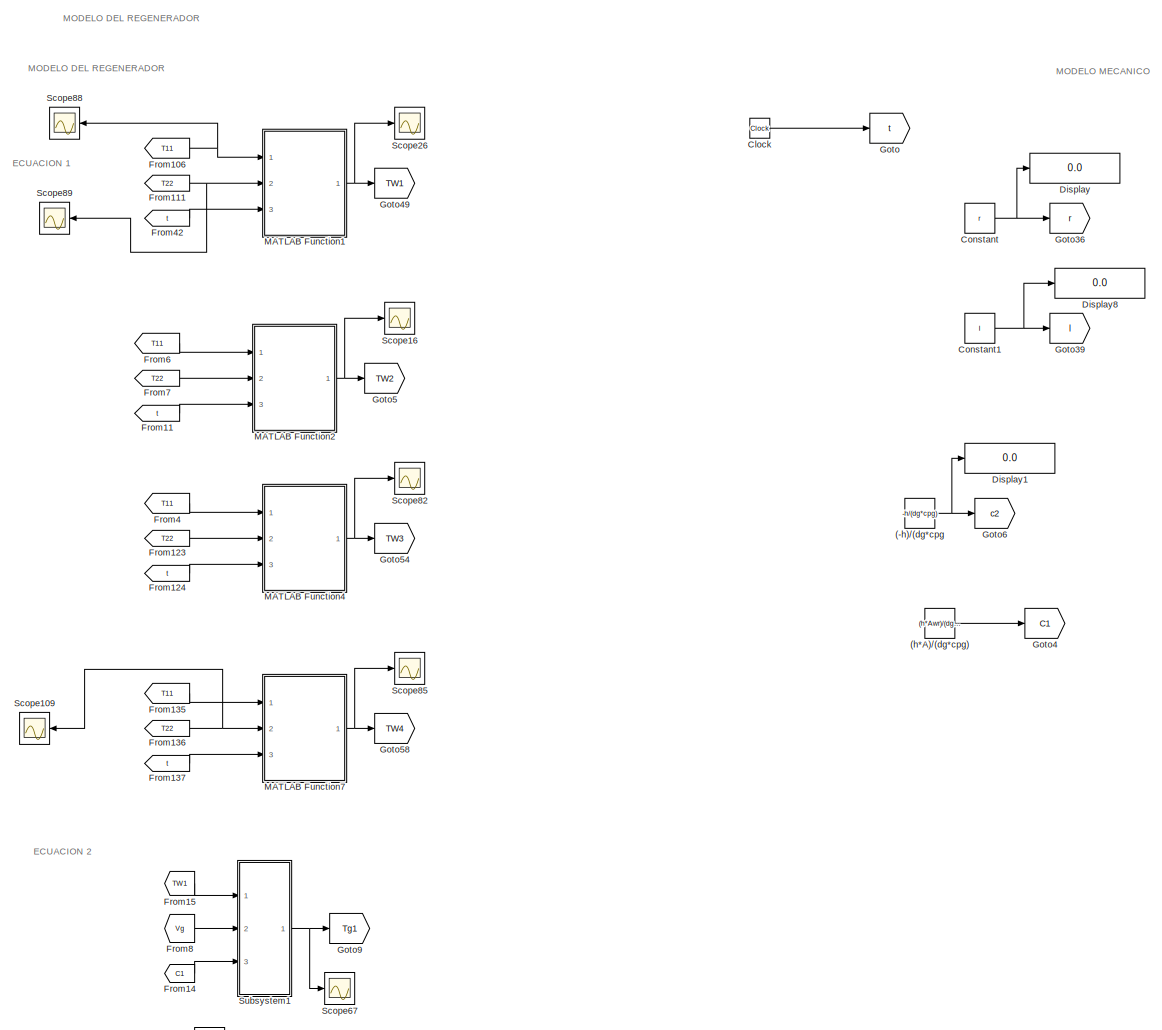
[diagram: root canvas - part 1/18, top left region]
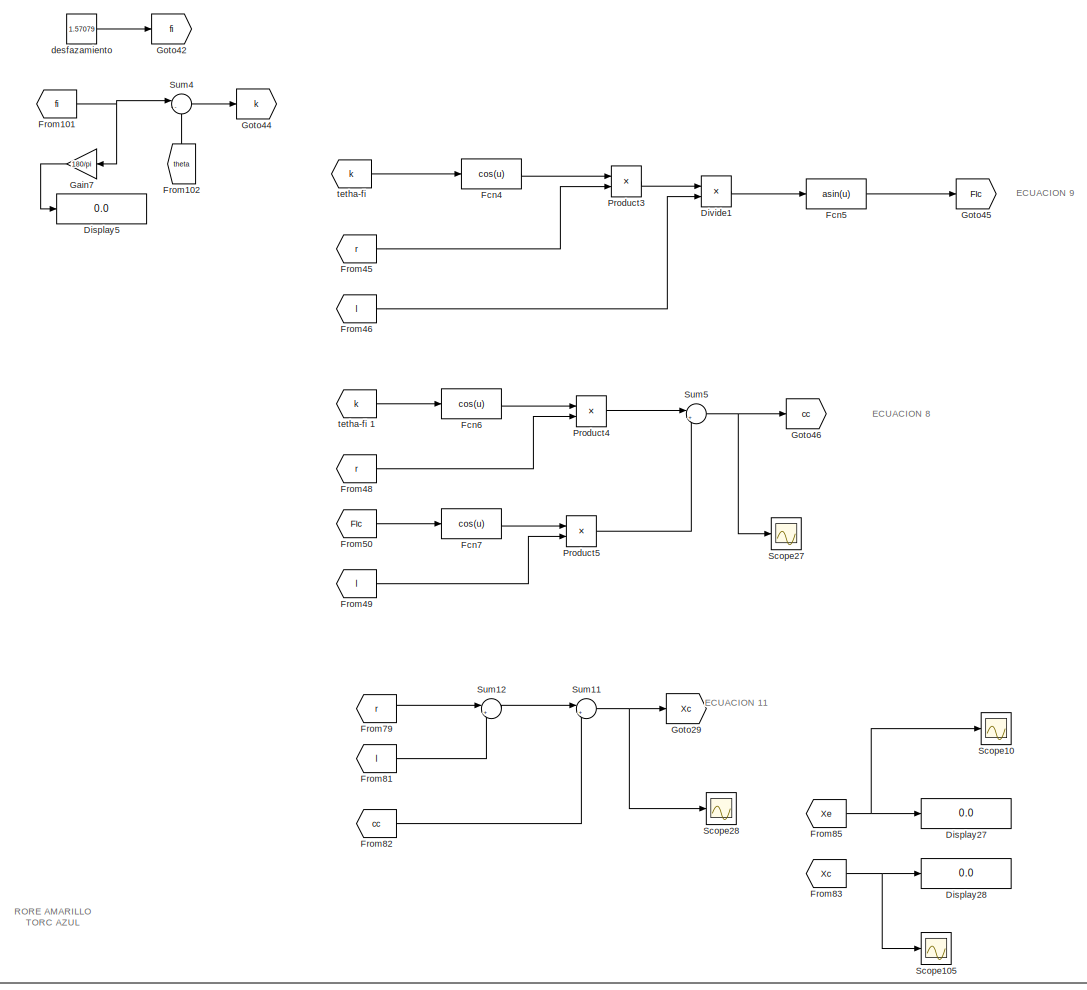
[diagram: root canvas - part 2/18, top center region]
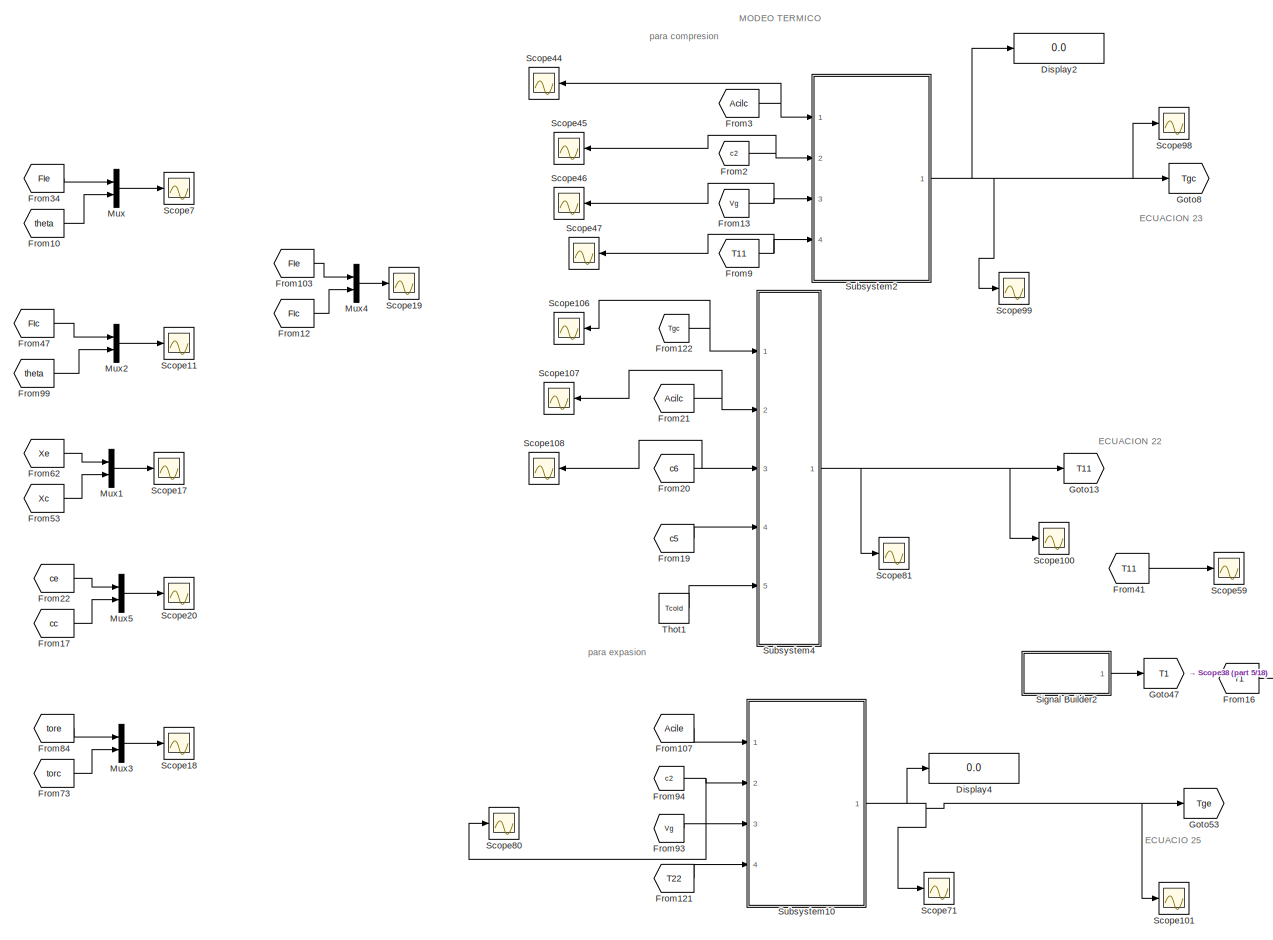
[diagram: root canvas - part 3/18, top center region]
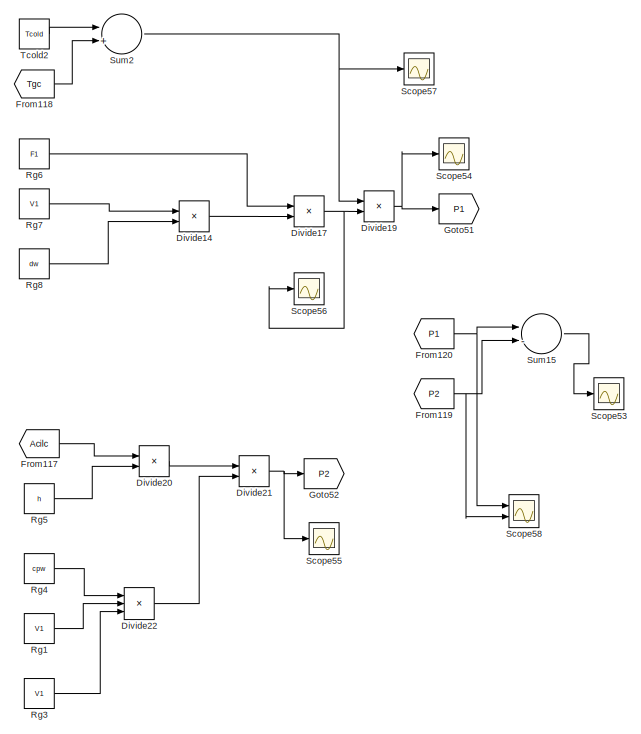
[diagram: root canvas - part 4/18, top right region]
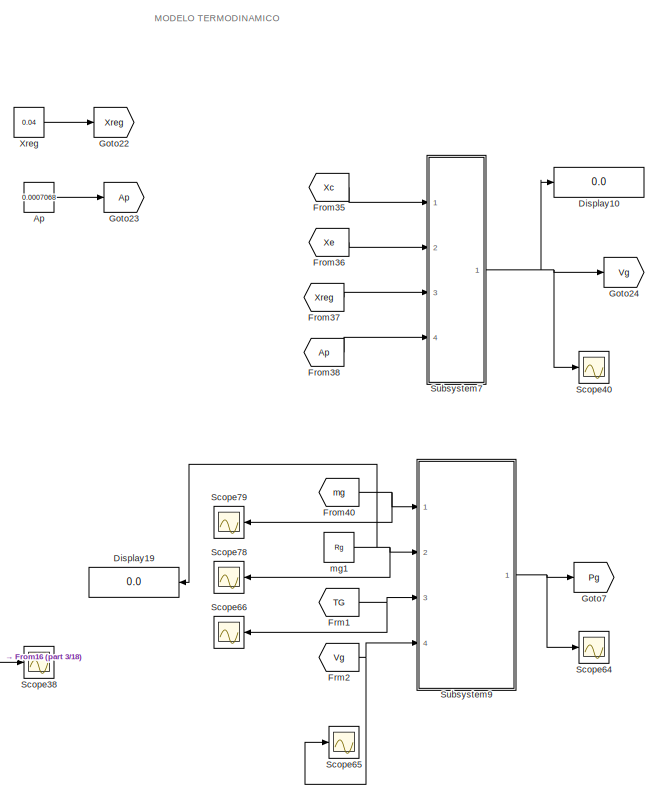
[diagram: root canvas - part 5/18, top right region]
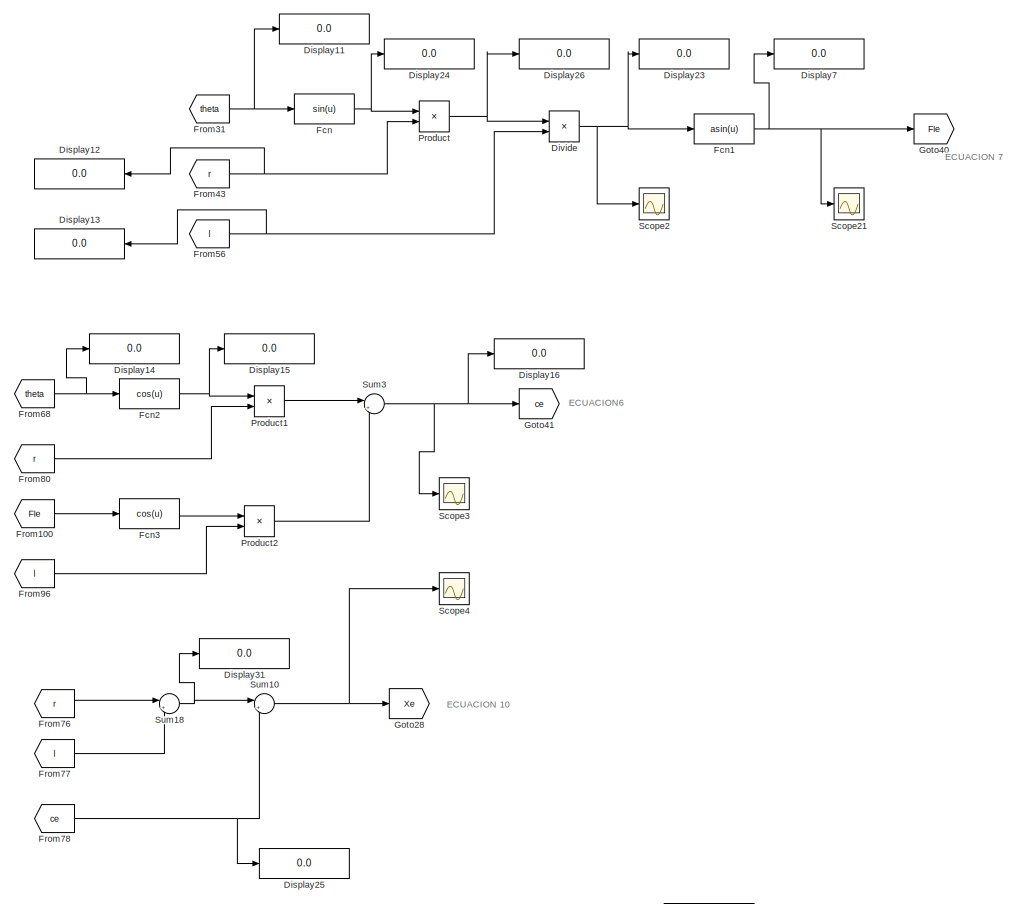
[diagram: root canvas - part 6/18, top left region]
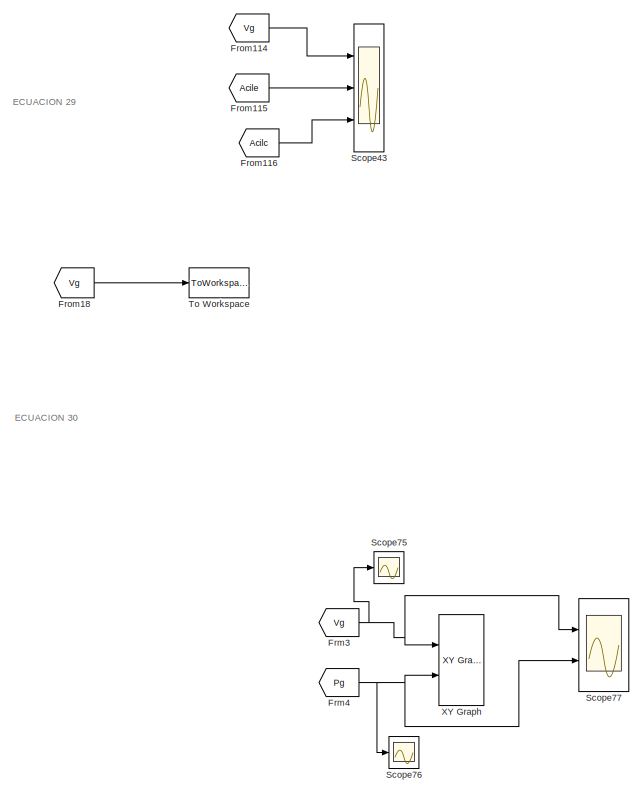
[diagram: root canvas - part 7/18, top right region]
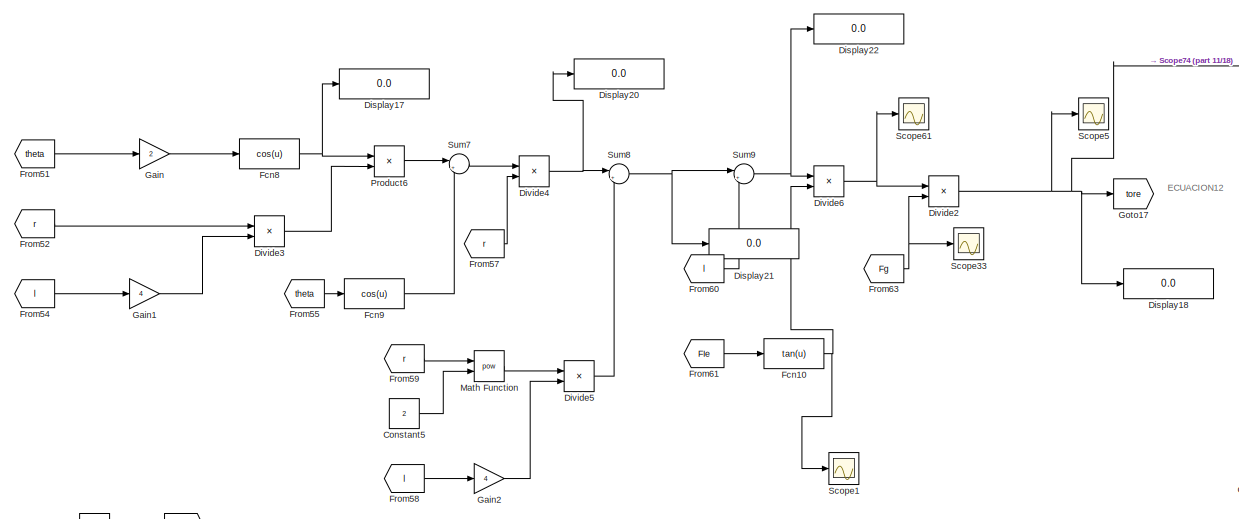
[diagram: root canvas - part 8/18, middle left region]
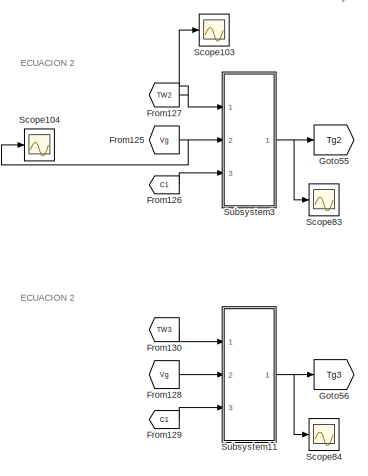
[diagram: root canvas - part 9/18, middle left region]
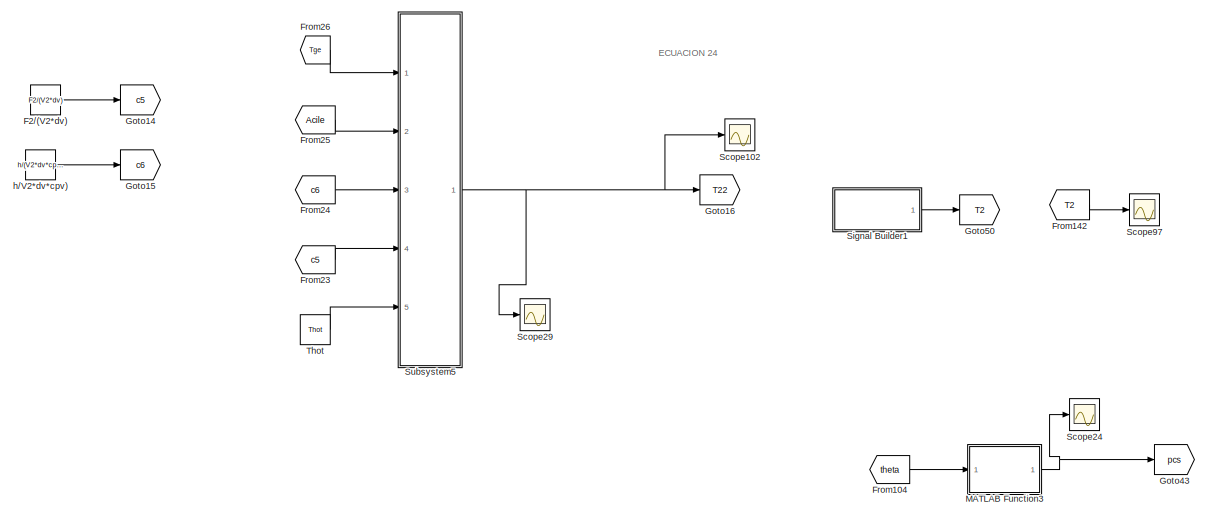
[diagram: root canvas - part 10/18, central region]
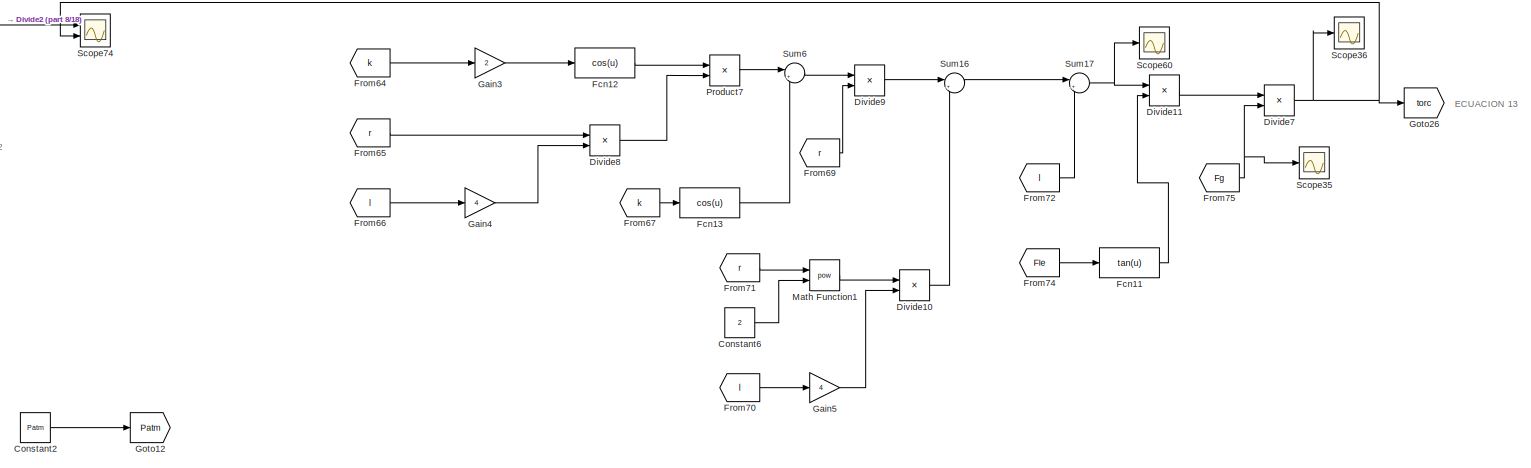
[diagram: root canvas - part 11/18, central region]
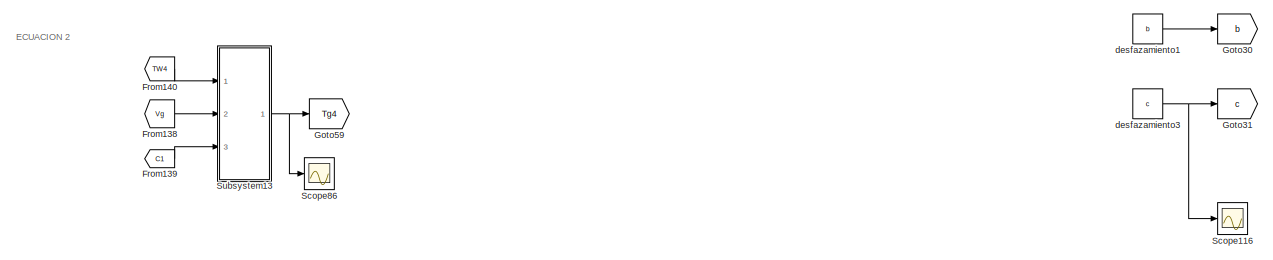
[diagram: root canvas - part 12/18, middle left region]
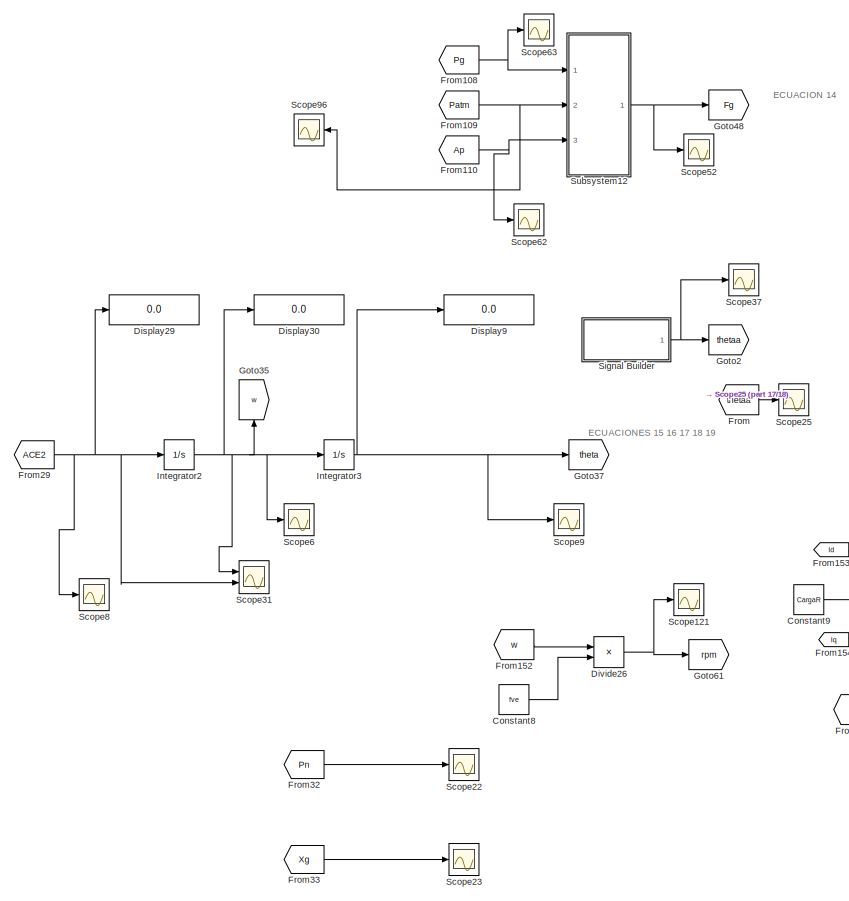
[diagram: root canvas - part 13/18, central region]
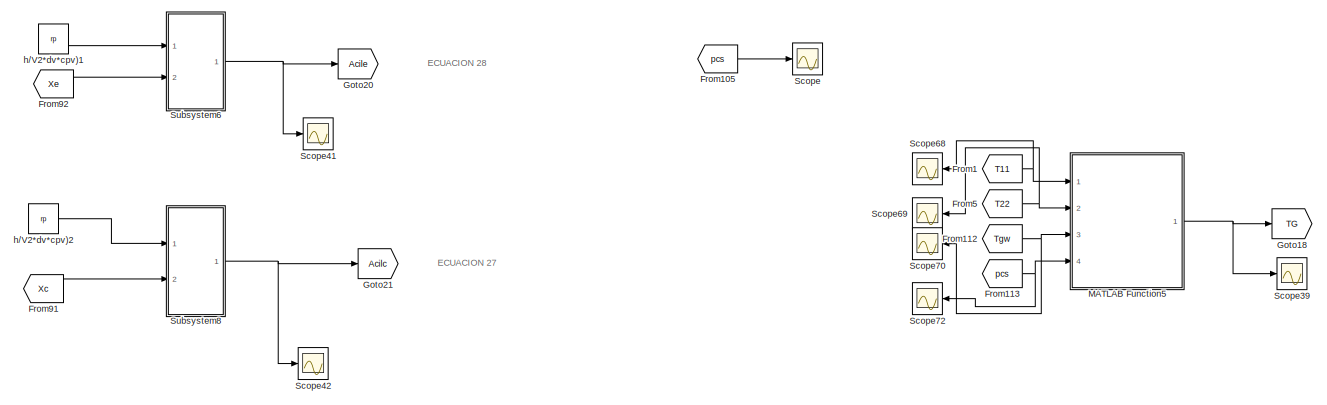
[diagram: root canvas - part 14/18, middle right region]
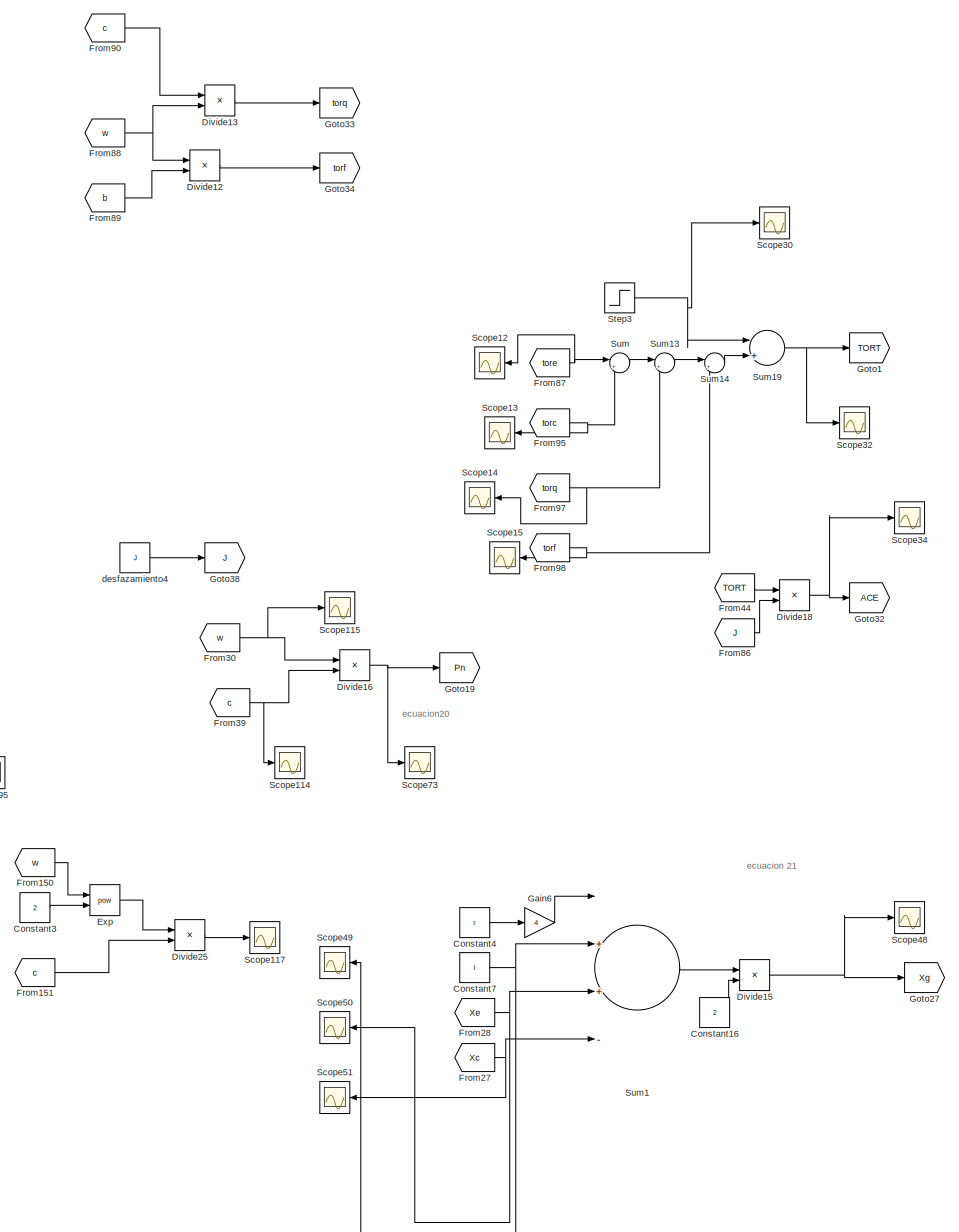
[diagram: root canvas - part 15/18, bottom left region]
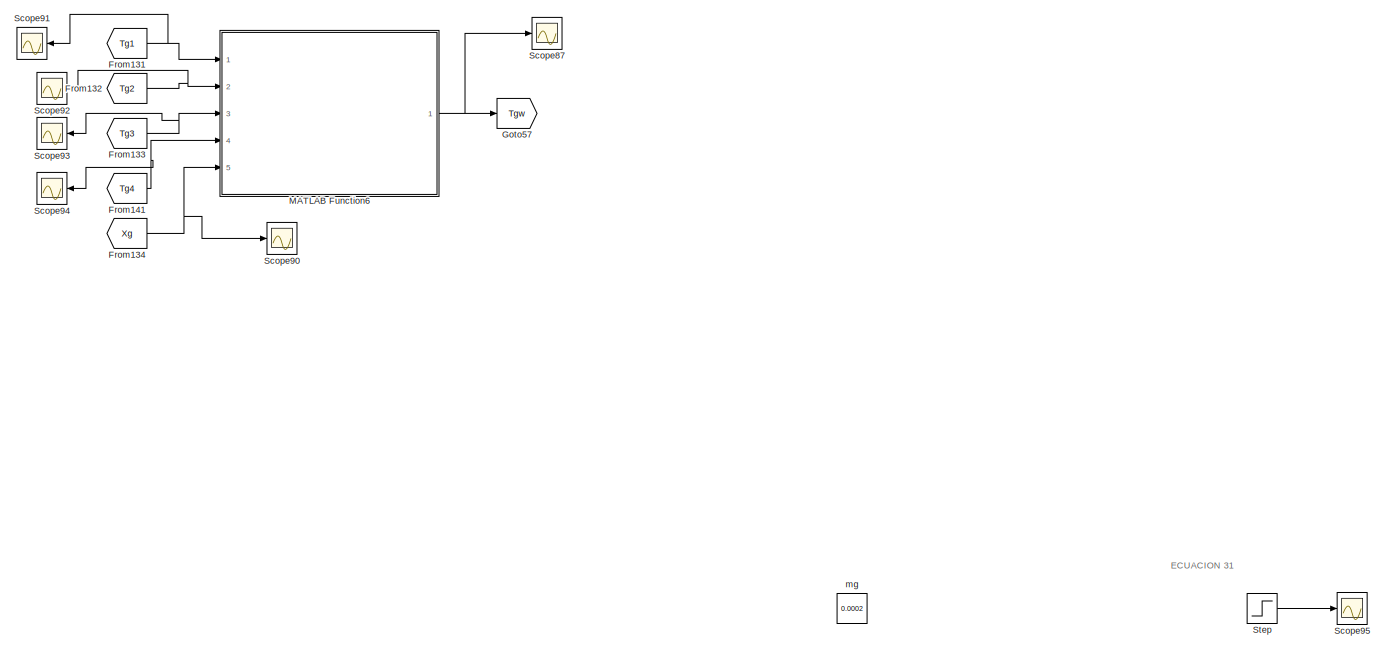
[diagram: root canvas - part 16/18, bottom left region]
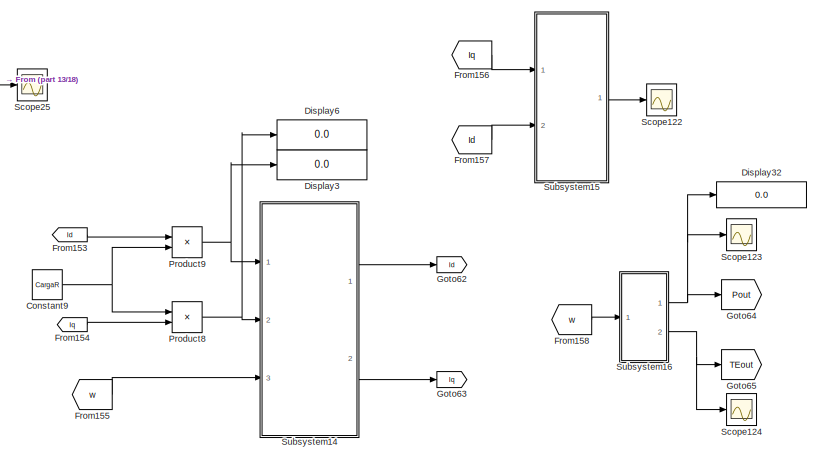
[diagram: root canvas - part 17/18, bottom center region]
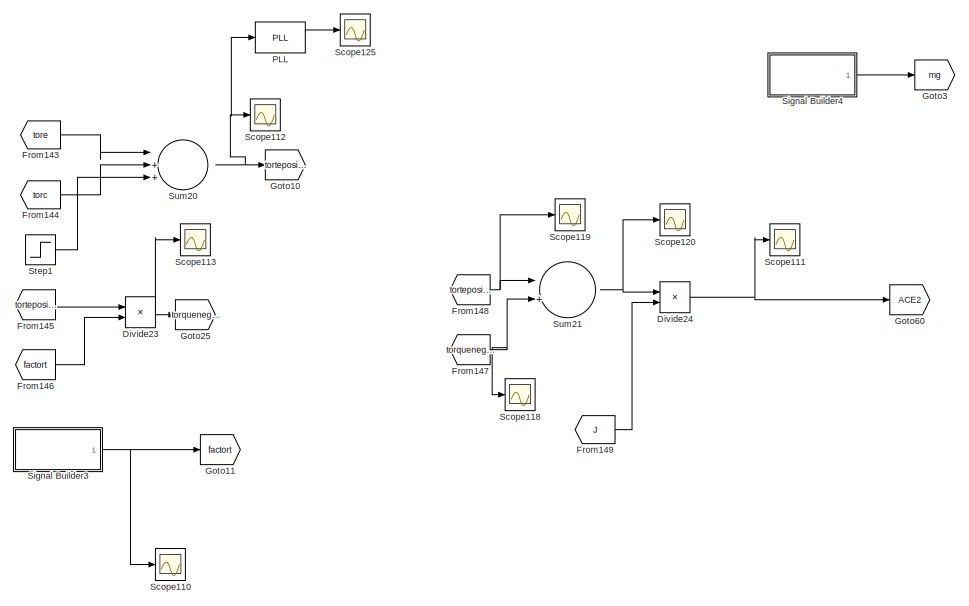
[diagram: root canvas - part 18/18, bottom left region]
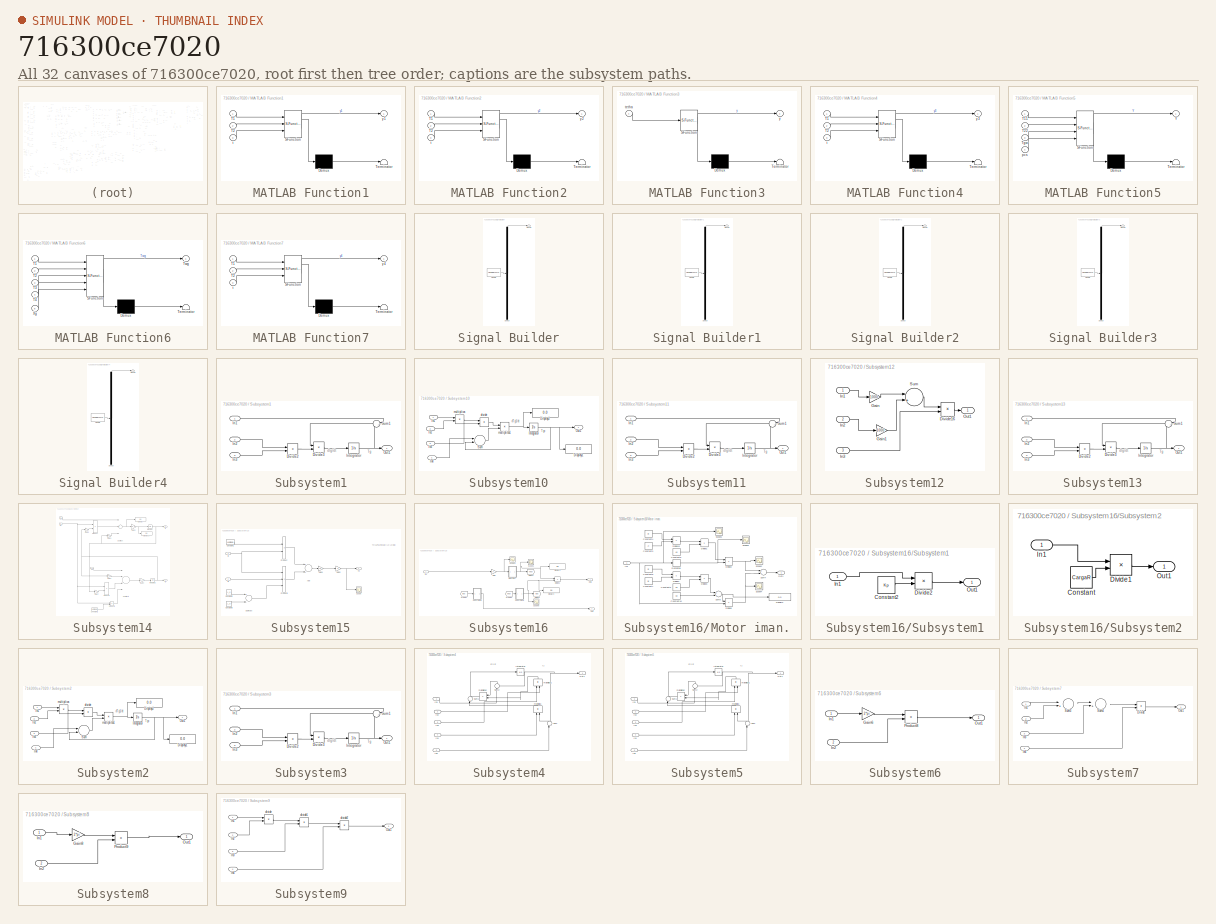
[diagram: thumbnail index - all 32 canvases of the model, root first then tree order]
MODEL slx_716300ce7020
KIND model
CONFIG AbsTol = auto
CONFIG EnableMultiTasking = off
CONFIG FixedStep = auto
CONFIG MaxStep = auto
CONFIG MinStep = auto
CONFIG RelTol = 1e-3
CONFIG SampleTimeConstraint = Unconstrained
CONFIG Solver = VariableStepAuto
CONFIG SolverName = VariableStepAuto
CONFIG StartTime = 0.0
CONFIG StopTime = 200
BLOCK [Constant] (-h)//(dg*cpg
  Value = -h/(dg*cpg)
BLOCK [Constant] (h*A)//(dg*cpg)
  Value = (h*Awr)/(dg*cpg)
BLOCK [Constant] Ap
  Value = 0.0007068
BLOCK [Clock] Clock
BLOCK [Constant] Constant
  Value = r
BLOCK [Constant] Constant1
  Value = l
BLOCK [Constant] Constant16
  Value = 2
BLOCK [Constant] Constant2
  Value = Patm
BLOCK [Constant] Constant3
  Value = 2
BLOCK [Constant] Constant4
  Value = r
BLOCK [Constant] Constant5
  Value = 2
BLOCK [Constant] Constant6
  Value = 2
BLOCK [Constant] Constant7
  Value = l
BLOCK [Constant] Constant8
  Value = fve
BLOCK [Constant] Constant9
  Value = CargaR
BLOCK [Display] Display
  Decimation = 1
  Ports = [1]
BLOCK [Display] Display1
  Decimation = 1
  Ports = [1]
BLOCK [Display] Display10
  Decimation = 1
  Ports = [1]
BLOCK [Display] Display11
  Decimation = 1
  Ports = [1]
BLOCK [Display] Display12
  Decimation = 1
  Ports = [1]
BLOCK [Display] Display13
  Decimation = 1
  Ports = [1]
BLOCK [Display] Display14
  Decimation = 1
  Ports = [1]
BLOCK [Display] Display15
  Decimation = 1
  Ports = [1]
BLOCK [Display] Display16
  Decimation = 1
  Ports = [1]
BLOCK [Display] Display17
  Decimation = 1
  Ports = [1]
BLOCK [Display] Display18
  Decimation = 1
  Ports = [1]
BLOCK [Display] Display19
  Decimation = 1
  Ports = [1]
BLOCK [Display] Display2
  Decimation = 1
  Ports = [1]
BLOCK [Display] Display20
  Decimation = 1
  Ports = [1]
BLOCK [Display] Display21
  Decimation = 1
  Ports = [1]
BLOCK [Display] Display22
  Decimation = 1
  Ports = [1]
BLOCK [Display] Display23
  Decimation = 1
  Ports = [1]
BLOCK [Display] Display24
  Decimation = 1
  Ports = [1]
BLOCK [Display] Display25
  Decimation = 1
  Ports = [1]
BLOCK [Display] Display26
  Decimation = 1
  Ports = [1]
BLOCK [Display] Display27
  Decimation = 1
  Ports = [1]
BLOCK [Display] Display28
  Decimation = 1
  Ports = [1]
BLOCK [Display] Display29
  Decimation = 1
  Ports = [1]
BLOCK [Display] Display3
  Decimation = 1
  Ports = [1]
BLOCK [Display] Display30
  Decimation = 1
  Ports = [1]
BLOCK [Display] Display31
  Decimation = 1
  Ports = [1]
BLOCK [Display] Display32
  Decimation = 1
  Ports = [1]
BLOCK [Display] Display4
  Decimation = 1
  Ports = [1]
BLOCK [Display] Display5
  Decimation = 1
  Ports = [1]
BLOCK [Display] Display6
  Decimation = 1
  Ports = [1]
BLOCK [Display] Display7
  Decimation = 1
  Ports = [1]
BLOCK [Display] Display8
  Decimation = 1
  Ports = [1]
BLOCK [Display] Display9
  Decimation = 1
  Ports = [1]
BLOCK [Product] Divide
  InputSameDT = off
  Inputs = */
  OutDataTypeStr = Inherit: Inherit via internal rule
  Ports = [2, 1]
  RndMeth = Floor
  SaturateOnIntegerOverflow = off
BLOCK [Product] Divide1
  InputSameDT = off
  Inputs = */
  OutDataTypeStr = Inherit: Inherit via internal rule
  Ports = [2, 1]
  RndMeth = Floor
  SaturateOnIntegerOverflow = off
BLOCK [Product] Divide10
  InputSameDT = off
  Inputs = */
  OutDataTypeStr = Inherit: Inherit via internal rule
  Ports = [2, 1]
  RndMeth = Floor
  SaturateOnIntegerOverflow = off
BLOCK [Product] Divide11
  InputSameDT = off
  Inputs = **
  OutDataTypeStr = Inherit: Inherit via internal rule
  Ports = [2, 1]
  RndMeth = Floor
  SaturateOnIntegerOverflow = off
BLOCK [Product] Divide12
  InputSameDT = off
  Inputs = **
  OutDataTypeStr = Inherit: Inherit via internal rule
  Ports = [2, 1]
  RndMeth = Floor
  SaturateOnIntegerOverflow = off
BLOCK [Product] Divide13
  InputSameDT = off
  Inputs = **
  OutDataTypeStr = Inherit: Inherit via internal rule
  Ports = [2, 1]
  RndMeth = Floor
  SaturateOnIntegerOverflow = off
BLOCK [Product] Divide14
  InputSameDT = off
  Inputs = **
  OutDataTypeStr = Inherit: Inherit via internal rule
  Ports = [2, 1]
  RndMeth = Floor
  SaturateOnIntegerOverflow = off
BLOCK [Product] Divide15
  InputSameDT = off
  Inputs = */
  OutDataTypeStr = Inherit: Inherit via internal rule
  Ports = [2, 1]
  RndMeth = Floor
  SaturateOnIntegerOverflow = off
BLOCK [Product] Divide16
  InputSameDT = off
  Inputs = **
  OutDataTypeStr = Inherit: Inherit via internal rule
  Ports = [2, 1]
  RndMeth = Floor
  SaturateOnIntegerOverflow = off
BLOCK [Product] Divide17
  InputSameDT = off
  Inputs = */
  OutDataTypeStr = Inherit: Inherit via internal rule
  Ports = [2, 1]
  RndMeth = Floor
  SaturateOnIntegerOverflow = off
BLOCK [Product] Divide18
  InputSameDT = off
  Inputs = */
  OutDataTypeStr = Inherit: Inherit via internal rule
  Ports = [2, 1]
  RndMeth = Floor
  SaturateOnIntegerOverflow = off
BLOCK [Product] Divide19
  InputSameDT = off
  Inputs = **
  OutDataTypeStr = Inherit: Inherit via internal rule
  Ports = [2, 1]
  RndMeth = Floor
  SaturateOnIntegerOverflow = off
BLOCK [Product] Divide2
  InputSameDT = off
  Inputs = **
  OutDataTypeStr = Inherit: Inherit via internal rule
  Ports = [2, 1]
  RndMeth = Floor
  SaturateOnIntegerOverflow = off
BLOCK [Product] Divide20
  InputSameDT = off
  Inputs = **
  OutDataTypeStr = Inherit: Inherit via internal rule
  Ports = [2, 1]
  RndMeth = Floor
  SaturateOnIntegerOverflow = off
BLOCK [Product] Divide21
  InputSameDT = off
  Inputs = */
  OutDataTypeStr = Inherit: Inherit via internal rule
  Ports = [2, 1]
  RndMeth = Floor
  SaturateOnIntegerOverflow = off
BLOCK [Product] Divide22
  InputSameDT = off
  Inputs = ***
  OutDataTypeStr = Inherit: Inherit via internal rule
  Ports = [3, 1]
  RndMeth = Floor
  SaturateOnIntegerOverflow = off
BLOCK [Product] Divide23
  InputSameDT = off
  Inputs = **
  OutDataTypeStr = Inherit: Inherit via internal rule
  Ports = [2, 1]
  RndMeth = Floor
  SaturateOnIntegerOverflow = off
BLOCK [Product] Divide24
  InputSameDT = off
  Inputs = */
  OutDataTypeStr = Inherit: Inherit via internal rule
  Ports = [2, 1]
  RndMeth = Floor
  SaturateOnIntegerOverflow = off
BLOCK [Product] Divide25
  InputSameDT = off
  Inputs = **
  OutDataTypeStr = Inherit: Inherit via internal rule
  Ports = [2, 1]
  RndMeth = Floor
  SaturateOnIntegerOverflow = off
BLOCK [Product] Divide26
  InputSameDT = off
  Inputs = **
  OutDataTypeStr = Inherit: Inherit via internal rule
  Ports = [2, 1]
  RndMeth = Floor
  SaturateOnIntegerOverflow = off
BLOCK [Product] Divide3
  InputSameDT = off
  Inputs = */
  OutDataTypeStr = Inherit: Inherit via internal rule
  Ports = [2, 1]
  RndMeth = Floor
  SaturateOnIntegerOverflow = off
BLOCK [Product] Divide4
  InputSameDT = off
  Inputs = **
  OutDataTypeStr = Inherit: Inherit via internal rule
  Ports = [2, 1]
  RndMeth = Floor
  SaturateOnIntegerOverflow = off
BLOCK [Product] Divide5
  InputSameDT = off
  Inputs = */
  OutDataTypeStr = Inherit: Inherit via internal rule
  Ports = [2, 1]
  RndMeth = Floor
  SaturateOnIntegerOverflow = off
BLOCK [Product] Divide6
  InputSameDT = off
  Inputs = **
  OutDataTypeStr = Inherit: Inherit via internal rule
  Ports = [2, 1]
  RndMeth = Floor
  SaturateOnIntegerOverflow = off
BLOCK [Product] Divide7
  InputSameDT = off
  Inputs = **
  OutDataTypeStr = Inherit: Inherit via internal rule
  Ports = [2, 1]
  RndMeth = Floor
  SaturateOnIntegerOverflow = off
BLOCK [Product] Divide8
  InputSameDT = off
  Inputs = */
  OutDataTypeStr = Inherit: Inherit via internal rule
  Ports = [2, 1]
  RndMeth = Floor
  SaturateOnIntegerOverflow = off
BLOCK [Product] Divide9
  InputSameDT = off
  Inputs = **
  OutDataTypeStr = Inherit: Inherit via internal rule
  Ports = [2, 1]
  RndMeth = Floor
  SaturateOnIntegerOverflow = off
BLOCK [Math] Exp
  Operator = pow
  Ports = [2, 1]
BLOCK [Constant] F2//(V2*dv)
  Value = F2/(V2*dv)
BLOCK [Fcn] Fcn
  Expr = sin(u)
BLOCK [Fcn] Fcn1
  Expr = asin(u)
BLOCK [Fcn] Fcn10
  Expr = tan(u)
BLOCK [Fcn] Fcn11
  Expr = tan(u)
BLOCK [Fcn] Fcn12
  Expr = cos(u)
BLOCK [Fcn] Fcn13
  Expr = cos(u)
BLOCK [Fcn] Fcn2
  Expr = cos(u)
BLOCK [Fcn] Fcn3
  Expr = cos(u)
BLOCK [Fcn] Fcn4
  Expr = cos(u)
BLOCK [Fcn] Fcn5
  Expr = asin(u)
BLOCK [Fcn] Fcn6
  Expr = cos(u)
BLOCK [Fcn] Fcn7
  Expr = cos(u)
BLOCK [Fcn] Fcn8
  Expr = cos(u)
BLOCK [Fcn] Fcn9
  Expr = cos(u)
BLOCK [From] Frm1
  GotoTag = TG
BLOCK [From] Frm2
  GotoTag = Vg
BLOCK [From] Frm3
  GotoTag = Vg
BLOCK [From] Frm4
  GotoTag = Pg
BLOCK [From] From
  GotoTag = thetaa
BLOCK [From] From1
  GotoTag = T11
BLOCK [From] From10
  GotoTag = theta
BLOCK [From] From100
  GotoTag = FIe
BLOCK [From] From101
  GotoTag = fi
BLOCK [From] From102
  GotoTag = theta
BLOCK [From] From103
  GotoTag = FIe
BLOCK [From] From104
  GotoTag = theta
BLOCK [From] From105
  GotoTag = pcs
BLOCK [From] From106
  GotoTag = T11
BLOCK [From] From107
  GotoTag = Acile
BLOCK [From] From108
  GotoTag = Pg
BLOCK [From] From109
  GotoTag = Patm
BLOCK [From] From11
  GotoTag = t
BLOCK [From] From110
  GotoTag = Ap
BLOCK [From] From111
  Commented = on
  GotoTag = T22
BLOCK [From] From112
  GotoTag = Tgw
BLOCK [From] From113
  GotoTag = pcs
BLOCK [From] From114
  GotoTag = Vg
BLOCK [From] From115
  GotoTag = Acile
BLOCK [From] From116
  GotoTag = Acilc
BLOCK [From] From117
  GotoTag = Acilc
BLOCK [From] From118
  GotoTag = Tgc
BLOCK [From] From119
  GotoTag = P2
BLOCK [From] From12
  GotoTag = FIc
BLOCK [From] From120
  GotoTag = P1
BLOCK [From] From121
  GotoTag = T22
BLOCK [From] From122
  GotoTag = Tgc
BLOCK [From] From123
  GotoTag = T22
BLOCK [From] From124
  GotoTag = t
BLOCK [From] From125
  GotoTag = Vg
BLOCK [From] From126
  GotoTag = C1
BLOCK [From] From127
  GotoTag = TW2
BLOCK [From] From128
  GotoTag = Vg
BLOCK [From] From129
  GotoTag = C1
BLOCK [From] From13
  GotoTag = Vg
BLOCK [From] From130
  GotoTag = TW3
BLOCK [From] From131
  GotoTag = Tg1
BLOCK [From] From132
  GotoTag = Tg2
BLOCK [From] From133
  GotoTag = Tg3
BLOCK [From] From134
  GotoTag = Xg
BLOCK [From] From135
  GotoTag = T11
BLOCK [From] From136
  GotoTag = T22
BLOCK [From] From137
  GotoTag = t
BLOCK [From] From138
  GotoTag = Vg
BLOCK [From] From139
  GotoTag = C1
BLOCK [From] From14
  GotoTag = C1
BLOCK [From] From140
  GotoTag = TW4
BLOCK [From] From141
  GotoTag = Tg4
BLOCK [From] From142
  GotoTag = T2
BLOCK [From] From143
  GotoTag = tore
BLOCK [From] From144
  GotoTag = torc
BLOCK [From] From145
  GotoTag = tortepositivo
BLOCK [From] From146
  GotoTag = factort
BLOCK [From] From147
  GotoTag = torquenegativo
BLOCK [From] From148
  GotoTag = tortepositivo
BLOCK [From] From149
  GotoTag = J
BLOCK [From] From15
  GotoTag = TW1
BLOCK [From] From150
  GotoTag = w
BLOCK [From] From151
  GotoTag = c
BLOCK [From] From152
  GotoTag = w
BLOCK [From] From153
  GotoTag = Id
  TagVisibility = global
BLOCK [From] From154
  GotoTag = Iq
  TagVisibility = global
BLOCK [From] From155
  GotoTag = w
BLOCK [From] From156
  GotoTag = Iq
  TagVisibility = global
BLOCK [From] From157
  GotoTag = Id
  TagVisibility = global
BLOCK [From] From158
  GotoTag = w
BLOCK [From] From16
  GotoTag = T1
BLOCK [From] From17
  GotoTag = cc
BLOCK [From] From18
  GotoTag = Vg
BLOCK [From] From19
  GotoTag = c5
BLOCK [From] From2
  GotoTag = c2
BLOCK [From] From20
  GotoTag = c6
BLOCK [From] From21
  GotoTag = Acilc
BLOCK [From] From22
  GotoTag = ce
BLOCK [From] From23
  GotoTag = c5
BLOCK [From] From24
  GotoTag = c6
BLOCK [From] From25
  GotoTag = Acile
BLOCK [From] From26
  GotoTag = Tge
BLOCK [From] From27
  GotoTag = Xc
BLOCK [From] From28
  GotoTag = Xe
BLOCK [From] From29
  GotoTag = ACE2
BLOCK [From] From3
  GotoTag = Acilc
BLOCK [From] From30
  GotoTag = w
BLOCK [From] From31
  GotoTag = theta
BLOCK [From] From32
  GotoTag = Pn
BLOCK [From] From33
  GotoTag = Xg
BLOCK [From] From34
  GotoTag = FIe
BLOCK [From] From35
  GotoTag = Xc
BLOCK [From] From36
  GotoTag = Xe
BLOCK [From] From37
  GotoTag = Xreg
BLOCK [From] From38
  GotoTag = Ap
BLOCK [From] From39
  GotoTag = c
BLOCK [From] From4
  GotoTag = T11
BLOCK [From] From40
  GotoTag = mg
BLOCK [From] From41
  GotoTag = T11
BLOCK [From] From42
  GotoTag = t
BLOCK [From] From43
  GotoTag = r
BLOCK [From] From44
  GotoTag = TORT
BLOCK [From] From45
  GotoTag = r
BLOCK [From] From46
  GotoTag = l
BLOCK [From] From47
  GotoTag = FIc
BLOCK [From] From48
  GotoTag = r
BLOCK [From] From49
  GotoTag = l
BLOCK [From] From5
  GotoTag = T22
BLOCK [From] From50
  GotoTag = FIc
BLOCK [From] From51
  GotoTag = theta
BLOCK [From] From52
  GotoTag = r
BLOCK [From] From53
  GotoTag = Xc
BLOCK [From] From54
  GotoTag = l
BLOCK [From] From55
  GotoTag = theta
BLOCK [From] From56
  GotoTag = l
BLOCK [From] From57
  GotoTag = r
BLOCK [From] From58
  GotoTag = l
BLOCK [From] From59
  GotoTag = r
BLOCK [From] From6
  GotoTag = T11
BLOCK [From] From60
  GotoTag = l
BLOCK [From] From61
  GotoTag = FIe
BLOCK [From] From62
  GotoTag = Xe
BLOCK [From] From63
  GotoTag = Fg
BLOCK [From] From64
  GotoTag = k
BLOCK [From] From65
  GotoTag = r
BLOCK [From] From66
  GotoTag = l
BLOCK [From] From67
  GotoTag = k
BLOCK [From] From68
  GotoTag = theta
BLOCK [From] From69
  GotoTag = r
BLOCK [From] From7
  GotoTag = T22
BLOCK [From] From70
  GotoTag = l
BLOCK [From] From71
  GotoTag = r
BLOCK [From] From72
  GotoTag = l
BLOCK [From] From73
  GotoTag = torc
BLOCK [From] From74
  GotoTag = FIe
BLOCK [From] From75
  GotoTag = Fg
BLOCK [From] From76
  GotoTag = r
BLOCK [From] From77
  GotoTag = l
BLOCK [From] From78
  GotoTag = ce
BLOCK [From] From79
  GotoTag = r
BLOCK [From] From8
  GotoTag = Vg
BLOCK [From] From80
  GotoTag = r
BLOCK [From] From81
  GotoTag = l
BLOCK [From] From82
  GotoTag = cc
BLOCK [From] From83
  GotoTag = Xc
BLOCK [From] From84
  GotoTag = tore
BLOCK [From] From85
  GotoTag = Xe
BLOCK [From] From86
  GotoTag = J
BLOCK [From] From87
  GotoTag = tore
BLOCK [From] From88
  GotoTag = w
BLOCK [From] From89
  GotoTag = b
BLOCK [From] From9
  GotoTag = T11
BLOCK [From] From90
  GotoTag = c
BLOCK [From] From91
  GotoTag = Xc
BLOCK [From] From92
  GotoTag = Xe
BLOCK [From] From93
  GotoTag = Vg
BLOCK [From] From94
  GotoTag = c2
BLOCK [From] From95
  GotoTag = torc
BLOCK [From] From96
  GotoTag = l
BLOCK [From] From97
  GotoTag = torq
BLOCK [From] From98
  GotoTag = torf
BLOCK [From] From99
  GotoTag = theta
BLOCK [Gain] Gain
  Gain = 2
  OutDataTypeStr = Inherit: Inherit via internal rule
  ParamDataTypeStr = Inherit: Inherit via internal rule
  SaturateOnIntegerOverflow = off
BLOCK [Gain] Gain1
  Gain = 4
  OutDataTypeStr = Inherit: Inherit via internal rule
  ParamDataTypeStr = Inherit: Inherit via internal rule
  SaturateOnIntegerOverflow = off
BLOCK [Gain] Gain2
  Gain = 4
  OutDataTypeStr = Inherit: Inherit via internal rule
  ParamDataTypeStr = Inherit: Inherit via internal rule
  SaturateOnIntegerOverflow = off
BLOCK [Gain] Gain3
  Gain = 2
  OutDataTypeStr = Inherit: Inherit via internal rule
  ParamDataTypeStr = Inherit: Inherit via internal rule
  SaturateOnIntegerOverflow = off
BLOCK [Gain] Gain4
  Gain = 4
  OutDataTypeStr = Inherit: Inherit via internal rule
  ParamDataTypeStr = Inherit: Inherit via internal rule
  SaturateOnIntegerOverflow = off
BLOCK [Gain] Gain5
  Gain = 4
  OutDataTypeStr = Inherit: Inherit via internal rule
  ParamDataTypeStr = Inherit: Inherit via internal rule
  SaturateOnIntegerOverflow = off
BLOCK [Gain] Gain6
  Gain = 4
  OutDataTypeStr = Inherit: Inherit via internal rule
  ParamDataTypeStr = Inherit: Inherit via internal rule
  SaturateOnIntegerOverflow = off
BLOCK [Gain] Gain7
  Gain = 180/pi
  OutDataTypeStr = Inherit: Inherit via internal rule
  ParamDataTypeStr = Inherit: Inherit via internal rule
  SaturateOnIntegerOverflow = off
BLOCK [Goto] Goto
  GotoTag = t
BLOCK [Goto] Goto1
  GotoTag = TORT
BLOCK [Goto] Goto10
  GotoTag = tortepositivo
BLOCK [Goto] Goto11
  GotoTag = factort
BLOCK [Goto] Goto12
  GotoTag = Patm
BLOCK [Goto] Goto13
  GotoTag = T11
BLOCK [Goto] Goto14
  GotoTag = c5
BLOCK [Goto] Goto15
  GotoTag = c6
BLOCK [Goto] Goto16
  GotoTag = T22
BLOCK [Goto] Goto17
  GotoTag = tore
BLOCK [Goto] Goto18
  GotoTag = TG
BLOCK [Goto] Goto19
  GotoTag = Pn
BLOCK [Goto] Goto2
  GotoTag = thetaa
BLOCK [Goto] Goto20
  GotoTag = Acile
BLOCK [Goto] Goto21
  GotoTag = Acilc
BLOCK [Goto] Goto22
  GotoTag = Xreg
BLOCK [Goto] Goto23
  GotoTag = Ap
BLOCK [Goto] Goto24
  GotoTag = Vg
BLOCK [Goto] Goto25
  GotoTag = torquenegativo
BLOCK [Goto] Goto26
  GotoTag = torc
BLOCK [Goto] Goto27
  GotoTag = Xg
BLOCK [Goto] Goto28
  GotoTag = Xe
BLOCK [Goto] Goto29
  GotoTag = Xc
BLOCK [Goto] Goto3
  GotoTag = mg
BLOCK [Goto] Goto30
  GotoTag = b
BLOCK [Goto] Goto31
  GotoTag = c
BLOCK [Goto] Goto32
  GotoTag = ACE
BLOCK [Goto] Goto33
  GotoTag = torq
BLOCK [Goto] Goto34
  GotoTag = torf
BLOCK [Goto] Goto35
  GotoTag = w
BLOCK [Goto] Goto36
  GotoTag = r
BLOCK [Goto] Goto37
  GotoTag = theta
BLOCK [Goto] Goto38
  GotoTag = J
BLOCK [Goto] Goto39
  GotoTag = l
BLOCK [Goto] Goto4
  GotoTag = C1
BLOCK [Goto] Goto40
  GotoTag = FIe
BLOCK [Goto] Goto41
  GotoTag = ce
BLOCK [Goto] Goto42
  GotoTag = fi
BLOCK [Goto] Goto43
  GotoTag = pcs
BLOCK [Goto] Goto44
  GotoTag = k
BLOCK [Goto] Goto45
  GotoTag = FIc
BLOCK [Goto] Goto46
  GotoTag = cc
BLOCK [Goto] Goto47
  GotoTag = T1
BLOCK [Goto] Goto48
  GotoTag = Fg
BLOCK [Goto] Goto49
  GotoTag = TW1
BLOCK [Goto] Goto5
  GotoTag = TW2
BLOCK [Goto] Goto50
  GotoTag = T2
BLOCK [Goto] Goto51
  GotoTag = P1
BLOCK [Goto] Goto52
  GotoTag = P2
BLOCK [Goto] Goto53
  GotoTag = Tge
BLOCK [Goto] Goto54
  GotoTag = TW3
BLOCK [Goto] Goto55
  GotoTag = Tg2
BLOCK [Goto] Goto56
  GotoTag = Tg3
BLOCK [Goto] Goto57
  GotoTag = Tgw
BLOCK [Goto] Goto58
  GotoTag = TW4
BLOCK [Goto] Goto59
  GotoTag = Tg4
BLOCK [Goto] Goto6
  GotoTag = c2
BLOCK [Goto] Goto60
  GotoTag = ACE2
BLOCK [Goto] Goto61
  GotoTag = rpm
BLOCK [Goto] Goto62
  GotoTag = Id
  TagVisibility = global
BLOCK [Goto] Goto63
  GotoTag = Iq
  TagVisibility = global
BLOCK [Goto] Goto64
  GotoTag = Pout
BLOCK [Goto] Goto65
  GotoTag = TEout
BLOCK [Goto] Goto7
  GotoTag = Pg
BLOCK [Goto] Goto8
  GotoTag = Tgc
BLOCK [Goto] Goto9
  GotoTag = Tg1
BLOCK [Integrator] Integrator2
  Ports = [1, 1]
BLOCK [Integrator] Integrator3
  Ports = [1, 1]
BLOCK [SubSystem] MATLAB Function1
  ErrorFcn = Stateflow.Translate.translate
  PermitHierarchicalResolution = ExplicitOnly
  Ports = [3, 1]
  RequestExecContextInheritance = off
  SFBlockType = MATLAB Function
  TreatAsAtomicUnit = on
  Variant = off
BLOCK [Demux] MATLAB Function1/ Demux 
  Outputs = 1
  Ports = [1, 1]
BLOCK [S-Function] MATLAB Function1/ SFunction 
  EnableBusSupport = on
  FunctionName = sf_sfun
  PortCounts = [3 2]
  Ports = [3, 2]
  SFcnIsStateOwnerBlock = off
  SFunctionDeploymentMode = off
  Tag = Stateflow S-Function modelo7 1
BLOCK [Terminator] MATLAB Function1/ Terminator 
BLOCK [Inport] MATLAB Function1/T1
  IconDisplay = Port number
BLOCK [Inport] MATLAB Function1/T2
  IconDisplay = Port number
  Port = 2
BLOCK [Inport] MATLAB Function1/t
  IconDisplay = Port number
  Port = 3
BLOCK [Outport] MATLAB Function1/y1
  IconDisplay = Port number
BLOCK [SubSystem] MATLAB Function2
  ErrorFcn = Stateflow.Translate.translate
  PermitHierarchicalResolution = ExplicitOnly
  Ports = [3, 1]
  RequestExecContextInheritance = off
  SFBlockType = MATLAB Function
  TreatAsAtomicUnit = on
  Variant = off
BLOCK [Demux] MATLAB Function2/ Demux 
  Outputs = 1
  Ports = [1, 1]
BLOCK [S-Function] MATLAB Function2/ SFunction 
  EnableBusSupport = on
  FunctionName = sf_sfun
  PortCounts = [3 2]
  Ports = [3, 2]
  SFcnIsStateOwnerBlock = off
  SFunctionDeploymentMode = off
  Tag = Stateflow S-Function modelo7 3
BLOCK [Terminator] MATLAB Function2/ Terminator 
BLOCK [Inport] MATLAB Function2/T1
  IconDisplay = Port number
BLOCK [Inport] MATLAB Function2/T2
  IconDisplay = Port number
  Port = 2
BLOCK [Inport] MATLAB Function2/t
  IconDisplay = Port number
  Port = 3
BLOCK [Outport] MATLAB Function2/y2
  IconDisplay = Port number
BLOCK [SubSystem] MATLAB Function3
  ErrorFcn = Stateflow.Translate.translate
  PermitHierarchicalResolution = ExplicitOnly
  Ports = [1, 1]
  RequestExecContextInheritance = off
  SFBlockType = MATLAB Function
  TreatAsAtomicUnit = on
  Variant = off
BLOCK [Demux] MATLAB Function3/ Demux 
  Outputs = 1
  Ports = [1, 1]
BLOCK [S-Function] MATLAB Function3/ SFunction 
  EnableBusSupport = on
  FunctionName = sf_sfun
  PortCounts = [1 2]
  Ports = [1, 2]
  SFcnIsStateOwnerBlock = off
  SFunctionDeploymentMode = off
  Tag = Stateflow S-Function modelo7 4
BLOCK [Terminator] MATLAB Function3/ Terminator 
BLOCK [Inport] MATLAB Function3/tetha
  IconDisplay = Port number
BLOCK [Outport] MATLAB Function3/y
  IconDisplay = Port number
BLOCK [SubSystem] MATLAB Function4
  ErrorFcn = Stateflow.Translate.translate
  PermitHierarchicalResolution = ExplicitOnly
  Ports = [3, 1]
  RequestExecContextInheritance = off
  SFBlockType = MATLAB Function
  TreatAsAtomicUnit = on
  Variant = off
BLOCK [Demux] MATLAB Function4/ Demux 
  Outputs = 1
  Ports = [1, 1]
BLOCK [S-Function] MATLAB Function4/ SFunction 
  EnableBusSupport = on
  FunctionName = sf_sfun
  PortCounts = [3 2]
  Ports = [3, 2]
  SFcnIsStateOwnerBlock = off
  SFunctionDeploymentMode = off
  Tag = Stateflow S-Function modelo7 5
BLOCK [Terminator] MATLAB Function4/ Terminator 
BLOCK [Inport] MATLAB Function4/T1
  IconDisplay = Port number
BLOCK [Inport] MATLAB Function4/T2
  IconDisplay = Port number
  Port = 2
BLOCK [Inport] MATLAB Function4/t
  IconDisplay = Port number
  Port = 3
BLOCK [Outport] MATLAB Function4/y3
  IconDisplay = Port number
BLOCK [SubSystem] MATLAB Function5
  ErrorFcn = Stateflow.Translate.translate
  PermitHierarchicalResolution = ExplicitOnly
  Ports = [4, 1]
  RequestExecContextInheritance = off
  SFBlockType = MATLAB Function
  TreatAsAtomicUnit = on
  Variant = off
BLOCK [Demux] MATLAB Function5/ Demux 
  Outputs = 1
  Ports = [1, 1]
BLOCK [S-Function] MATLAB Function5/ SFunction 
  EnableBusSupport = on
  FunctionName = sf_sfun
  PortCounts = [4 2]
  Ports = [4, 2]
  SFcnIsStateOwnerBlock = off
  SFunctionDeploymentMode = off
  Tag = Stateflow S-Function modelo7 2
BLOCK [Terminator] MATLAB Function5/ Terminator 
BLOCK [Inport] MATLAB Function5/T11
  IconDisplay = Port number
BLOCK [Inport] MATLAB Function5/T22
  IconDisplay = Port number
  Port = 2
BLOCK [Inport] MATLAB Function5/Tgw
  IconDisplay = Port number
  Port = 3
BLOCK [Outport] MATLAB Function5/Y
  IconDisplay = Port number
BLOCK [Inport] MATLAB Function5/pcs
  IconDisplay = Port number
  Port = 4
BLOCK [SubSystem] MATLAB Function6
  ErrorFcn = Stateflow.Translate.translate
  PermitHierarchicalResolution = ExplicitOnly
  Ports = [5, 1]
  RequestExecContextInheritance = off
  SFBlockType = MATLAB Function
  TreatAsAtomicUnit = on
  Variant = off
BLOCK [Demux] MATLAB Function6/ Demux 
  Outputs = 1
  Ports = [1, 1]
BLOCK [S-Function] MATLAB Function6/ SFunction 
  EnableBusSupport = on
  FunctionName = sf_sfun
  PortCounts = [5 2]
  Ports = [5, 2]
  SFcnIsStateOwnerBlock = off
  SFunctionDeploymentMode = off
  Tag = Stateflow S-Function modelo7 6
BLOCK [Terminator] MATLAB Function6/ Terminator 
BLOCK [Inport] MATLAB Function6/T1
  IconDisplay = Port number
BLOCK [Inport] MATLAB Function6/T2
  IconDisplay = Port number
  Port = 2
BLOCK [Inport] MATLAB Function6/T3
  IconDisplay = Port number
  Port = 3
BLOCK [Inport] MATLAB Function6/T4
  IconDisplay = Port number
  Port = 4
BLOCK [Outport] MATLAB Function6/Twg
  IconDisplay = Port number
BLOCK [Inport] MATLAB Function6/Xg
  IconDisplay = Port number
  Port = 5
BLOCK [SubSystem] MATLAB Function7
  ErrorFcn = Stateflow.Translate.translate
  PermitHierarchicalResolution = ExplicitOnly
  Ports = [3, 1]
  RequestExecContextInheritance = off
  SFBlockType = MATLAB Function
  TreatAsAtomicUnit = on
  Variant = off
BLOCK [Demux] MATLAB Function7/ Demux 
  Outputs = 1
  Ports = [1, 1]
BLOCK [S-Function] MATLAB Function7/ SFunction 
  EnableBusSupport = on
  FunctionName = sf_sfun
  PortCounts = [3 2]
  Ports = [3, 2]
  SFcnIsStateOwnerBlock = off
  SFunctionDeploymentMode = off
  Tag = Stateflow S-Function modelo7 7
BLOCK [Terminator] MATLAB Function7/ Terminator 
BLOCK [Inport] MATLAB Function7/T1
  IconDisplay = Port number
BLOCK [Inport] MATLAB Function7/T2
  IconDisplay = Port number
  Port = 2
BLOCK [Inport] MATLAB Function7/t
  IconDisplay = Port number
  Port = 3
BLOCK [Outport] MATLAB Function7/y4
  IconDisplay = Port number
BLOCK [Math] Math Function
  Operator = pow
  Ports = [2, 1]
BLOCK [Math] Math Function1
  Operator = pow
  Ports = [2, 1]
BLOCK [Mux] Mux
  DisplayOption = bar
  Inputs = 2
  Ports = [2, 1]
BLOCK [Mux] Mux1
  DisplayOption = bar
  Inputs = 2
  Ports = [2, 1]
BLOCK [Mux] Mux2
  DisplayOption = bar
  Inputs = 2
  Ports = [2, 1]
BLOCK [Mux] Mux3
  DisplayOption = bar
  Inputs = 2
  Ports = [2, 1]
BLOCK [Mux] Mux4
  DisplayOption = bar
  Inputs = 2
  Ports = [2, 1]
BLOCK [Mux] Mux5
  DisplayOption = bar
  Inputs = 2
  Ports = [2, 1]
BLOCK [Reference] PLL  REF=powerlib_meascontrol/PLL/PLL
  Ports = [1, 2]
  SourceBlock = powerlib_meascontrol/PLL/PLL
  SourceProductBaseCode = PS
  SourceProductName = Simscape Power Systems
  SourceType = PLL
BLOCK [Product] Product
  InputSameDT = off
  OutDataTypeStr = Inherit: Inherit via internal rule
  Ports = [2, 1]
  RndMeth = Floor
  SaturateOnIntegerOverflow = off
BLOCK [Product] Product1
  InputSameDT = off
  OutDataTypeStr = Inherit: Inherit via internal rule
  Ports = [2, 1]
  RndMeth = Floor
  SaturateOnIntegerOverflow = off
BLOCK [Product] Product2
  InputSameDT = off
  OutDataTypeStr = Inherit: Inherit via internal rule
  Ports = [2, 1]
  RndMeth = Floor
  SaturateOnIntegerOverflow = off
BLOCK [Product] Product3
  InputSameDT = off
  OutDataTypeStr = Inherit: Inherit via internal rule
  Ports = [2, 1]
  RndMeth = Floor
  SaturateOnIntegerOverflow = off
BLOCK [Product] Product4
  InputSameDT = off
  OutDataTypeStr = Inherit: Inherit via internal rule
  Ports = [2, 1]
  RndMeth = Floor
  SaturateOnIntegerOverflow = off
BLOCK [Product] Product5
  InputSameDT = off
  OutDataTypeStr = Inherit: Inherit via internal rule
  Ports = [2, 1]
  RndMeth = Floor
  SaturateOnIntegerOverflow = off
BLOCK [Product] Product6
  InputSameDT = off
  OutDataTypeStr = Inherit: Inherit via internal rule
  Ports = [2, 1]
  RndMeth = Floor
  SaturateOnIntegerOverflow = off
BLOCK [Product] Product7
  InputSameDT = off
  OutDataTypeStr = Inherit: Inherit via internal rule
  Ports = [2, 1]
  RndMeth = Floor
  SaturateOnIntegerOverflow = off
BLOCK [Product] Product8
  InputSameDT = off
  OutDataTypeStr = Inherit: Inherit via internal rule
  Ports = [2, 1]
  RndMeth = Floor
  SaturateOnIntegerOverflow = off
BLOCK [Product] Product9
  InputSameDT = off
  OutDataTypeStr = Inherit: Inherit via internal rule
  Ports = [2, 1]
  RndMeth = Floor
  SaturateOnIntegerOverflow = off
BLOCK [Constant] Rg1
  Value = V1
BLOCK [Constant] Rg3
  Value = V1
BLOCK [Constant] Rg4
  Value = cpw
BLOCK [Constant] Rg5
  Value = h
BLOCK [Constant] Rg6
  Value = F1
BLOCK [Constant] Rg7
  Value = V1
BLOCK [Constant] Rg8
  Value = dw
BLOCK [Scope] Scope
  NumInputPorts = 1
  Ports = [1]
  ScopeSpecificationString = Simulink.scopes.TimeScopeBlockCfg('CurrentConfiguration', extmgr.ConfigurationSet(extmgr.Configuration('Core','General UI',true),extmgr.Configuration('Core','Source UI',true),extmgr.Configuration('Sources','WiredSimulink',true,'DataLoggingVariableName','ScopeData1'),extmgr.Configuration('Visuals','Time Domain',true,'SerializedDisplays',{struct('MinYLimReal','0.625','MaxYLimReal','4.375','YLabelRea...<+1369ch>
BLOCK [Scope] Scope1
  NumInputPorts = 1
  Ports = [1]
  ScopeSpecificationString = Simulink.scopes.TimeScopeBlockCfg('CurrentConfiguration', extmgr.ConfigurationSet(extmgr.Configuration('Core','General UI',true),extmgr.Configuration('Core','Source UI',true),extmgr.Configuration('Sources','WiredSimulink',true,'DataLoggingVariableName','ScopeData4'),extmgr.Configuration('Visuals','Time Domain',true,'SerializedDisplays',{struct('MinYLimReal','-0.03492','MaxYLimReal','0.31431','YLab...<+1393ch>
BLOCK [Scope] Scope10
  NumInputPorts = 1
  Ports = [1]
  ScopeSpecificationString = Simulink.scopes.TimeScopeBlockCfg('CurrentConfiguration', extmgr.ConfigurationSet(extmgr.Configuration('Core','General UI',true),extmgr.Configuration('Core','Source UI',true),extmgr.Configuration('Sources','WiredSimulink',true,'DataLoggingVariableName','ScopeData5'),extmgr.Configuration('Visuals','Time Domain',true,'SerializedDisplays',{struct('MinYLimReal','-0.005','MaxYLimReal','0.045','YLabelRe...<+1381ch>
BLOCK [Scope] Scope100
  NumInputPorts = 1
  Ports = [1]
  ScopeSpecificationString = Simulink.scopes.TimeScopeBlockCfg('CurrentConfiguration', extmgr.ConfigurationSet(extmgr.Configuration('Core','General UI',true),extmgr.Configuration('Core','Source UI',true),extmgr.Configuration('Sources','WiredSimulink',true,'DataLoggingVariableName','ScopeData5'),extmgr.Configuration('Visuals','Time Domain',true,'SerializedDisplays',{struct('MinYLimReal','-37.5','MaxYLimReal','337.5','YLabelRea...<+1355ch>
BLOCK [Scope] Scope101
  NumInputPorts = 1
  Ports = [1]
  ScopeSpecificationString = Simulink.scopes.TimeScopeBlockCfg('CurrentConfiguration', extmgr.ConfigurationSet(extmgr.Configuration('Core','General UI',true),extmgr.Configuration('Core','Source UI',true),extmgr.Configuration('Sources','WiredSimulink',true,'DataLoggingVariableName','ScopeData6'),extmgr.Configuration('Visuals','Time Domain',true,'SerializedDisplays',{struct('MinYLimReal','-75.00000','MaxYLimReal','675.00000','Y...<+1380ch>
BLOCK [Scope] Scope102
  NumInputPorts = 1
  Ports = [1]
  ScopeSpecificationString = Simulink.scopes.TimeScopeBlockCfg('CurrentConfiguration', extmgr.ConfigurationSet(extmgr.Configuration('Core','General UI',true),extmgr.Configuration('Core','Source UI',true),extmgr.Configuration('Sources','WiredSimulink',true,'DataLoggingVariableName','ScopeData7'),extmgr.Configuration('Visuals','Time Domain',true,'SerializedDisplays',{struct('MinYLimReal','-75.00000','MaxYLimReal','675.00000','Y...<+1379ch>
BLOCK [Scope] Scope103
  NumInputPorts = 1
  Ports = [1]
  ScopeSpecificationString = Simulink.scopes.TimeScopeBlockCfg('CurrentConfiguration', extmgr.ConfigurationSet(extmgr.Configuration('Core','General UI',true),extmgr.Configuration('Core','Source UI',true),extmgr.Configuration('Sources','WiredSimulink',true,'DataLoggingVariableName','ScopeData1'),extmgr.Configuration('Visuals','Time Domain',true,'SerializedDisplays',{struct('MinYLimReal','197.20701','MaxYLimReal','322.16493','Y...<+1377ch>
BLOCK [Scope] Scope104
  NumInputPorts = 1
  Ports = [1]
  ScopeSpecificationString = Simulink.scopes.TimeScopeBlockCfg('CurrentConfiguration', extmgr.ConfigurationSet(extmgr.Configuration('Core','General UI',true),extmgr.Configuration('Core','Source UI',true),extmgr.Configuration('Sources','WiredSimulink',true,'DataLoggingVariableName','ScopeData2'),extmgr.Configuration('Visuals','Time Domain',true),extmgr.Configuration('Tools','Plot Navigation',true),extmgr.Configuration('Tools',...<+40ch>  <repeated x4 — deduplicated; at blocks: Scope104, Scope107, Scope123, Scope97>
BLOCK [Scope] Scope105
  NumInputPorts = 1
  Ports = [1]
  ScopeSpecificationString = Simulink.scopes.TimeScopeBlockCfg('CurrentConfiguration', extmgr.ConfigurationSet(extmgr.Configuration('Core','General UI',true),extmgr.Configuration('Core','Source UI',true),extmgr.Configuration('Sources','WiredSimulink',true,'DataLoggingVariableName','ScopeData3'),extmgr.Configuration('Visuals','Time Domain',true,'SerializedDisplays',{struct('MinYLimReal','-0.00157','MaxYLimReal','0.04843','YLab...<+1364ch>
BLOCK [Scope] Scope106
  NumInputPorts = 1
  Ports = [1]
  ScopeSpecificationString = Simulink.scopes.TimeScopeBlockCfg('CurrentConfiguration', extmgr.ConfigurationSet(extmgr.Configuration('Core','General UI',true),extmgr.Configuration('Core','Source UI',true),extmgr.Configuration('Sources','WiredSimulink',true,'DataLoggingVariableName','ScopeData1'),extmgr.Configuration('Visuals','Time Domain',true),extmgr.Configuration('Tools','Plot Navigation',true),extmgr.Configuration('Tools',...<+40ch>
BLOCK [Scope] Scope107
  NumInputPorts = 1
  Ports = [1]
BLOCK [Scope] Scope108
  NumInputPorts = 1
  Ports = [1]
  ScopeSpecificationString = Simulink.scopes.TimeScopeBlockCfg('CurrentConfiguration', extmgr.ConfigurationSet(extmgr.Configuration('Core','General UI',true),extmgr.Configuration('Core','Source UI',true),extmgr.Configuration('Sources','WiredSimulink',true,'DataLoggingVariableName','ScopeData3'),extmgr.Configuration('Visuals','Time Domain',true),extmgr.Configuration('Tools','Plot Navigation',true),extmgr.Configuration('Tools',...<+40ch>
BLOCK [Scope] Scope109
  NumInputPorts = 1
  Ports = [1]
  ScopeSpecificationString = Simulink.scopes.TimeScopeBlockCfg('CurrentConfiguration', extmgr.ConfigurationSet(extmgr.Configuration('Core','General UI',true),extmgr.Configuration('Core','Source UI',true),extmgr.Configuration('Sources','WiredSimulink',true,'DataLoggingVariableName','ScopeData4'),extmgr.Configuration('Visuals','Time Domain',true,'SerializedDisplays',{struct('MinYLimReal','-75.00000','MaxYLimReal','675.00000','Y...<+1379ch>
BLOCK [Scope] Scope11
  NumInputPorts = 1
  Ports = [1]
  ScopeSpecificationString = Simulink.scopes.TimeScopeBlockCfg('CurrentConfiguration', extmgr.ConfigurationSet(extmgr.Configuration('Core','General UI',true),extmgr.Configuration('Core','Source UI',true),extmgr.Configuration('Sources','WiredSimulink',true,'DataLoggingVariableName','ScopeData6'),extmgr.Configuration('Visuals','Time Domain',true,'SerializedDisplays',{struct('MinYLimReal','-3111.74465','MaxYLimReal','28002.30344...<+1403ch>
BLOCK [Scope] Scope110
  NumInputPorts = 1
  Ports = [1]
  ScopeSpecificationString = Simulink.scopes.TimeScopeBlockCfg('CurrentConfiguration', extmgr.ConfigurationSet(extmgr.Configuration('Core','General UI',true),extmgr.Configuration('Core','Source UI',true),extmgr.Configuration('Sources','WiredSimulink',true,'DataLoggingVariableName','ScopeData1'),extmgr.Configuration('Visuals','Time Domain',true,'SerializedDisplays',{struct('MinYLimReal','-0.12525','MaxYLimReal','1.12725','YLab...<+1399ch>
BLOCK [Scope] Scope111
  NumInputPorts = 1
  Ports = [1]
  ScopeSpecificationString = Simulink.scopes.TimeScopeBlockCfg('CurrentConfiguration', extmgr.ConfigurationSet(extmgr.Configuration('Core','General UI',true),extmgr.Configuration('Core','Source UI',true),extmgr.Configuration('Sources','WiredSimulink',true,'DataLoggingVariableName','ScopeData2'),extmgr.Configuration('Visuals','Time Domain',true,'SerializedDisplays',{struct('MinYLimReal','-1206.34484','MaxYLimReal','2295.56969'...<+1443ch>
BLOCK [Scope] Scope112
  NumInputPorts = 1
  Ports = [1]
  ScopeSpecificationString = Simulink.scopes.TimeScopeBlockCfg('CurrentConfiguration', extmgr.ConfigurationSet(extmgr.Configuration('Core','General UI',true),extmgr.Configuration('Core','Source UI',true),extmgr.Configuration('Sources','WiredSimulink',true,'DataLoggingVariableName','ScopeData3'),extmgr.Configuration('Visuals','Time Domain',true,'SerializedDisplays',{struct('MinYLimReal','-0.86415','MaxYLimReal','1.15931','YLab...<+1418ch>
BLOCK [Scope] Scope113
  NumInputPorts = 1
  Ports = [1]
  ScopeSpecificationString = Simulink.scopes.TimeScopeBlockCfg('CurrentConfiguration', extmgr.ConfigurationSet(extmgr.Configuration('Core','General UI',true),extmgr.Configuration('Core','Source UI',true),extmgr.Configuration('Sources','WiredSimulink',true,'DataLoggingVariableName','ScopeData1','DataLoggingSaveFormat','Array','DataLoggingLimitDataPoints',true,'DataLoggingDecimation','1'),extmgr.Configuration('Visuals','Time Do...<+1668ch>
BLOCK [Scope] Scope114
  NumInputPorts = 1
  Ports = [1]
  ScopeSpecificationString = Simulink.scopes.TimeScopeBlockCfg('CurrentConfiguration', extmgr.ConfigurationSet(extmgr.Configuration('Core','General UI',true),extmgr.Configuration('Core','Source UI',true),extmgr.Configuration('Sources','WiredSimulink',true,'DataLoggingVariableName','ScopeData2'),extmgr.Configuration('Visuals','Time Domain',true,'SerializedDisplays',{struct('MinYLimReal','0.002','MaxYLimReal','0.022','YLabelRea...<+1380ch>
BLOCK [Scope] Scope115
  NumInputPorts = 1
  Ports = [1]
  ScopeSpecificationString = Simulink.scopes.TimeScopeBlockCfg('CurrentConfiguration', extmgr.ConfigurationSet(extmgr.Configuration('Core','General UI',true),extmgr.Configuration('Core','Source UI',true),extmgr.Configuration('Sources','WiredSimulink',true,'DataLoggingVariableName','ScopeData3'),extmgr.Configuration('Visuals','Time Domain',true,'SerializedDisplays',{struct('MinYLimReal','-40.70254','MaxYLimReal','322.89936','Y...<+1405ch>
BLOCK [Scope] Scope116
  NumInputPorts = 1
  Ports = [1]
  ScopeSpecificationString = Simulink.scopes.TimeScopeBlockCfg('CurrentConfiguration', extmgr.ConfigurationSet(extmgr.Configuration('Core','General UI',true),extmgr.Configuration('Core','Source UI',true),extmgr.Configuration('Sources','WiredSimulink',true,'DataLoggingVariableName','ScopeData4'),extmgr.Configuration('Visuals','Time Domain',true,'SerializedDisplays',{struct('MinYLimReal','0.002','MaxYLimReal','0.022','YLabelRea...<+1380ch>
BLOCK [Scope] Scope117
  NumInputPorts = 1
  Ports = [1]
  ScopeSpecificationString = Simulink.scopes.TimeScopeBlockCfg('CurrentConfiguration', extmgr.ConfigurationSet(extmgr.Configuration('Core','General UI',true),extmgr.Configuration('Core','Source UI',true),extmgr.Configuration('Sources','WiredSimulink',true,'DataLoggingVariableName','ScopeData5'),extmgr.Configuration('Visuals','Time Domain',true,'SerializedDisplays',{struct('MinYLimReal','-220.17973','MaxYLimReal','1981.61753',...<+1402ch>
BLOCK [Scope] Scope118
  NumInputPorts = 1
  Ports = [1]
  ScopeSpecificationString = Simulink.scopes.TimeScopeBlockCfg('CurrentConfiguration', extmgr.ConfigurationSet(extmgr.Configuration('Core','General UI',true),extmgr.Configuration('Core','Source UI',true),extmgr.Configuration('Sources','WiredSimulink',true,'DataLoggingVariableName','ScopeData6'),extmgr.Configuration('Visuals','Time Domain',true,'SerializedDisplays',{struct('MinYLimReal','-22.66841','MaxYLimReal','43.4258','YLa...<+1396ch>
BLOCK [Scope] Scope119
  NumInputPorts = 1
  Ports = [1]
  ScopeSpecificationString = Simulink.scopes.TimeScopeBlockCfg('CurrentConfiguration', extmgr.ConfigurationSet(extmgr.Configuration('Core','General UI',true),extmgr.Configuration('Core','Source UI',true),extmgr.Configuration('Sources','WiredSimulink',true,'DataLoggingVariableName','ScopeData7'),extmgr.Configuration('Visuals','Time Domain',true,'SerializedDisplays',{struct('MinYLimReal','-22.63093','MaxYLimReal','43.35638','YL...<+1370ch>
BLOCK [Scope] Scope12
  NumInputPorts = 1
  Ports = [1]
  ScopeSpecificationString = Simulink.scopes.TimeScopeBlockCfg('CurrentConfiguration', extmgr.ConfigurationSet(extmgr.Configuration('Core','General UI',true),extmgr.Configuration('Core','Source UI',true),extmgr.Configuration('Sources','WiredSimulink',true,'DataLoggingVariableName','ScopeData1'),extmgr.Configuration('Visuals','Time Domain',true,'SerializedDisplays',{struct('MinYLimReal','-13.28127','MaxYLimReal','20.10254','YL...<+1470ch>
BLOCK [Scope] Scope120
  NumInputPorts = 1
  Ports = [1]
  ScopeSpecificationString = Simulink.scopes.TimeScopeBlockCfg('CurrentConfiguration', extmgr.ConfigurationSet(extmgr.Configuration('Core','General UI',true),extmgr.Configuration('Core','Source UI',true),extmgr.Configuration('Sources','WiredSimulink',true,'DataLoggingVariableName','ScopeData8'),extmgr.Configuration('Visuals','Time Domain',true,'SerializedDisplays',{struct('MinYLimReal','-1.05812','MaxYLimReal','3.39872','YLab...<+1364ch>
BLOCK [Scope] Scope121
  NumInputPorts = 1
  Ports = [1]
  ScopeSpecificationString = Simulink.scopes.TimeScopeBlockCfg('CurrentConfiguration', extmgr.ConfigurationSet(extmgr.Configuration('Core','General UI',true),extmgr.Configuration('Core','Source UI',true),extmgr.Configuration('Sources','WiredSimulink',true,'DataLoggingVariableName','ScopeData1'),extmgr.Configuration('Visuals','Time Domain',true,'SerializedDisplays',{struct('MinYLimReal','-677.04703','MaxYLimReal','5678.75783',...<+1410ch>
BLOCK [Scope] Scope122
  NumInputPorts = 1
  Ports = [1]
  ScopeSpecificationString = Simulink.scopes.TimeScopeBlockCfg('CurrentConfiguration', extmgr.ConfigurationSet(extmgr.Configuration('Core','General UI',true),extmgr.Configuration('Core','Source UI',true),extmgr.Configuration('Sources','WiredSimulink',true,'DataLoggingVariableName','ScopeData1'),extmgr.Configuration('Visuals','Time Domain',true,'SerializedDisplays',{struct('MinYLimReal','-0.62186','MaxYLimReal','0.0728','YLabe...<+1396ch>
BLOCK [Scope] Scope123
  NumInputPorts = 1
  Ports = [1]
BLOCK [Scope] Scope124
  NumInputPorts = 1
  Ports = [1]
  ScopeSpecificationString = Simulink.scopes.TimeScopeBlockCfg('CurrentConfiguration', extmgr.ConfigurationSet(extmgr.Configuration('Core','General UI',true),extmgr.Configuration('Core','Source UI',true),extmgr.Configuration('Sources','WiredSimulink',true,'DataLoggingVariableName','ScopeData3'),extmgr.Configuration('Visuals','Time Domain',true,'SerializedDisplays',{struct('MinYLimReal','-7.65779','MaxYLimReal','64.58187','YLa...<+1430ch>
BLOCK [Scope] Scope125
  NumInputPorts = 1
  Ports = [1]
  ScopeSpecificationString = Simulink.scopes.TimeScopeBlockCfg('CurrentConfiguration', extmgr.ConfigurationSet(extmgr.Configuration('Core','General UI',true),extmgr.Configuration('Core','Source UI',true),extmgr.Configuration('Sources','WiredSimulink',true,'DataLoggingVariableName','ScopeData1'),extmgr.Configuration('Visuals','Time Domain',true,'SerializedDisplays',{struct('MinYLimReal','47.21998','MaxYLimReal','103.43439','YL...<+1399ch>
BLOCK [Scope] Scope13
  NumInputPorts = 1
  Ports = [1]
  ScopeSpecificationString = Simulink.scopes.TimeScopeBlockCfg('CurrentConfiguration', extmgr.ConfigurationSet(extmgr.Configuration('Core','General UI',true),extmgr.Configuration('Core','Source UI',true),extmgr.Configuration('Sources','WiredSimulink',true,'DataLoggingVariableName','ScopeData2'),extmgr.Configuration('Visuals','Time Domain',true,'SerializedDisplays',{struct('MinYLimReal','-5.90422','MaxYLimReal','15.16051','YLa...<+1469ch>
BLOCK [Scope] Scope14
  NumInputPorts = 1
  Ports = [1]
  ScopeSpecificationString = Simulink.scopes.TimeScopeBlockCfg('CurrentConfiguration', extmgr.ConfigurationSet(extmgr.Configuration('Core','General UI',true),extmgr.Configuration('Core','Source UI',true),extmgr.Configuration('Sources','WiredSimulink',true,'DataLoggingVariableName','ScopeData3'),extmgr.Configuration('Visuals','Time Domain',true,'SerializedDisplays',{struct('MinYLimReal','-0.15928','MaxYLimReal','0.91244','YLab...<+1367ch>
BLOCK [Scope] Scope15
  NumInputPorts = 1
  Ports = [1]
  ScopeSpecificationString = Simulink.scopes.TimeScopeBlockCfg('CurrentConfiguration', extmgr.ConfigurationSet(extmgr.Configuration('Core','General UI',true),extmgr.Configuration('Core','Source UI',true),extmgr.Configuration('Sources','WiredSimulink',true,'DataLoggingVariableName','ScopeData4'),extmgr.Configuration('Visuals','Time Domain',true,'SerializedDisplays',{struct('MinYLimReal','-0.0000000013','MaxYLimReal','0.0000000...<+1407ch>
BLOCK [Scope] Scope16
  NumInputPorts = 1
  Ports = [1]
  ScopeSpecificationString = Simulink.scopes.TimeScopeBlockCfg('CurrentConfiguration', extmgr.ConfigurationSet(extmgr.Configuration('Core','General UI',true),extmgr.Configuration('Core','Source UI',true),extmgr.Configuration('Sources','WiredSimulink',true,'DataLoggingVariableName','ScopeData1'),extmgr.Configuration('Visuals','Time Domain',true,'SerializedDisplays',{struct('MinYLimReal','197.20699','MaxYLimReal','322.16508','Y...<+1389ch>
BLOCK [Scope] Scope17
  NumInputPorts = 1
  Ports = [1]
  ScopeSpecificationString = Simulink.scopes.TimeScopeBlockCfg('CurrentConfiguration', extmgr.ConfigurationSet(extmgr.Configuration('Core','General UI',true),extmgr.Configuration('Core','Source UI',true),extmgr.Configuration('Sources','WiredSimulink',true,'DataLoggingVariableName','ScopeData12'),extmgr.Configuration('Visuals','Time Domain',true,'SerializedDisplays',{struct('MinYLimReal','-0.00543','MaxYLimReal','0.04884','YLa...<+1373ch>
BLOCK [Scope] Scope18
  NumInputPorts = 1
  Ports = [1]
  ScopeSpecificationString = Simulink.scopes.TimeScopeBlockCfg('CurrentConfiguration', extmgr.ConfigurationSet(extmgr.Configuration('Core','General UI',true),extmgr.Configuration('Core','Source UI',true),extmgr.Configuration('Sources','WiredSimulink',true,'DataLoggingVariableName','ScopeData13'),extmgr.Configuration('Visuals','Time Domain',true,'SerializedDisplays',{struct('MinYLimReal','-0.54542','MaxYLimReal','0.68907','YLa...<+1377ch>
BLOCK [Scope] Scope19
  NumInputPorts = 1
  Ports = [1]
  ScopeSpecificationString = Simulink.scopes.TimeScopeBlockCfg('CurrentConfiguration', extmgr.ConfigurationSet(extmgr.Configuration('Core','General UI',true),extmgr.Configuration('Core','Source UI',true),extmgr.Configuration('Sources','WiredSimulink',true,'DataLoggingVariableName','ScopeData14'),extmgr.Configuration('Visuals','Time Domain',true,'SerializedDisplays',{struct('MinYLimReal','-0.42449','MaxYLimReal','0.42473','YLa...<+1371ch>
BLOCK [Scope] Scope2
  NumInputPorts = 1
  Ports = [1]
  ScopeSpecificationString = Simulink.scopes.TimeScopeBlockCfg('CurrentConfiguration', extmgr.ConfigurationSet(extmgr.Configuration('Core','General UI',true),extmgr.Configuration('Core','Source UI',true),extmgr.Configuration('Sources','WiredSimulink',true,'DataLoggingVariableName','ScopeData15'),extmgr.Configuration('Visuals','Time Domain',true,'SerializedDisplays',{struct('MinYLimReal','-0.03364','MaxYLimReal','0.30272','YLa...<+1366ch>
BLOCK [Scope] Scope20
  NumInputPorts = 1
  Ports = [1]
  ScopeSpecificationString = Simulink.scopes.TimeScopeBlockCfg('CurrentConfiguration', extmgr.ConfigurationSet(extmgr.Configuration('Core','General UI',true),extmgr.Configuration('Core','Source UI',true),extmgr.Configuration('Sources','WiredSimulink',true,'DataLoggingVariableName','ScopeData16'),extmgr.Configuration('Visuals','Time Domain',true,'SerializedDisplays',{struct('MinYLimReal','0.03116','MaxYLimReal','0.08543','YLab...<+1369ch>
BLOCK [Scope] Scope21
  NumInputPorts = 1
  Ports = [1]
  ScopeSpecificationString = Simulink.scopes.TimeScopeBlockCfg('CurrentConfiguration', extmgr.ConfigurationSet(extmgr.Configuration('Core','General UI',true),extmgr.Configuration('Core','Source UI',true),extmgr.Configuration('Sources','WiredSimulink',true,'DataLoggingVariableName','ScopeData2'),extmgr.Configuration('Visuals','Time Domain',true,'SerializedDisplays',{struct('MinYLimReal','-0.4248','MaxYLimReal','0.42479','YLabe...<+1430ch>
BLOCK [Scope] Scope22
  NumInputPorts = 1
  Ports = [1]
  ScopeSpecificationString = Simulink.scopes.TimeScopeBlockCfg('CurrentConfiguration', extmgr.ConfigurationSet(extmgr.Configuration('Core','General UI',true),extmgr.Configuration('Core','Source UI',true),extmgr.Configuration('Sources','WiredSimulink',true,'DataLoggingVariableName','ScopeData3'),extmgr.Configuration('Visuals','Time Domain',true,'SerializedDisplays',{struct('MinYLimReal','-0.28602','MaxYLimReal','2.57419','YLab...<+1367ch>
BLOCK [Scope] Scope23
  NumInputPorts = 1
  Ports = [1]
  ScopeSpecificationString = Simulink.scopes.TimeScopeBlockCfg('CurrentConfiguration', extmgr.ConfigurationSet(extmgr.Configuration('Core','General UI',true),extmgr.Configuration('Core','Source UI',true),extmgr.Configuration('Sources','WiredSimulink',true,'DataLoggingVariableName','ScopeData20'),extmgr.Configuration('Visuals','Time Domain',true,'SerializedDisplays',{struct('MinYLimReal','0.03014','MaxYLimReal','0.06647','YLab...<+1366ch>
BLOCK [Scope] Scope24
  NumInputPorts = 1
  Ports = [1]
  ScopeSpecificationString = Simulink.scopes.TimeScopeBlockCfg('CurrentConfiguration', extmgr.ConfigurationSet(extmgr.Configuration('Core','General UI',true),extmgr.Configuration('Core','Source UI',true),extmgr.Configuration('Sources','WiredSimulink',true,'DataLoggingVariableName','ScopeData1'),extmgr.Configuration('Visuals','Time Domain',true,'SerializedDisplays',{struct('MinYLimReal','0.625','MaxYLimReal','4.375','YLabelRea...<+1384ch>
BLOCK [Scope] Scope25
  NumInputPorts = 1
  Ports = [1]
  ScopeSpecificationString = Simulink.scopes.TimeScopeBlockCfg('CurrentConfiguration', extmgr.ConfigurationSet(extmgr.Configuration('Core','General UI',true),extmgr.Configuration('Core','Source UI',true),extmgr.Configuration('Sources','WiredSimulink',true,'DataLoggingVariableName','ScopeData6'),extmgr.Configuration('Visuals','Time Domain',true,'SerializedDisplays',{struct('MinYLimReal','-0.6725','MaxYLimReal','7.0525','YLabel...<+1353ch>
BLOCK [Scope] Scope26
  NumInputPorts = 1
  Ports = [1]
  ScopeSpecificationString = Simulink.scopes.TimeScopeBlockCfg('CurrentConfiguration', extmgr.ConfigurationSet(extmgr.Configuration('Core','General UI',true),extmgr.Configuration('Core','Source UI',true),extmgr.Configuration('Sources','WiredSimulink',true,'DataLoggingVariableName','ScopeData2'),extmgr.Configuration('Visuals','Time Domain',true,'SerializedDisplays',{struct('MinYLimReal','58.15705','MaxYLimReal','328.08372','YL...<+1412ch>
BLOCK [Scope] Scope27
  NumInputPorts = 1
  Ports = [1]
  ScopeSpecificationString = Simulink.scopes.TimeScopeBlockCfg('CurrentConfiguration', extmgr.ConfigurationSet(extmgr.Configuration('Core','General UI',true),extmgr.Configuration('Core','Source UI',true),extmgr.Configuration('Sources','WiredSimulink',true,'DataLoggingVariableName','ScopeData17'),extmgr.Configuration('Visuals','Time Domain',true,'SerializedDisplays',{struct('MinYLimReal','0.03157','MaxYLimReal','0.08157','YLab...<+1410ch>
BLOCK [Scope] Scope28
  NumInputPorts = 1
  Ports = [1]
  ScopeSpecificationString = Simulink.scopes.TimeScopeBlockCfg('CurrentConfiguration', extmgr.ConfigurationSet(extmgr.Configuration('Core','General UI',true),extmgr.Configuration('Core','Source UI',true),extmgr.Configuration('Sources','WiredSimulink',true,'DataLoggingVariableName','ScopeData18'),extmgr.Configuration('Visuals','Time Domain',true,'SerializedDisplays',{struct('MinYLimReal','-0.00157','MaxYLimReal','0.04841','YLa...<+1413ch>
BLOCK [Scope] Scope29
  NumInputPorts = 1
  Ports = [1]
  ScopeSpecificationString = Simulink.scopes.TimeScopeBlockCfg('CurrentConfiguration', extmgr.ConfigurationSet(extmgr.Configuration('Core','General UI',true),extmgr.Configuration('Core','Source UI',true),extmgr.Configuration('Sources','WiredSimulink',true,'DataLoggingVariableName','ScopeData3'),extmgr.Configuration('Visuals','Time Domain',true,'SerializedDisplays',{struct('MinYLimReal','-74.9999','MaxYLimReal','674.99913','YL...<+1377ch>
BLOCK [Scope] Scope3
  NumInputPorts = 1
  Ports = [1]
  ScopeSpecificationString = Simulink.scopes.TimeScopeBlockCfg('CurrentConfiguration', extmgr.ConfigurationSet(extmgr.Configuration('Core','General UI',true),extmgr.Configuration('Core','Source UI',true),extmgr.Configuration('Sources','WiredSimulink',true,'DataLoggingVariableName','ScopeData19'),extmgr.Configuration('Visuals','Time Domain',true,'SerializedDisplays',{struct('MinYLimReal','0.03502','MaxYLimReal','0.085','YLabel...<+1402ch>
BLOCK [Scope] Scope30
  NumInputPorts = 1
  Ports = [1]
  ScopeSpecificationString = Simulink.scopes.TimeScopeBlockCfg('CurrentConfiguration', extmgr.ConfigurationSet(extmgr.Configuration('Core','General UI',true),extmgr.Configuration('Core','Source UI',true),extmgr.Configuration('Sources','WiredSimulink',true,'DataLoggingVariableName','ScopeData1'),extmgr.Configuration('Visuals','Time Domain',true,'SerializedDisplays',{struct('MinYLimReal','-0.25','MaxYLimReal','2.25','YLabelReal...<+1375ch>
BLOCK [Scope] Scope31
  NumInputPorts = 2
  Ports = [2]
  ScopeSpecificationString = Simulink.scopes.TimeScopeBlockCfg('CurrentConfiguration', extmgr.ConfigurationSet(extmgr.Configuration('Core','General UI',true),extmgr.Configuration('Core','Source UI',true),extmgr.Configuration('Sources','WiredSimulink',true,'DataLoggingVariableName','ScopeData8'),extmgr.Configuration('Visuals','Time Domain',true,'SerializedDisplays',{struct('MinYLimReal','-126.74685','MaxYLimReal','190.05368','...<+1395ch>
BLOCK [Scope] Scope32
  NumInputPorts = 1
  Ports = [1]
  ScopeSpecificationString = Simulink.scopes.TimeScopeBlockCfg('CurrentConfiguration', extmgr.ConfigurationSet(extmgr.Configuration('Core','General UI',true),extmgr.Configuration('Core','Source UI',true),extmgr.Configuration('Sources','WiredSimulink',true,'DataLoggingVariableName','ScopeData2','DataLoggingSaveFormat','Array','DataLoggingLimitDataPoints',true,'DataLoggingDecimation','1'),extmgr.Configuration('Visuals','Time Do...<+1665ch>
BLOCK [Scope] Scope33
  NumInputPorts = 1
  Ports = [1]
  ScopeSpecificationString = Simulink.scopes.TimeScopeBlockCfg('CurrentConfiguration', extmgr.ConfigurationSet(extmgr.Configuration('Core','General UI',true),extmgr.Configuration('Core','Source UI',true),extmgr.Configuration('Sources','WiredSimulink',true,'DataLoggingVariableName','ScopeData3'),extmgr.Configuration('Visuals','Time Domain',true,'SerializedDisplays',{struct('MinYLimReal','-0.02109','MaxYLimReal','0.1898','YLabe...<+1366ch>
BLOCK [Scope] Scope34
  NumInputPorts = 1
  Ports = [1]
  ScopeSpecificationString = Simulink.scopes.TimeScopeBlockCfg('CurrentConfiguration', extmgr.ConfigurationSet(extmgr.Configuration('Core','General UI',true),extmgr.Configuration('Core','Source UI',true),extmgr.Configuration('Sources','WiredSimulink',true,'DataLoggingVariableName','ScopeData7'),extmgr.Configuration('Visuals','Time Domain',true,'SerializedDisplays',{struct('MinYLimReal','-745.78019','MaxYLimReal','1338.06113',...<+1437ch>
BLOCK [Scope] Scope35
  NumInputPorts = 1
  Ports = [1]
  ScopeSpecificationString = Simulink.scopes.TimeScopeBlockCfg('CurrentConfiguration', extmgr.ConfigurationSet(extmgr.Configuration('Core','General UI',true),extmgr.Configuration('Core','Source UI',true),extmgr.Configuration('Sources','WiredSimulink',true,'DataLoggingVariableName','ScopeData4'),extmgr.Configuration('Visuals','Time Domain',true,'SerializedDisplays',{struct('MinYLimReal','-3.58607','MaxYLimReal','32.27462','YLa...<+1374ch>
BLOCK [Scope] Scope36
  NumInputPorts = 1
  Ports = [1]
  ScopeSpecificationString = Simulink.scopes.TimeScopeBlockCfg('CurrentConfiguration', extmgr.ConfigurationSet(extmgr.Configuration('Core','General UI',true),extmgr.Configuration('Core','Source UI',true),extmgr.Configuration('Sources','WiredSimulink',true,'DataLoggingVariableName','ScopeData5'),extmgr.Configuration('Visuals','Time Domain',true,'SerializedDisplays',{struct('MinYLimReal','-9.47539','MaxYLimReal','23.87895','YLa...<+1399ch>
BLOCK [Scope] Scope37
  NumInputPorts = 1
  Ports = [1]
  ScopeSpecificationString = Simulink.scopes.TimeScopeBlockCfg('CurrentConfiguration', extmgr.ConfigurationSet(extmgr.Configuration('Core','General UI',true),extmgr.Configuration('Core','Source UI',true),extmgr.Configuration('Sources','WiredSimulink',true,'DataLoggingVariableName','ScopeData7'),extmgr.Configuration('Visuals','Time Domain',true,'SerializedDisplays',{struct('MinYLimReal','-6.1375','MaxYLimReal','56.2375','YLabe...<+1371ch>
BLOCK [Scope] Scope38
  NumInputPorts = 1
  Ports = [1]
  ScopeSpecificationString = Simulink.scopes.TimeScopeBlockCfg('CurrentConfiguration', extmgr.ConfigurationSet(extmgr.Configuration('Core','General UI',true),extmgr.Configuration('Core','Source UI',true),extmgr.Configuration('Sources','WiredSimulink',true,'DataLoggingVariableName','ScopeData1'),extmgr.Configuration('Visuals','Time Domain',true),extmgr.Configuration('Tools','Plot Navigation',true),extmgr.Configuration('Tools',...<+40ch>
BLOCK [Scope] Scope39
  NumInputPorts = 1
  Ports = [1]
  ScopeSpecificationString = Simulink.scopes.TimeScopeBlockCfg('CurrentConfiguration', extmgr.ConfigurationSet(extmgr.Configuration('Core','General UI',true),extmgr.Configuration('Core','Source UI',true),extmgr.Configuration('Sources','WiredSimulink',true,'DataLoggingVariableName','ScopeData2'),extmgr.Configuration('Visuals','Time Domain',true,'SerializedDisplays',{struct('MinYLimReal','-87.4834','MaxYLimReal','787.35059','YL...<+1456ch>
BLOCK [Scope] Scope4
  NumInputPorts = 1
  Ports = [1]
  ScopeSpecificationString = Simulink.scopes.TimeScopeBlockCfg('CurrentConfiguration', extmgr.ConfigurationSet(extmgr.Configuration('Core','General UI',true),extmgr.Configuration('Core','Source UI',true),extmgr.Configuration('Sources','WiredSimulink',true,'DataLoggingVariableName','ScopeData21'),extmgr.Configuration('Visuals','Time Domain',true,'SerializedDisplays',{struct('MinYLimReal','-0.005','MaxYLimReal','0.045','YLabelR...<+1353ch>
BLOCK [Scope] Scope40
  NumInputPorts = 1
  Ports = [1]
  ScopeSpecificationString = Simulink.scopes.TimeScopeBlockCfg('CurrentConfiguration', extmgr.ConfigurationSet(extmgr.Configuration('Core','General UI',true),extmgr.Configuration('Core','Source UI',true),extmgr.Configuration('Sources','WiredSimulink',true,'DataLoggingVariableName','ScopeData1'),extmgr.Configuration('Visuals','Time Domain',true,'SerializedDisplays',{struct('MinYLimReal','0.000033','MaxYLimReal','0.000085','YLa...<+1375ch>
BLOCK [Scope] Scope41
  NumInputPorts = 1
  Ports = [1]
  ScopeSpecificationString = Simulink.scopes.TimeScopeBlockCfg('CurrentConfiguration', extmgr.ConfigurationSet(extmgr.Configuration('Core','General UI',true),extmgr.Configuration('Core','Source UI',true),extmgr.Configuration('Sources','WiredSimulink',true,'DataLoggingVariableName','ScopeData2'),extmgr.Configuration('Visuals','Time Domain',true,'SerializedDisplays',{struct('MinYLimReal','-0.00047','MaxYLimReal','0.00424','YLab...<+1369ch>
BLOCK [Scope] Scope42
  NumInputPorts = 1
  Ports = [1]
  ScopeSpecificationString = Simulink.scopes.TimeScopeBlockCfg('CurrentConfiguration', extmgr.ConfigurationSet(extmgr.Configuration('Core','General UI',true),extmgr.Configuration('Core','Source UI',true),extmgr.Configuration('Sources','WiredSimulink',true,'DataLoggingVariableName','ScopeData3'),extmgr.Configuration('Visuals','Time Domain',true,'SerializedDisplays',{struct('MinYLimReal','-0.00015','MaxYLimReal','0.00456','YLab...<+1369ch>
BLOCK [Scope] Scope43
  NumInputPorts = 3
  Ports = [3]
  ScopeSpecificationString = Simulink.scopes.TimeScopeBlockCfg('CurrentConfiguration', extmgr.ConfigurationSet(extmgr.Configuration('Core','General UI',true),extmgr.Configuration('Core','Source UI',true),extmgr.Configuration('Sources','WiredSimulink',true,'DataLoggingVariableName','ScopeData4'),extmgr.Configuration('Visuals','Time Domain',true,'SerializedDisplays',{struct('MinYLimReal','-0.00051','MaxYLimReal','0.0046','YLabe...<+1435ch>
BLOCK [Scope] Scope44
  NumInputPorts = 1
  Ports = [1]
  ScopeSpecificationString = Simulink.scopes.TimeScopeBlockCfg('CurrentConfiguration', extmgr.ConfigurationSet(extmgr.Configuration('Core','General UI',true),extmgr.Configuration('Core','Source UI',true),extmgr.Configuration('Sources','WiredSimulink',true,'DataLoggingVariableName','ScopeData5'),extmgr.Configuration('Visuals','Time Domain',true,'SerializedDisplays',{struct('MinYLimReal','-0.00015','MaxYLimReal','0.00456','YLab...<+1369ch>
BLOCK [Scope] Scope45
  NumInputPorts = 1
  Ports = [1]
  ScopeSpecificationString = Simulink.scopes.TimeScopeBlockCfg('CurrentConfiguration', extmgr.ConfigurationSet(extmgr.Configuration('Core','General UI',true),extmgr.Configuration('Core','Source UI',true),extmgr.Configuration('Sources','WiredSimulink',true,'DataLoggingVariableName','ScopeData6'),extmgr.Configuration('Visuals','Time Domain',true,'SerializedDisplays',{struct('MinYLimReal','-0.90816','MaxYLimReal','-0.70816','YLa...<+1373ch>
BLOCK [Scope] Scope46
  NumInputPorts = 1
  Ports = [1]
  ScopeSpecificationString = Simulink.scopes.TimeScopeBlockCfg('CurrentConfiguration', extmgr.ConfigurationSet(extmgr.Configuration('Core','General UI',true),extmgr.Configuration('Core','Source UI',true),extmgr.Configuration('Sources','WiredSimulink',true,'DataLoggingVariableName','ScopeData7'),extmgr.Configuration('Visuals','Time Domain',true,'SerializedDisplays',{struct('MinYLimReal','0.000006','MaxYLimReal','0.000057','YLa...<+1375ch>
BLOCK [Scope] Scope47
  NumInputPorts = 1
  Ports = [1]
  ScopeSpecificationString = Simulink.scopes.TimeScopeBlockCfg('CurrentConfiguration', extmgr.ConfigurationSet(extmgr.Configuration('Core','General UI',true),extmgr.Configuration('Core','Source UI',true),extmgr.Configuration('Sources','WiredSimulink',true,'DataLoggingVariableName','ScopeData8'),extmgr.Configuration('Visuals','Time Domain',true,'SerializedDisplays',{struct('MinYLimReal','-35.27686','MaxYLimReal','1080.62866','...<+1378ch>
BLOCK [Scope] Scope48
  NumInputPorts = 1
  Ports = [1]
  ScopeSpecificationString = Simulink.scopes.TimeScopeBlockCfg('CurrentConfiguration', extmgr.ConfigurationSet(extmgr.Configuration('Core','General UI',true),extmgr.Configuration('Core','Source UI',true),extmgr.Configuration('Sources','WiredSimulink',true,'DataLoggingVariableName','ScopeData17'),extmgr.Configuration('Visuals','Time Domain',true,'SerializedDisplays',{struct('MinYLimReal','0.03014','MaxYLimReal','0.06647','YLab...<+1366ch>
BLOCK [Scope] Scope49
  NumInputPorts = 1
  Ports = [1]
  ScopeSpecificationString = Simulink.scopes.TimeScopeBlockCfg('CurrentConfiguration', extmgr.ConfigurationSet(extmgr.Configuration('Core','General UI',true),extmgr.Configuration('Core','Source UI',true),extmgr.Configuration('Sources','WiredSimulink',true,'DataLoggingVariableName','ScopeData18'),extmgr.Configuration('Visuals','Time Domain',true,'SerializedDisplays',{struct('MinYLimReal','0.05','MaxYLimReal','0.07','YLabelReal...<+1343ch>
BLOCK [Scope] Scope5
  NumInputPorts = 1
  Ports = [1]
  ScopeSpecificationString = Simulink.scopes.TimeScopeBlockCfg('CurrentConfiguration', extmgr.ConfigurationSet(extmgr.Configuration('Core','General UI',true),extmgr.Configuration('Core','Source UI',true),extmgr.Configuration('Sources','WiredSimulink',true,'DataLoggingVariableName','ScopeData22'),extmgr.Configuration('Visuals','Time Domain',true,'SerializedDisplays',{struct('MinYLimReal','-13.25188','MaxYLimReal','20.08453','Y...<+1427ch>
BLOCK [Scope] Scope50
  NumInputPorts = 1
  Ports = [1]
  ScopeSpecificationString = Simulink.scopes.TimeScopeBlockCfg('CurrentConfiguration', extmgr.ConfigurationSet(extmgr.Configuration('Core','General UI',true),extmgr.Configuration('Core','Source UI',true),extmgr.Configuration('Sources','WiredSimulink',true,'DataLoggingVariableName','ScopeData19'),extmgr.Configuration('Visuals','Time Domain',true,'SerializedDisplays',{struct('MinYLimReal','-0.005','MaxYLimReal','0.045','YLabelR...<+1353ch>
BLOCK [Scope] Scope51
  NumInputPorts = 1
  Ports = [1]
  ScopeSpecificationString = Simulink.scopes.TimeScopeBlockCfg('CurrentConfiguration', extmgr.ConfigurationSet(extmgr.Configuration('Core','General UI',true),extmgr.Configuration('Core','Source UI',true),extmgr.Configuration('Sources','WiredSimulink',true,'DataLoggingVariableName','ScopeData20'),extmgr.Configuration('Visuals','Time Domain',true,'SerializedDisplays',{struct('MinYLimReal','-0.00157','MaxYLimReal','0.04843','YLa...<+1365ch>
BLOCK [Scope] Scope52
  NumInputPorts = 1
  Ports = [1]
  ScopeSpecificationString = Simulink.scopes.TimeScopeBlockCfg('CurrentConfiguration', extmgr.ConfigurationSet(extmgr.Configuration('Core','General UI',true),extmgr.Configuration('Core','Source UI',true),extmgr.Configuration('Sources','WiredSimulink',true,'DataLoggingVariableName','ScopeData1'),extmgr.Configuration('Visuals','Time Domain',true,'SerializedDisplays',{struct('MinYLimReal','-159.7961','MaxYLimReal','721.99978','Y...<+1434ch>
BLOCK [Scope] Scope53
  NumInputPorts = 1
  Ports = [1]
  ScopeSpecificationString = Simulink.scopes.TimeScopeBlockCfg('CurrentConfiguration', extmgr.ConfigurationSet(extmgr.Configuration('Core','General UI',true),extmgr.Configuration('Core','Source UI',true),extmgr.Configuration('Sources','WiredSimulink',true,'DataLoggingVariableName','ScopeData14'),extmgr.Configuration('Visuals','Time Domain',true,'SerializedDisplays',{struct('MinYLimReal','-34.59238','MaxYLimReal','1079.54693',...<+1379ch>
BLOCK [Scope] Scope54
  NumInputPorts = 1
  Ports = [1]
  ScopeSpecificationString = Simulink.scopes.TimeScopeBlockCfg('CurrentConfiguration', extmgr.ConfigurationSet(extmgr.Configuration('Core','General UI',true),extmgr.Configuration('Core','Source UI',true),extmgr.Configuration('Sources','WiredSimulink',true,'DataLoggingVariableName','ScopeData15'),extmgr.Configuration('Visuals','Time Domain',true,'SerializedDisplays',{struct('MinYLimReal','-0.78727','MaxYLimReal','0.42081','YLa...<+1368ch>
BLOCK [Scope] Scope55
  NumInputPorts = 1
  Ports = [1]
  ScopeSpecificationString = Simulink.scopes.TimeScopeBlockCfg('CurrentConfiguration', extmgr.ConfigurationSet(extmgr.Configuration('Core','General UI',true),extmgr.Configuration('Core','Source UI',true),extmgr.Configuration('Sources','WiredSimulink',true,'DataLoggingVariableName','ScopeData16'),extmgr.Configuration('Visuals','Time Domain',true,'SerializedDisplays',{struct('MinYLimReal','-34.97318','MaxYLimReal','1079.85737',...<+1382ch>
BLOCK [Scope] Scope56
  NumInputPorts = 1
  Ports = [1]
  ScopeSpecificationString = Simulink.scopes.TimeScopeBlockCfg('CurrentConfiguration', extmgr.ConfigurationSet(extmgr.Configuration('Core','General UI',true),extmgr.Configuration('Core','Source UI',true),extmgr.Configuration('Sources','WiredSimulink',true,'DataLoggingVariableName','ScopeData17'),extmgr.Configuration('Visuals','Time Domain',true,'SerializedDisplays',{struct('MinYLimReal','0.0009','MaxYLimReal','0.0011','YLabel...<+1358ch>
BLOCK [Scope] Scope57
  NumInputPorts = 1
  Ports = [1]
  ScopeSpecificationString = Simulink.scopes.TimeScopeBlockCfg('CurrentConfiguration', extmgr.ConfigurationSet(extmgr.Configuration('Core','General UI',true),extmgr.Configuration('Core','Source UI',true),extmgr.Configuration('Sources','WiredSimulink',true,'DataLoggingVariableName','ScopeData18'),extmgr.Configuration('Visuals','Time Domain',true,'SerializedDisplays',{struct('MinYLimReal','-787.26774','MaxYLimReal','420.80753',...<+1378ch>
BLOCK [Scope] Scope58
  NumInputPorts = 2
  Ports = [2]
  ScopeSpecificationString = Simulink.scopes.TimeScopeBlockCfg('CurrentConfiguration', extmgr.ConfigurationSet(extmgr.Configuration('Core','General UI',true),extmgr.Configuration('Core','Source UI',true),extmgr.Configuration('Sources','WiredSimulink',true,'DataLoggingVariableName','ScopeData19'),extmgr.Configuration('Visuals','Time Domain',true,'SerializedDisplays',{struct('MinYLimReal','-121.79656','MaxYLimReal','1089.50447'...<+1397ch>
BLOCK [Scope] Scope59
  NumInputPorts = 1
  Ports = [1]
  ScopeSpecificationString = Simulink.scopes.TimeScopeBlockCfg('CurrentConfiguration', extmgr.ConfigurationSet(extmgr.Configuration('Core','General UI',true),extmgr.Configuration('Core','Source UI',true),extmgr.Configuration('Sources','WiredSimulink',true,'DataLoggingVariableName','ScopeData1'),extmgr.Configuration('Visuals','Time Domain',true,'SerializedDisplays',{struct('MinYLimReal','-1.04406','MaxYLimReal','9.39652','YLab...<+1396ch>
BLOCK [Scope] Scope6
  NumInputPorts = 1
  Ports = [1]
  ScopeSpecificationString = Simulink.scopes.TimeScopeBlockCfg('CurrentConfiguration', extmgr.ConfigurationSet(extmgr.Configuration('Core','General UI',true),extmgr.Configuration('Core','Source UI',true),extmgr.Configuration('Sources','WiredSimulink',true,'DataLoggingVariableName','ScopeData9'),extmgr.Configuration('Visuals','Time Domain',true,'SerializedDisplays',{struct('MinYLimReal','-158.29715','MaxYLimReal','1326.59821',...<+1442ch>
BLOCK [Scope] Scope60
  NumInputPorts = 1
  Ports = [1]
  ScopeSpecificationString = Simulink.scopes.TimeScopeBlockCfg('CurrentConfiguration', extmgr.ConfigurationSet(extmgr.Configuration('Core','General UI',true),extmgr.Configuration('Core','Source UI',true),extmgr.Configuration('Sources','WiredSimulink',true,'DataLoggingVariableName','ScopeData2'),extmgr.Configuration('Visuals','Time Domain',true,'SerializedDisplays',{struct('MinYLimReal','0.035','MaxYLimReal','0.085','YLabelRea...<+1346ch>
BLOCK [Scope] Scope61
  NumInputPorts = 1
  Ports = [1]
  ScopeSpecificationString = Simulink.scopes.TimeScopeBlockCfg('CurrentConfiguration', extmgr.ConfigurationSet(extmgr.Configuration('Core','General UI',true),extmgr.Configuration('Core','Source UI',true),extmgr.Configuration('Sources','WiredSimulink',true,'DataLoggingVariableName','ScopeData3'),extmgr.Configuration('Visuals','Time Domain',true,'SerializedDisplays',{struct('MinYLimReal','-0.0264','MaxYLimReal','0.0264','YLabel...<+1360ch>
BLOCK [Scope] Scope62
  NumInputPorts = 1
  Ports = [1]
  ScopeSpecificationString = Simulink.scopes.TimeScopeBlockCfg('CurrentConfiguration', extmgr.ConfigurationSet(extmgr.Configuration('Core','General UI',true),extmgr.Configuration('Core','Source UI',true),extmgr.Configuration('Sources','WiredSimulink',true,'DataLoggingVariableName','ScopeData4'),extmgr.Configuration('Visuals','Time Domain',true,'SerializedDisplays',{struct('MinYLimReal','0.00061','MaxYLimReal','0.00081','YLabe...<+1359ch>
BLOCK [Scope] Scope63
  NumInputPorts = 1
  Ports = [1]
  ScopeSpecificationString = Simulink.scopes.TimeScopeBlockCfg('CurrentConfiguration', extmgr.ConfigurationSet(extmgr.Configuration('Core','General UI',true),extmgr.Configuration('Core','Source UI',true),extmgr.Configuration('Sources','WiredSimulink',true,'DataLoggingVariableName','ScopeData5'),extmgr.Configuration('Visuals','Time Domain',true,'SerializedDisplays',{struct('MinYLimReal','-112.17523','MaxYLimReal','1009.57704',...<+1416ch>
BLOCK [Scope] Scope64
  NumInputPorts = 1
  Ports = [1]
  ScopeSpecificationString = Simulink.scopes.TimeScopeBlockCfg('CurrentConfiguration', extmgr.ConfigurationSet(extmgr.Configuration('Core','General UI',true),extmgr.Configuration('Core','Source UI',true),extmgr.Configuration('Sources','WiredSimulink',true,'DataLoggingVariableName','ScopeData6'),extmgr.Configuration('Visuals','Time Domain',true,'SerializedDisplays',{struct('MinYLimReal','-112.17523','MaxYLimReal','1009.57704',...<+1387ch>
BLOCK [Scope] Scope65
  NumInputPorts = 1
  Ports = [1]
  ScopeSpecificationString = Simulink.scopes.TimeScopeBlockCfg('CurrentConfiguration', extmgr.ConfigurationSet(extmgr.Configuration('Core','General UI',true),extmgr.Configuration('Core','Source UI',true),extmgr.Configuration('Sources','WiredSimulink',true,'DataLoggingVariableName','ScopeData7'),extmgr.Configuration('Visuals','Time Domain',true,'SerializedDisplays',{struct('MinYLimReal','0.000033','MaxYLimReal','0.000085','YLa...<+1400ch>
BLOCK [Scope] Scope66
  NumInputPorts = 1
  Ports = [1]
  ScopeSpecificationString = Simulink.scopes.TimeScopeBlockCfg('CurrentConfiguration', extmgr.ConfigurationSet(extmgr.Configuration('Core','General UI',true),extmgr.Configuration('Core','Source UI',true),extmgr.Configuration('Sources','WiredSimulink',true,'DataLoggingVariableName','ScopeData1'),extmgr.Configuration('Visuals','Time Domain',true,'SerializedDisplays',{struct('MinYLimReal','-75.14024','MaxYLimReal','676.2622','YL...<+1397ch>
BLOCK [Scope] Scope67
  NumInputPorts = 1
  Ports = [1]
  ScopeSpecificationString = Simulink.scopes.TimeScopeBlockCfg('CurrentConfiguration', extmgr.ConfigurationSet(extmgr.Configuration('Core','General UI',true),extmgr.Configuration('Core','Source UI',true),extmgr.Configuration('Sources','WiredSimulink',true,'DataLoggingVariableName','ScopeData7'),extmgr.Configuration('Visuals','Time Domain',true,'SerializedDisplays',{struct('MinYLimReal','-37.71925','MaxYLimReal','339.47327','Y...<+1379ch>
BLOCK [Scope] Scope68
  NumInputPorts = 1
  Ports = [1]
  ScopeSpecificationString = Simulink.scopes.TimeScopeBlockCfg('CurrentConfiguration', extmgr.ConfigurationSet(extmgr.Configuration('Core','General UI',true),extmgr.Configuration('Core','Source UI',true),extmgr.Configuration('Sources','WiredSimulink',true,'DataLoggingVariableName','ScopeData1'),extmgr.Configuration('Visuals','Time Domain',true,'SerializedDisplays',{struct('MinYLimReal','-43.70658','MaxYLimReal','393.35926','Y...<+1425ch>
BLOCK [Scope] Scope69
  NumInputPorts = 1
  Ports = [1]
  ScopeSpecificationString = Simulink.scopes.TimeScopeBlockCfg('CurrentConfiguration', extmgr.ConfigurationSet(extmgr.Configuration('Core','General UI',true),extmgr.Configuration('Core','Source UI',true),extmgr.Configuration('Sources','WiredSimulink',true,'DataLoggingVariableName','ScopeData2'),extmgr.Configuration('Visuals','Time Domain',true,'SerializedDisplays',{struct('MinYLimReal','-74.98357','MaxYLimReal','674.8521','YL...<+1421ch>
BLOCK [Scope] Scope7
  NumInputPorts = 1
  Ports = [1]
  ScopeSpecificationString = Simulink.scopes.TimeScopeBlockCfg('CurrentConfiguration', extmgr.ConfigurationSet(extmgr.Configuration('Core','General UI',true),extmgr.Configuration('Core','Source UI',true),extmgr.Configuration('Sources','WiredSimulink',true,'DataLoggingVariableName','ScopeData24'),extmgr.Configuration('Visuals','Time Domain',true,'SerializedDisplays',{struct('MinYLimReal','-3111.74465','MaxYLimReal','28002.3034...<+1404ch>
BLOCK [Scope] Scope70
  NumInputPorts = 1
  Ports = [1]
  ScopeSpecificationString = Simulink.scopes.TimeScopeBlockCfg('CurrentConfiguration', extmgr.ConfigurationSet(extmgr.Configuration('Core','General UI',true),extmgr.Configuration('Core','Source UI',true),extmgr.Configuration('Sources','WiredSimulink',true,'DataLoggingVariableName','ScopeData3'),extmgr.Configuration('Visuals','Time Domain',true,'SerializedDisplays',{struct('MinYLimReal','-75.00000','MaxYLimReal','675.00000','Y...<+1420ch>
BLOCK [Scope] Scope71
  NumInputPorts = 1
  Ports = [1]
  ScopeSpecificationString = Simulink.scopes.TimeScopeBlockCfg('CurrentConfiguration', extmgr.ConfigurationSet(extmgr.Configuration('Core','General UI',true),extmgr.Configuration('Core','Source UI',true),extmgr.Configuration('Sources','WiredSimulink',true,'DataLoggingVariableName','ScopeData4'),extmgr.Configuration('Visuals','Time Domain',true,'SerializedDisplays',{struct('MinYLimReal','-74.9143','MaxYLimReal','674.22869','YL...<+1378ch>
BLOCK [Scope] Scope72
  NumInputPorts = 1
  Ports = [1]
  ScopeSpecificationString = Simulink.scopes.TimeScopeBlockCfg('CurrentConfiguration', extmgr.ConfigurationSet(extmgr.Configuration('Core','General UI',true),extmgr.Configuration('Core','Source UI',true),extmgr.Configuration('Sources','WiredSimulink',true,'DataLoggingVariableName','ScopeData5'),extmgr.Configuration('Visuals','Time Domain',true,'SerializedDisplays',{struct('MinYLimReal','0.625','MaxYLimReal','4.375','YLabelRea...<+1415ch>
BLOCK [Scope] Scope73
  NumInputPorts = 1
  Ports = [1]
  ScopeSpecificationString = Simulink.scopes.TimeScopeBlockCfg('CurrentConfiguration', extmgr.ConfigurationSet(extmgr.Configuration('Core','General UI',true),extmgr.Configuration('Core','Source UI',true),extmgr.Configuration('Sources','WiredSimulink',true,'DataLoggingVariableName','ScopeData6'),extmgr.Configuration('Visuals','Time Domain',true,'SerializedDisplays',{struct('MinYLimReal','-0.48843','MaxYLimReal','3.87479','YLab...<+1419ch>
BLOCK [Scope] Scope74
  NumInputPorts = 2
  Ports = [2]
  ScopeSpecificationString = Simulink.scopes.TimeScopeBlockCfg('CurrentConfiguration', extmgr.ConfigurationSet(extmgr.Configuration('Core','General UI',true),extmgr.Configuration('Core','Source UI',true),extmgr.Configuration('Sources','WiredSimulink',true,'DataLoggingVariableName','ScopeData7'),extmgr.Configuration('Visuals','Time Domain',true,'SerializedDisplays',{struct('MinYLimReal','-13.72596','MaxYLimReal','24.35124','YL...<+1434ch>
BLOCK [Scope] Scope75
  NumInputPorts = 1
  Ports = [1]
  ScopeSpecificationString = Simulink.scopes.TimeScopeBlockCfg('CurrentConfiguration', extmgr.ConfigurationSet(extmgr.Configuration('Core','General UI',true),extmgr.Configuration('Core','Source UI',true),extmgr.Configuration('Sources','WiredSimulink',true,'DataLoggingVariableName','ScopeData1'),extmgr.Configuration('Visuals','Time Domain',true,'SerializedDisplays',{struct('MinYLimReal','0.000006','MaxYLimReal','0.000057','YLa...<+1375ch>
BLOCK [Scope] Scope76
  NumInputPorts = 1
  Ports = [1]
  ScopeSpecificationString = Simulink.scopes.TimeScopeBlockCfg('CurrentConfiguration', extmgr.ConfigurationSet(extmgr.Configuration('Core','General UI',true),extmgr.Configuration('Core','Source UI',true),extmgr.Configuration('Sources','WiredSimulink',true,'DataLoggingVariableName','ScopeData2'),extmgr.Configuration('Visuals','Time Domain',true,'SerializedDisplays',{struct('MinYLimReal','-108.22067','MaxYLimReal','973.98601','...<+1383ch>
BLOCK [Scope] Scope77
  NumInputPorts = 2
  Ports = [2]
  ScopeSpecificationString = Simulink.scopes.TimeScopeBlockCfg('CurrentConfiguration', extmgr.ConfigurationSet(extmgr.Configuration('Core','General UI',true),extmgr.Configuration('Core','Source UI',true),extmgr.Configuration('Sources','WiredSimulink',true,'DataLoggingVariableName','ScopeData3'),extmgr.Configuration('Visuals','Time Domain',true,'SerializedDisplays',{struct('MinYLimReal','-115.00255','MaxYLimReal','1035.02297',...<+1400ch>
BLOCK [Scope] Scope78
  NumInputPorts = 1
  Ports = [1]
  ScopeSpecificationString = Simulink.scopes.TimeScopeBlockCfg('CurrentConfiguration', extmgr.ConfigurationSet(extmgr.Configuration('Core','General UI',true),extmgr.Configuration('Core','Source UI',true),extmgr.Configuration('Sources','WiredSimulink',true,'DataLoggingVariableName','ScopeData2'),extmgr.Configuration('Visuals','Time Domain',true,'SerializedDisplays',{struct('MinYLimReal','0.187','MaxYLimReal','0.387','YLabelRea...<+1344ch>
BLOCK [Scope] Scope79
  NumInputPorts = 1
  Ports = [1]
  ScopeSpecificationString = Simulink.scopes.TimeScopeBlockCfg('CurrentConfiguration', extmgr.ConfigurationSet(extmgr.Configuration('Core','General UI',true),extmgr.Configuration('Core','Source UI',true),extmgr.Configuration('Sources','WiredSimulink',true,'DataLoggingVariableName','ScopeData3'),extmgr.Configuration('Visuals','Time Domain',true,'SerializedDisplays',{struct('MinYLimReal','0.0001','MaxYLimReal','0.0003','YLabelR...<+1376ch>
BLOCK [Scope] Scope8
  NumInputPorts = 1
  Ports = [1]
  ScopeSpecificationString = Simulink.scopes.TimeScopeBlockCfg('CurrentConfiguration', extmgr.ConfigurationSet(extmgr.Configuration('Core','General UI',true),extmgr.Configuration('Core','Source UI',true),extmgr.Configuration('Sources','WiredSimulink',true,'DataLoggingVariableName','ScopeData10'),extmgr.Configuration('Visuals','Time Domain',true,'SerializedDisplays',{struct('MinYLimReal','-1206.34484','MaxYLimReal','2295.56969...<+1390ch>
BLOCK [Scope] Scope80
  NumInputPorts = 1
  Ports = [1]
  ScopeSpecificationString = Simulink.scopes.TimeScopeBlockCfg('CurrentConfiguration', extmgr.ConfigurationSet(extmgr.Configuration('Core','General UI',true),extmgr.Configuration('Core','Source UI',true),extmgr.Configuration('Sources','WiredSimulink',true,'DataLoggingVariableName','ScopeData4'),extmgr.Configuration('Visuals','Time Domain',true,'SerializedDisplays',{struct('MinYLimReal','-0.90816','MaxYLimReal','-0.70816','YLa...<+1373ch>
BLOCK [Scope] Scope81
  NumInputPorts = 1
  Ports = [1]
  ScopeSpecificationString = Simulink.scopes.TimeScopeBlockCfg('CurrentConfiguration', extmgr.ConfigurationSet(extmgr.Configuration('Core','General UI',true),extmgr.Configuration('Core','Source UI',true),extmgr.Configuration('Sources','WiredSimulink',true,'DataLoggingVariableName','ScopeData1'),extmgr.Configuration('Visuals','Time Domain',true,'SerializedDisplays',{struct('MinYLimReal','-37.49995','MaxYLimReal','337.49956','Y...<+1379ch>
BLOCK [Scope] Scope82
  NumInputPorts = 1
  Ports = [1]
  ScopeSpecificationString = Simulink.scopes.TimeScopeBlockCfg('CurrentConfiguration', extmgr.ConfigurationSet(extmgr.Configuration('Core','General UI',true),extmgr.Configuration('Core','Source UI',true),extmgr.Configuration('Sources','WiredSimulink',true,'DataLoggingVariableName','ScopeData3'),extmgr.Configuration('Visuals','Time Domain',true,'SerializedDisplays',{struct('MinYLimReal','217.63166','MaxYLimReal','362.85937','Y...<+1389ch>
BLOCK [Scope] Scope83
  NumInputPorts = 1
  Ports = [1]
  ScopeSpecificationString = Simulink.scopes.TimeScopeBlockCfg('CurrentConfiguration', extmgr.ConfigurationSet(extmgr.Configuration('Core','General UI',true),extmgr.Configuration('Core','Source UI',true),extmgr.Configuration('Sources','WiredSimulink',true,'DataLoggingVariableName','ScopeData8'),extmgr.Configuration('Visuals','Time Domain',true,'SerializedDisplays',{struct('MinYLimReal','-38.70864','MaxYLimReal','348.37778','Y...<+1379ch>
BLOCK [Scope] Scope84
  NumInputPorts = 1
  Ports = [1]
  ScopeSpecificationString = Simulink.scopes.TimeScopeBlockCfg('CurrentConfiguration', extmgr.ConfigurationSet(extmgr.Configuration('Core','General UI',true),extmgr.Configuration('Core','Source UI',true),extmgr.Configuration('Sources','WiredSimulink',true,'DataLoggingVariableName','ScopeData9'),extmgr.Configuration('Visuals','Time Domain',true,'SerializedDisplays',{struct('MinYLimReal','-43.54206','MaxYLimReal','391.87851','Y...<+1380ch>
BLOCK [Scope] Scope85
  NumInputPorts = 1
  Ports = [1]
  ScopeSpecificationString = Simulink.scopes.TimeScopeBlockCfg('CurrentConfiguration', extmgr.ConfigurationSet(extmgr.Configuration('Core','General UI',true),extmgr.Configuration('Core','Source UI',true),extmgr.Configuration('Sources','WiredSimulink',true,'DataLoggingVariableName','ScopeData4'),extmgr.Configuration('Visuals','Time Domain',true,'SerializedDisplays',{struct('MinYLimReal','-75.00000','MaxYLimReal','675.00000','Y...<+1385ch>
BLOCK [Scope] Scope86
  NumInputPorts = 1
  Ports = [1]
  ScopeSpecificationString = Simulink.scopes.TimeScopeBlockCfg('CurrentConfiguration', extmgr.ConfigurationSet(extmgr.Configuration('Core','General UI',true),extmgr.Configuration('Core','Source UI',true),extmgr.Configuration('Sources','WiredSimulink',true,'DataLoggingVariableName','ScopeData10'),extmgr.Configuration('Visuals','Time Domain',true,'SerializedDisplays',{struct('MinYLimReal','-75.22789','MaxYLimReal','677.05097','...<+1381ch>
BLOCK [Scope] Scope87
  NumInputPorts = 1
  Ports = [1]
  ScopeSpecificationString = Simulink.scopes.TimeScopeBlockCfg('CurrentConfiguration', extmgr.ConfigurationSet(extmgr.Configuration('Core','General UI',true),extmgr.Configuration('Core','Source UI',true),extmgr.Configuration('Sources','WiredSimulink',true,'DataLoggingVariableName','ScopeData11'),extmgr.Configuration('Visuals','Time Domain',true,'SerializedDisplays',{struct('MinYLimReal','-75.15967','MaxYLimReal','676.43705','...<+1485ch>
BLOCK [Scope] Scope88
  NumInputPorts = 1
  Ports = [1]
  ScopeSpecificationString = Simulink.scopes.TimeScopeBlockCfg('CurrentConfiguration', extmgr.ConfigurationSet(extmgr.Configuration('Core','General UI',true),extmgr.Configuration('Core','Source UI',true),extmgr.Configuration('Sources','WiredSimulink',true,'DataLoggingVariableName','ScopeData5'),extmgr.Configuration('Visuals','Time Domain',true,'SerializedDisplays',{struct('MinYLimReal','-37.5','MaxYLimReal','337.5','YLabelRea...<+1355ch>
BLOCK [Scope] Scope89
  NumInputPorts = 1
  Ports = [1]
  ScopeSpecificationString = Simulink.scopes.TimeScopeBlockCfg('CurrentConfiguration', extmgr.ConfigurationSet(extmgr.Configuration('Core','General UI',true),extmgr.Configuration('Core','Source UI',true),extmgr.Configuration('Sources','WiredSimulink',true,'DataLoggingVariableName','ScopeData6'),extmgr.Configuration('Visuals','Time Domain',true,'SerializedDisplays',{struct('MinYLimReal','-75.00000','MaxYLimReal','675.00000','Y...<+1379ch>
BLOCK [Scope] Scope9
  NumInputPorts = 1
  Ports = [1]
  ScopeSpecificationString = Simulink.scopes.TimeScopeBlockCfg('CurrentConfiguration', extmgr.ConfigurationSet(extmgr.Configuration('Core','General UI',true),extmgr.Configuration('Core','Source UI',true),extmgr.Configuration('Sources','WiredSimulink',true,'DataLoggingVariableName','ScopeData11'),extmgr.Configuration('Visuals','Time Domain',true,'SerializedDisplays',{struct('MinYLimReal','-38.35065','MaxYLimReal','345.15589','...<+1408ch>
BLOCK [Scope] Scope90
  NumInputPorts = 1
  Ports = [1]
  ScopeSpecificationString = Simulink.scopes.TimeScopeBlockCfg('CurrentConfiguration', extmgr.ConfigurationSet(extmgr.Configuration('Core','General UI',true),extmgr.Configuration('Core','Source UI',true),extmgr.Configuration('Sources','WiredSimulink',true,'DataLoggingVariableName','ScopeData12'),extmgr.Configuration('Visuals','Time Domain',true,'SerializedDisplays',{struct('MinYLimReal','0.03014','MaxYLimReal','0.06647','YLab...<+1392ch>
BLOCK [Scope] Scope91
  NumInputPorts = 1
  Ports = [1]
  ScopeSpecificationString = Simulink.scopes.TimeScopeBlockCfg('CurrentConfiguration', extmgr.ConfigurationSet(extmgr.Configuration('Core','General UI',true),extmgr.Configuration('Core','Source UI',true),extmgr.Configuration('Sources','WiredSimulink',true,'DataLoggingVariableName','ScopeData13'),extmgr.Configuration('Visuals','Time Domain',true,'SerializedDisplays',{struct('MinYLimReal','-37.63635','MaxYLimReal','338.72712','...<+1380ch>
BLOCK [Scope] Scope92
  NumInputPorts = 1
  Ports = [1]
  ScopeSpecificationString = Simulink.scopes.TimeScopeBlockCfg('CurrentConfiguration', extmgr.ConfigurationSet(extmgr.Configuration('Core','General UI',true),extmgr.Configuration('Core','Source UI',true),extmgr.Configuration('Sources','WiredSimulink',true,'DataLoggingVariableName','ScopeData14'),extmgr.Configuration('Visuals','Time Domain',true,'SerializedDisplays',{struct('MinYLimReal','-38.70864','MaxYLimReal','348.37778','...<+1380ch>
BLOCK [Scope] Scope93
  NumInputPorts = 1
  Ports = [1]
  ScopeSpecificationString = Simulink.scopes.TimeScopeBlockCfg('CurrentConfiguration', extmgr.ConfigurationSet(extmgr.Configuration('Core','General UI',true),extmgr.Configuration('Core','Source UI',true),extmgr.Configuration('Sources','WiredSimulink',true,'DataLoggingVariableName','ScopeData15'),extmgr.Configuration('Visuals','Time Domain',true,'SerializedDisplays',{struct('MinYLimReal','-39.93872','MaxYLimReal','359.44844','...<+1427ch>
BLOCK [Scope] Scope94
  NumInputPorts = 1
  Ports = [1]
  ScopeSpecificationString = Simulink.scopes.TimeScopeBlockCfg('CurrentConfiguration', extmgr.ConfigurationSet(extmgr.Configuration('Core','General UI',true),extmgr.Configuration('Core','Source UI',true),extmgr.Configuration('Sources','WiredSimulink',true,'DataLoggingVariableName','ScopeData16'),extmgr.Configuration('Visuals','Time Domain',true,'SerializedDisplays',{struct('MinYLimReal','-56.47345','MaxYLimReal','508.26106','...<+1427ch>
BLOCK [Scope] Scope95
  NumInputPorts = 1
  Ports = [1]
  ScopeSpecificationString = Simulink.scopes.TimeScopeBlockCfg('CurrentConfiguration', extmgr.ConfigurationSet(extmgr.Configuration('Core','General UI',true),extmgr.Configuration('Core','Source UI',true),extmgr.Configuration('Sources','WiredSimulink',true,'DataLoggingVariableName','ScopeData1'),extmgr.Configuration('Visuals','Time Domain',true,'SerializedDisplays',{struct('MinYLimReal','0.000094','MaxYLimReal','0.000156','YLa...<+1396ch>
BLOCK [Scope] Scope96
  NumInputPorts = 1
  Ports = [1]
  ScopeSpecificationString = Simulink.scopes.TimeScopeBlockCfg('CurrentConfiguration', extmgr.ConfigurationSet(extmgr.Configuration('Core','General UI',true),extmgr.Configuration('Core','Source UI',true),extmgr.Configuration('Sources','WiredSimulink',true,'DataLoggingVariableName','ScopeData3','DataLoggingSaveFormat','Array','DataLoggingLimitDataPoints',true,'DataLoggingDecimation','1'),extmgr.Configuration('Visuals','Time Do...<+1628ch>
BLOCK [Scope] Scope97
  NumInputPorts = 1
  Ports = [1]
BLOCK [Scope] Scope98
  NumInputPorts = 1
  Ports = [1]
  ScopeSpecificationString = Simulink.scopes.TimeScopeBlockCfg('CurrentConfiguration', extmgr.ConfigurationSet(extmgr.Configuration('Core','General UI',true),extmgr.Configuration('Core','Source UI',true),extmgr.Configuration('Sources','WiredSimulink',true,'DataLoggingVariableName','ScopeData3'),extmgr.Configuration('Visuals','Time Domain',true,'SerializedDisplays',{struct('MinYLimReal','-37.5','MaxYLimReal','337.5','YLabelRea...<+1355ch>
BLOCK [Scope] Scope99
  NumInputPorts = 1
  Ports = [1]
  ScopeSpecificationString = Simulink.scopes.TimeScopeBlockCfg('CurrentConfiguration', extmgr.ConfigurationSet(extmgr.Configuration('Core','General UI',true),extmgr.Configuration('Core','Source UI',true),extmgr.Configuration('Sources','WiredSimulink',true,'DataLoggingVariableName','ScopeData4'),extmgr.Configuration('Visuals','Time Domain',true,'SerializedDisplays',{struct('MinYLimReal','-37.49995','MaxYLimReal','337.49956','Y...<+1379ch>
BLOCK [SubSystem] Signal Builder
  ClipboardFcn = sigbuilder_block('clipboard');
  CloseFcn = sigbuilder_block('close');
  ContinueFcn = sigbuilder_block('continue');
  CopyFcn = sigbuilder_block('copy');
  DeleteFcn = sigbuilder_block('delete');
  LoadFcn = sigbuilder_block('load');
  MaskHideContents = on
  ModelCloseFcn = sigbuilder_block('modelClose');
  NameChangeFcn = sigbuilder_block('namechange');
  OpenFcn = sigbuilder_block('open',[169.5 67.5 550.5 359.25 ]);
  PauseFcn = sigbuilder_block('pause');
  Ports = [0, 1]
  PreSaveFcn = sigbuilder_block('preSave');
  RequestExecContextInheritance = off
  StartFcn = sigbuilder_block('start');
  StopFcn = sigbuilder_block('stop');
  Tag = STV Subsys
  Variant = off
BLOCK [Demux] Signal Builder/Demux
  Outputs = 1
  Ports = [1, 1]
  Tag = STV Demux
BLOCK [FromWorkspace] Signal Builder/FromWs
  SampleTime = 0
  Tag = STV FromWs
  VariableName = tuvar
  ZeroCross = on
BLOCK [Outport] Signal Builder/Signal 1
  IconDisplay = Port number
  Tag = STV Outport
BLOCK [SubSystem] Signal Builder1
  ClipboardFcn = sigbuilder_block('clipboard');
  CloseFcn = sigbuilder_block('close');
  ContinueFcn = sigbuilder_block('continue');
  CopyFcn = sigbuilder_block('copy');
  DeleteFcn = sigbuilder_block('delete');
  LoadFcn = sigbuilder_block('load');
  MaskHideContents = on
  ModelCloseFcn = sigbuilder_block('modelClose');
  NameChangeFcn = sigbuilder_block('namechange');
  OpenFcn = sigbuilder_block('open',[169.5 67.5 550.5 359.25 ]);
  PauseFcn = sigbuilder_block('pause');
  Ports = [0, 1]
  PreSaveFcn = sigbuilder_block('preSave');
  RequestExecContextInheritance = off
  StartFcn = sigbuilder_block('start');
  StopFcn = sigbuilder_block('stop');
  Tag = STV Subsys
  Variant = off
BLOCK [Demux] Signal Builder1/Demux
  Outputs = 1
  Ports = [1, 1]
  Tag = STV Demux
BLOCK [FromWorkspace] Signal Builder1/FromWs
  SampleTime = 0
  Tag = STV FromWs
  VariableName = tuvar
  ZeroCross = on
BLOCK [Outport] Signal Builder1/Signal 2
  IconDisplay = Port number
  Tag = STV Outport
BLOCK [SubSystem] Signal Builder2
  ClipboardFcn = sigbuilder_block('clipboard');
  CloseFcn = sigbuilder_block('close');
  ContinueFcn = sigbuilder_block('continue');
  CopyFcn = sigbuilder_block('copy');
  DeleteFcn = sigbuilder_block('delete');
  LoadFcn = sigbuilder_block('load');
  MaskHideContents = on
  ModelCloseFcn = sigbuilder_block('modelClose');
  NameChangeFcn = sigbuilder_block('namechange');
  OpenFcn = sigbuilder_block('open',[169.5 67.5 550.5 359.25 ]);
  PauseFcn = sigbuilder_block('pause');
  Ports = [0, 1]
  PreSaveFcn = sigbuilder_block('preSave');
  RequestExecContextInheritance = off
  StartFcn = sigbuilder_block('start');
  StopFcn = sigbuilder_block('stop');
  Tag = STV Subsys
  Variant = off
BLOCK [Demux] Signal Builder2/Demux
  Outputs = 1
  Ports = [1, 1]
  Tag = STV Demux
BLOCK [FromWorkspace] Signal Builder2/FromWs
  SampleTime = 0
  Tag = STV FromWs
  VariableName = tuvar
  ZeroCross = on
BLOCK [Outport] Signal Builder2/Signal 2
  IconDisplay = Port number
  Tag = STV Outport
BLOCK [SubSystem] Signal Builder3
  ClipboardFcn = sigbuilder_block('clipboard');
  CloseFcn = sigbuilder_block('close');
  ContinueFcn = sigbuilder_block('continue');
  CopyFcn = sigbuilder_block('copy');
  DeleteFcn = sigbuilder_block('delete');
  LoadFcn = sigbuilder_block('load');
  MaskHideContents = on
  ModelCloseFcn = sigbuilder_block('modelClose');
  NameChangeFcn = sigbuilder_block('namechange');
  OpenFcn = sigbuilder_block('open',[6 6 1012.5 506.25 ]);
  PauseFcn = sigbuilder_block('pause');
  Ports = [0, 1]
  PreSaveFcn = sigbuilder_block('preSave');
  RequestExecContextInheritance = off
  StartFcn = sigbuilder_block('start');
  StopFcn = sigbuilder_block('stop');
  Tag = STV Subsys
  Variant = off
BLOCK [Demux] Signal Builder3/Demux
  Outputs = 1
  Ports = [1, 1]
  Tag = STV Demux
BLOCK [FromWorkspace] Signal Builder3/FromWs
  SampleTime = 0
  Tag = STV FromWs
  VariableName = tuvar
  ZeroCross = on
BLOCK [Outport] Signal Builder3/Signal 2
  IconDisplay = Port number
  Tag = STV Outport
BLOCK [SubSystem] Signal Builder4
  ClipboardFcn = sigbuilder_block('clipboard');
  CloseFcn = sigbuilder_block('close');
  ContinueFcn = sigbuilder_block('continue');
  CopyFcn = sigbuilder_block('copy');
  DeleteFcn = sigbuilder_block('delete');
  LoadFcn = sigbuilder_block('load');
  MaskHideContents = on
  ModelCloseFcn = sigbuilder_block('modelClose');
  NameChangeFcn = sigbuilder_block('namechange');
  OpenFcn = sigbuilder_block('open',[6 30 1428 681.75 ]);
  PauseFcn = sigbuilder_block('pause');
  Ports = [0, 1]
  PreSaveFcn = sigbuilder_block('preSave');
  RequestExecContextInheritance = off
  StartFcn = sigbuilder_block('start');
  StopFcn = sigbuilder_block('stop');
  Tag = STV Subsys
  Variant = off
BLOCK [Demux] Signal Builder4/Demux
  Outputs = 1
  Ports = [1, 1]
  Tag = STV Demux
BLOCK [FromWorkspace] Signal Builder4/FromWs
  SampleTime = 0
  Tag = STV FromWs
  VariableName = tuvar
  ZeroCross = on
BLOCK [Outport] Signal Builder4/Signal 2
  IconDisplay = Port number
  Tag = STV Outport
BLOCK [Step] Step
  After = 0.00015
  Before = 0.0001
  SampleTime = 1
  Time = 70
BLOCK [Step] Step1
  After = 0
  Before = 0.7
  SampleTime = 1
  Time = 2
BLOCK [Step] Step3
  After = 0
  Before = 0.7
  SampleTime = 1
  Time = 2
BLOCK [SubSystem] Subsystem1
  Ports = [3, 1]
  RequestExecContextInheritance = off
  Variant = off
BLOCK [Product] Subsystem1/Divide2
  InputSameDT = off
  Inputs = /*
  OutDataTypeStr = Inherit: Inherit via internal rule
  Ports = [2, 1]
  RndMeth = Floor
  SaturateOnIntegerOverflow = off
BLOCK [Product] Subsystem1/Divide3
  InputSameDT = off
  Inputs = **
  OutDataTypeStr = Inherit: Inherit via internal rule
  Ports = [2, 1]
  RndMeth = Floor
  SaturateOnIntegerOverflow = off
BLOCK [Inport] Subsystem1/In1
  IconDisplay = Port number
BLOCK [Inport] Subsystem1/In2
  IconDisplay = Port number
  Port = 2
BLOCK [Inport] Subsystem1/In3
  IconDisplay = Port number
  Port = 3
BLOCK [Integrator] Subsystem1/Integrator
  Ports = [1, 1]
BLOCK [Outport] Subsystem1/Out1
  IconDisplay = Port number
BLOCK [Sum] Subsystem1/Sum1
  IconShape = round
  InputSameDT = off
  Inputs = |+-
  OutDataTypeStr = Inherit: Inherit via internal rule
  Ports = [2, 1]
  SaturateOnIntegerOverflow = off
BLOCK [SubSystem] Subsystem10
  Ports = [4, 1]
  RequestExecContextInheritance = off
  Variant = off
BLOCK [Display] Subsystem10/Display1
  Decimation = 1
  Ports = [1]
BLOCK [Display] Subsystem10/Display2
  Decimation = 1
  Ports = [1]
BLOCK [Inport] Subsystem10/In1
  IconDisplay = Port number
BLOCK [Inport] Subsystem10/In2
  IconDisplay = Port number
  Port = 2
BLOCK [Inport] Subsystem10/In3
  IconDisplay = Port number
  Port = 3
BLOCK [Inport] Subsystem10/In4
  IconDisplay = Port number
  Port = 4
BLOCK [Integrator] Subsystem10/Integrator
  Ports = [1, 1]
BLOCK [Outport] Subsystem10/Out1
  IconDisplay = Port number
BLOCK [Sum] Subsystem10/Sum
  InputSameDT = off
  Inputs = |-+
  OutDataTypeStr = Inherit: Inherit via internal rule
  Ports = [2, 1]
  SaturateOnIntegerOverflow = off
BLOCK [Product] Subsystem10/divide
  InputSameDT = off
  Inputs = */
  OutDataTypeStr = Inherit: Inherit via internal rule
  Ports = [2, 1]
  RndMeth = Floor
  SaturateOnIntegerOverflow = off
BLOCK [Product] Subsystem10/multiplica
  InputSameDT = off
  Inputs = **
  OutDataTypeStr = Inherit: Inherit via internal rule
  Ports = [2, 1]
  RndMeth = Floor
  SaturateOnIntegerOverflow = off
BLOCK [Product] Subsystem10/multiplica1
  InputSameDT = off
  Inputs = **
  OutDataTypeStr = Inherit: Inherit via internal rule
  Ports = [2, 1]
  RndMeth = Floor
  SaturateOnIntegerOverflow = off
BLOCK [SubSystem] Subsystem11
  Ports = [3, 1]
  RequestExecContextInheritance = off
  Variant = off
BLOCK [Product] Subsystem11/Divide2
  InputSameDT = off
  Inputs = /*
  OutDataTypeStr = Inherit: Inherit via internal rule
  Ports = [2, 1]
  RndMeth = Floor
  SaturateOnIntegerOverflow = off
BLOCK [Product] Subsystem11/Divide3
  InputSameDT = off
  Inputs = **
  OutDataTypeStr = Inherit: Inherit via internal rule
  Ports = [2, 1]
  RndMeth = Floor
  SaturateOnIntegerOverflow = off
BLOCK [Inport] Subsystem11/In1
  IconDisplay = Port number
BLOCK [Inport] Subsystem11/In2
  IconDisplay = Port number
  Port = 2
BLOCK [Inport] Subsystem11/In3
  IconDisplay = Port number
  Port = 3
BLOCK [Integrator] Subsystem11/Integrator
  Ports = [1, 1]
BLOCK [Outport] Subsystem11/Out1
  IconDisplay = Port number
BLOCK [Sum] Subsystem11/Sum1
  IconShape = round
  InputSameDT = off
  Inputs = |+-
  OutDataTypeStr = Inherit: Inherit via internal rule
  Ports = [2, 1]
  SaturateOnIntegerOverflow = off
BLOCK [SubSystem] Subsystem12
  Ports = [3, 1]
  RequestExecContextInheritance = off
  Variant = off
BLOCK [Product] Subsystem12/Divide16
  InputSameDT = off
  Inputs = **
  OutDataTypeStr = Inherit: Inherit via internal rule
  Ports = [2, 1]
  RndMeth = Floor
  SaturateOnIntegerOverflow = off
BLOCK [Gain] Subsystem12/Gain
  Gain = 1000
  OutDataTypeStr = Inherit: Inherit via internal rule
  ParamDataTypeStr = Inherit: Inherit via internal rule
  SaturateOnIntegerOverflow = off
BLOCK [Gain] Subsystem12/Gain1
  Gain = 1000
  OutDataTypeStr = Inherit: Inherit via internal rule
  ParamDataTypeStr = Inherit: Inherit via internal rule
  SaturateOnIntegerOverflow = off
BLOCK [Inport] Subsystem12/In1
  IconDisplay = Port number
BLOCK [Inport] Subsystem12/In2
  IconDisplay = Port number
  Port = 2
BLOCK [Inport] Subsystem12/In3
  IconDisplay = Port number
  Port = 3
BLOCK [Outport] Subsystem12/Out1
  IconDisplay = Port number
BLOCK [Sum] Subsystem12/Sum
  InputSameDT = off
  Inputs = |+-
  OutDataTypeStr = Inherit: Inherit via internal rule
  Ports = [2, 1]
  SaturateOnIntegerOverflow = off
BLOCK [SubSystem] Subsystem13
  Ports = [3, 1]
  RequestExecContextInheritance = off
  Variant = off
BLOCK [Product] Subsystem13/Divide2
  InputSameDT = off
  Inputs = /*
  OutDataTypeStr = Inherit: Inherit via internal rule
  Ports = [2, 1]
  RndMeth = Floor
  SaturateOnIntegerOverflow = off
BLOCK [Product] Subsystem13/Divide3
  InputSameDT = off
  Inputs = **
  OutDataTypeStr = Inherit: Inherit via internal rule
  Ports = [2, 1]
  RndMeth = Floor
  SaturateOnIntegerOverflow = off
BLOCK [Inport] Subsystem13/In1
  IconDisplay = Port number
BLOCK [Inport] Subsystem13/In2
  IconDisplay = Port number
  Port = 2
BLOCK [Inport] Subsystem13/In3
  IconDisplay = Port number
  Port = 3
BLOCK [Integrator] Subsystem13/Integrator
  Ports = [1, 1]
BLOCK [Outport] Subsystem13/Out1
  IconDisplay = Port number
BLOCK [Sum] Subsystem13/Sum1
  IconShape = round
  InputSameDT = off
  Inputs = |+-
  OutDataTypeStr = Inherit: Inherit via internal rule
  Ports = [2, 1]
  SaturateOnIntegerOverflow = off
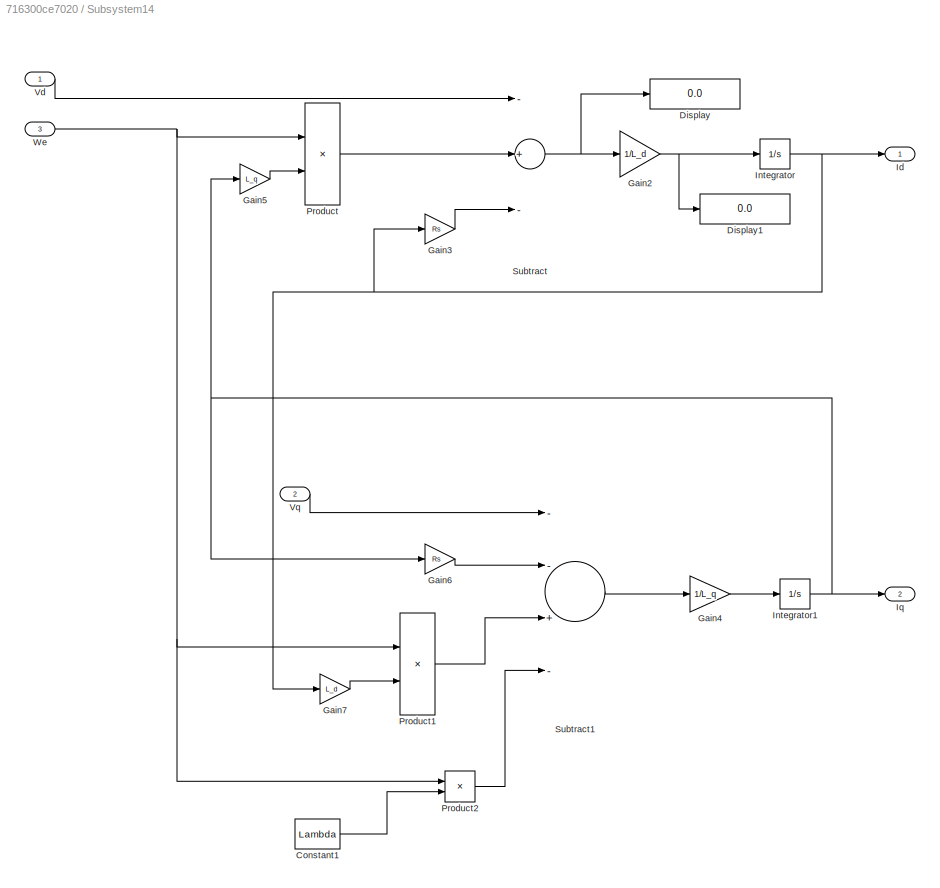
BLOCK [SubSystem] Subsystem14
  Ports = [3, 2]
  RequestExecContextInheritance = off
  Variant = off
BLOCK [Constant] Subsystem14/Constant1
  Value = Lambda
BLOCK [Display] Subsystem14/Display
  Decimation = 1
  Ports = [1]
BLOCK [Display] Subsystem14/Display1
  Decimation = 1
  Ports = [1]
BLOCK [Gain] Subsystem14/Gain2
  Gain = 1/L_d
  OutDataTypeStr = Inherit: Inherit via internal rule
  ParamDataTypeStr = Inherit: Inherit via internal rule
  SaturateOnIntegerOverflow = off
BLOCK [Gain] Subsystem14/Gain3
  Gain = Rs
  OutDataTypeStr = Inherit: Inherit via internal rule
  ParamDataTypeStr = Inherit: Inherit via internal rule
  SaturateOnIntegerOverflow = off
BLOCK [Gain] Subsystem14/Gain4
  Gain = 1/L_q
  OutDataTypeStr = Inherit: Inherit via internal rule
  ParamDataTypeStr = Inherit: Inherit via internal rule
  SaturateOnIntegerOverflow = off
BLOCK [Gain] Subsystem14/Gain5
  Gain = L_q
  OutDataTypeStr = Inherit: Inherit via internal rule
  ParamDataTypeStr = Inherit: Inherit via internal rule
  SaturateOnIntegerOverflow = off
BLOCK [Gain] Subsystem14/Gain6
  Gain = Rs
  OutDataTypeStr = Inherit: Inherit via internal rule
  ParamDataTypeStr = Inherit: Inherit via internal rule
  SaturateOnIntegerOverflow = off
BLOCK [Gain] Subsystem14/Gain7
  Gain = L_d
  OutDataTypeStr = Inherit: Inherit via internal rule
  ParamDataTypeStr = Inherit: Inherit via internal rule
  SaturateOnIntegerOverflow = off
BLOCK [Outport] Subsystem14/Id
  IconDisplay = Port number
BLOCK [Integrator] Subsystem14/Integrator
  Ports = [1, 1]
BLOCK [Integrator] Subsystem14/Integrator1
  Ports = [1, 1]
BLOCK [Outport] Subsystem14/Iq
  IconDisplay = Port number
  Port = 2
BLOCK [Product] Subsystem14/Product
  InputSameDT = off
  OutDataTypeStr = Inherit: Inherit via internal rule
  Ports = [2, 1]
  RndMeth = Floor
  SaturateOnIntegerOverflow = off
BLOCK [Product] Subsystem14/Product1
  InputSameDT = off
  OutDataTypeStr = Inherit: Inherit via internal rule
  Ports = [2, 1]
  RndMeth = Floor
  SaturateOnIntegerOverflow = off
BLOCK [Product] Subsystem14/Product2
  InputSameDT = off
  OutDataTypeStr = Inherit: Inherit via internal rule
  Ports = [2, 1]
  RndMeth = Floor
  SaturateOnIntegerOverflow = off
BLOCK [Sum] Subsystem14/Subtract
  InputSameDT = off
  Inputs = -+-
  OutDataTypeStr = Inherit: Inherit via internal rule
  Ports = [3, 1]
  SaturateOnIntegerOverflow = off
BLOCK [Sum] Subsystem14/Subtract1
  InputSameDT = off
  Inputs = --+-
  OutDataTypeStr = Inherit: Inherit via internal rule
  Ports = [4, 1]
  SaturateOnIntegerOverflow = off
BLOCK [Inport] Subsystem14/Vd
  IconDisplay = Port number
BLOCK [Inport] Subsystem14/Vq
  IconDisplay = Port number
  Port = 2
BLOCK [Inport] Subsystem14/We
  IconDisplay = Port number
  Port = 3
BLOCK [SubSystem] Subsystem15
  Ports = [2, 1]
  RequestExecContextInheritance = off
  Variant = off
BLOCK [Sum] Subsystem15/Add
  InputSameDT = off
  OutDataTypeStr = Inherit: Inherit via internal rule
  Ports = [2, 1]
  SaturateOnIntegerOverflow = off
BLOCK [Constant] Subsystem15/Constant1
  Value = Lambda
BLOCK [Constant] Subsystem15/Constant2
  Value = L_d
BLOCK [Constant] Subsystem15/Constant3
  Value = L_q
BLOCK [Gain] Subsystem15/Gain5
  Gain = P
  OutDataTypeStr = Inherit: Inherit via internal rule
  ParamDataTypeStr = Inherit: Inherit via internal rule
  SaturateOnIntegerOverflow = off
BLOCK [Gain] Subsystem15/Gain6
  Gain = 1.5
  OutDataTypeStr = Inherit: Inherit via internal rule
  ParamDataTypeStr = Inherit: Inherit via internal rule
  SaturateOnIntegerOverflow = off
BLOCK [Inport] Subsystem15/Id
  IconDisplay = Port number
  Port = 2
BLOCK [Inport] Subsystem15/Iq
  IconDisplay = Port number
BLOCK [Product] Subsystem15/Product
  InputSameDT = off
  OutDataTypeStr = Inherit: Inherit via internal rule
  Ports = [2, 1]
  RndMeth = Floor
  SaturateOnIntegerOverflow = off
BLOCK [Product] Subsystem15/Product1
  InputSameDT = off
  Inputs = 3
  OutDataTypeStr = Inherit: Inherit via internal rule
  Ports = [3, 1]
  RndMeth = Floor
  SaturateOnIntegerOverflow = off
BLOCK [Scope] Subsystem15/Scope
  NumInputPorts = 1
  Ports = [1]
  ScopeSpecificationString = C++SS(StrPVP('Open','off'),StrPVP('TimeRange','auto'),StrPVP('TickLabels','OneTimeTick'),StrPVP('ShowLegends','off'),StrPVP('LimitDataPoints','off'),StrPVP('MaxDataPoints','5000'),StrPVP('SaveToWorkspace','on'),StrPVP('SaveName','te12'),StrPVP('YMin','-11.63205'),StrPVP('YMax','4.52204'),StrPVP('BlockParamSampleInput','off'),StrPVP('BlockParamSampleTime','-1'),StrPVP('ZoomMode','on'),StrPVP('Grid'...<+560ch>
BLOCK [Sum] Subsystem15/Subtract
  InputSameDT = off
  Inputs = +-
  OutDataTypeStr = Inherit: Inherit via internal rule
  Ports = [2, 1]
  SaturateOnIntegerOverflow = off
BLOCK [Outport] Subsystem15/Te
  IconDisplay = Port number
BLOCK [SubSystem] Subsystem16
  Ports = [1, 2]
  RequestExecContextInheritance = off
  Variant = off
BLOCK [Display] Subsystem16/Display2
  Decimation = 1
  Ports = [1]
BLOCK [Display] Subsystem16/Display3
  Decimation = 1
  Ports = [1]
BLOCK [Product] Subsystem16/Divide1
  InputSameDT = off
  Inputs = **
  OutDataTypeStr = Inherit: Inherit via internal rule
  Ports = [2, 1]
  RndMeth = Floor
  SaturateOnIntegerOverflow = off
BLOCK [From] Subsystem16/From10
  GotoTag = Vout
BLOCK [From] Subsystem16/From47
  GotoTag = Iout
BLOCK [Gain] Subsystem16/Gain
  OutDataTypeStr = Inherit: Inherit via internal rule
  ParamDataTypeStr = Inherit: Inherit via internal rule
  SaturateOnIntegerOverflow = off
BLOCK [Goto] Subsystem16/Goto21
  GotoTag = Vout
BLOCK [Goto] Subsystem16/Goto22
  GotoTag = Iout
BLOCK [Inport] Subsystem16/In1
  IconDisplay = Port number
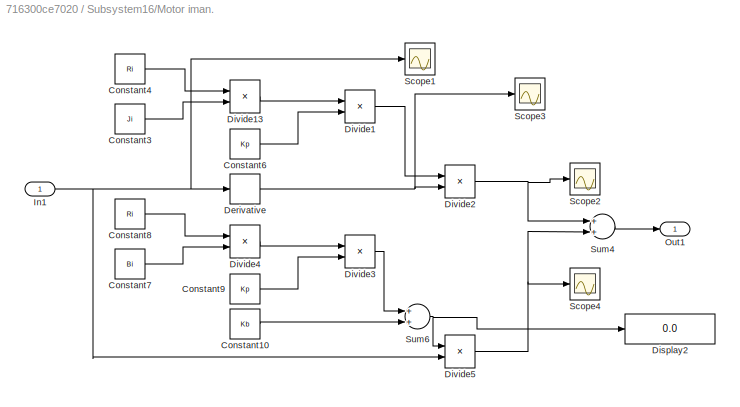
BLOCK [SubSystem] Subsystem16/Motor iman.
  Ports = [1, 1]
  RequestExecContextInheritance = off
  Variant = off
BLOCK [Constant] Subsystem16/Motor iman./Constant10
  Value = Kb
BLOCK [Constant] Subsystem16/Motor iman./Constant3
  Value = Ji
BLOCK [Constant] Subsystem16/Motor iman./Constant4
  Value = Ri
BLOCK [Constant] Subsystem16/Motor iman./Constant6
  Value = Kp
BLOCK [Constant] Subsystem16/Motor iman./Constant7
  Value = Bi
BLOCK [Constant] Subsystem16/Motor iman./Constant8
  Value = Ri
BLOCK [Constant] Subsystem16/Motor iman./Constant9
  Value = Kp
BLOCK [Derivative] Subsystem16/Motor iman./Derivative
BLOCK [Display] Subsystem16/Motor iman./Display2
  Decimation = 1
  Ports = [1]
BLOCK [Product] Subsystem16/Motor iman./Divide1
  InputSameDT = off
  Inputs = */
  OutDataTypeStr = Inherit: Inherit via internal rule
  Ports = [2, 1]
BLOCK [Product] Subsystem16/Motor iman./Divide13
  InputSameDT = off
  Inputs = **
  OutDataTypeStr = Inherit: Inherit via internal rule
  Ports = [2, 1]
BLOCK [Product] Subsystem16/Motor iman./Divide2
  InputSameDT = off
  Inputs = **
  OutDataTypeStr = Inherit: Inherit via internal rule
  Ports = [2, 1]
BLOCK [Product] Subsystem16/Motor iman./Divide3
  InputSameDT = off
  Inputs = */
  OutDataTypeStr = Inherit: Inherit via internal rule
  Ports = [2, 1]
BLOCK [Product] Subsystem16/Motor iman./Divide4
  InputSameDT = off
  Inputs = **
  OutDataTypeStr = Inherit: Inherit via internal rule
  Ports = [2, 1]
BLOCK [Product] Subsystem16/Motor iman./Divide5
  InputSameDT = off
  Inputs = **
  OutDataTypeStr = Inherit: Inherit via internal rule
  Ports = [2, 1]
BLOCK [Inport] Subsystem16/Motor iman./In1
  IconDisplay = Port number
BLOCK [Outport] Subsystem16/Motor iman./Out1
  IconDisplay = Port number
BLOCK [Scope] Subsystem16/Motor iman./Scope1
  NumInputPorts = 1
  Ports = [1]
  ScopeSpecificationString = Simulink.scopes.TimeScopeBlockCfg('CurrentConfiguration', extmgr.ConfigurationSet(extmgr.Configuration('Core','General UI',true),extmgr.Configuration('Core','Source UI',true),extmgr.Configuration('Sources','WiredSimulink',true,'DataLoggingVariableName','ScopeData5'),extmgr.Configuration('Visuals','Time Domain',true,'SerializedDisplays',{struct('MinYLimReal','5.20222','MaxYLimReal','53.18001','YLab...<+1364ch>
BLOCK [Scope] Subsystem16/Motor iman./Scope2
  NumInputPorts = 1
  Ports = [1]
  ScopeSpecificationString = Simulink.scopes.TimeScopeBlockCfg('CurrentConfiguration', extmgr.ConfigurationSet(extmgr.Configuration('Core','General UI',true),extmgr.Configuration('Core','Source UI',true),extmgr.Configuration('Sources','WiredSimulink',true,'DataLoggingVariableName','ScopeData1'),extmgr.Configuration('Visuals','Time Domain',true,'SerializedDisplays',{struct('MinYLimReal','-0.16652','MaxYLimReal','1.49866','YLab...<+1366ch>
BLOCK [Scope] Subsystem16/Motor iman./Scope3
  NumInputPorts = 1
  Ports = [1]
  ScopeSpecificationString = Simulink.scopes.TimeScopeBlockCfg('CurrentConfiguration', extmgr.ConfigurationSet(extmgr.Configuration('Core','General UI',true),extmgr.Configuration('Core','Source UI',true),extmgr.Configuration('Sources','WiredSimulink',true,'DataLoggingVariableName','ScopeData4'),extmgr.Configuration('Visuals','Time Domain',true,'SerializedDisplays',{struct('MinYLimReal','-0.11101','MaxYLimReal','0.99911','YLab...<+1369ch>
BLOCK [Scope] Subsystem16/Motor iman./Scope4
  NumInputPorts = 1
  Ports = [1]
  ScopeSpecificationString = Simulink.scopes.TimeScopeBlockCfg('CurrentConfiguration', extmgr.ConfigurationSet(extmgr.Configuration('Core','General UI',true),extmgr.Configuration('Core','Source UI',true),extmgr.Configuration('Sources','WiredSimulink',true,'DataLoggingVariableName','ScopeData2'),extmgr.Configuration('Visuals','Time Domain',true,'SerializedDisplays',{struct('MinYLimReal','11.14862','MaxYLimReal','113.96743','YL...<+1376ch>
BLOCK [Sum] Subsystem16/Motor iman./Sum4
  InputSameDT = off
  OutDataTypeStr = Inherit: Inherit via internal rule
  Ports = [2, 1]
  SaturateOnIntegerOverflow = off
BLOCK [Sum] Subsystem16/Motor iman./Sum6
  InputSameDT = off
  OutDataTypeStr = Inherit: Inherit via internal rule
  Ports = [2, 1]
  SaturateOnIntegerOverflow = off
BLOCK [Outport] Subsystem16/Out1
  IconDisplay = Port number
BLOCK [Outport] Subsystem16/Out2
  IconDisplay = Port number
  Port = 2
BLOCK [Scope] Subsystem16/Scope1
  NumInputPorts = 1
  Ports = [1]
  ScopeSpecificationString = Simulink.scopes.TimeScopeBlockCfg('CurrentConfiguration', extmgr.ConfigurationSet(extmgr.Configuration('Core','General UI',true),extmgr.Configuration('Core','Source UI',true),extmgr.Configuration('Sources','WiredSimulink',true,'DataLoggingVariableName','ScopeData1'),extmgr.Configuration('Visuals','Time Domain',true,'SerializedDisplays',{struct('MinYLimReal','16.85641','MaxYLimReal','148.31935','YL...<+1380ch>
BLOCK [Scope] Subsystem16/Scope3
  NumInputPorts = 1
  Ports = [1]
  ScopeSpecificationString = Simulink.scopes.TimeScopeBlockCfg('CurrentConfiguration', extmgr.ConfigurationSet(extmgr.Configuration('Core','General UI',true),extmgr.Configuration('Core','Source UI',true),extmgr.Configuration('Sources','WiredSimulink',true,'DataLoggingVariableName','ScopeData2'),extmgr.Configuration('Visuals','Time Domain',true,'SerializedDisplays',{struct('MinYLimReal','5.20222','MaxYLimReal','53.18001','YLab...<+1370ch>
BLOCK [Scope] Subsystem16/Scope6
  NumInputPorts = 1
  Ports = [1]
  ScopeSpecificationString = Simulink.scopes.TimeScopeBlockCfg('CurrentConfiguration', extmgr.ConfigurationSet(extmgr.Configuration('Core','General UI',true),extmgr.Configuration('Core','Source UI',true),extmgr.Configuration('Sources','WiredSimulink',true,'DataLoggingVariableName','ScopeData2'),extmgr.Configuration('Visuals','Time Domain',true,'SerializedDisplays',{struct('MinYLimReal','3.37128','MaxYLimReal','29.66387','YLab...<+1371ch>
BLOCK [SubSystem] Subsystem16/Subsystem1
  Ports = [1, 1]
  RequestExecContextInheritance = off
  Variant = off
BLOCK [Constant] Subsystem16/Subsystem1/Constant2
  Value = Kp
BLOCK [Product] Subsystem16/Subsystem1/Divide2
  InputSameDT = off
  Inputs = **
  OutDataTypeStr = Inherit: Inherit via internal rule
  Ports = [2, 1]
  RndMeth = Floor
  SaturateOnIntegerOverflow = off
BLOCK [Inport] Subsystem16/Subsystem1/In1
  IconDisplay = Port number
BLOCK [Outport] Subsystem16/Subsystem1/Out1
  IconDisplay = Port number
BLOCK [SubSystem] Subsystem16/Subsystem2
  Ports = [1, 1]
  RequestExecContextInheritance = off
  Variant = off
BLOCK [Constant] Subsystem16/Subsystem2/Constant
  Value = CargaR
BLOCK [Product] Subsystem16/Subsystem2/Divide1
  InputSameDT = off
  Inputs = */
  OutDataTypeStr = Inherit: Inherit via internal rule
  Ports = [2, 1]
  RndMeth = Floor
  SaturateOnIntegerOverflow = off
BLOCK [Inport] Subsystem16/Subsystem2/In1
  IconDisplay = Port number
BLOCK [Outport] Subsystem16/Subsystem2/Out1
  IconDisplay = Port number
BLOCK [SubSystem] Subsystem2
  Ports = [4, 1]
  RequestExecContextInheritance = off
  Variant = off
BLOCK [Display] Subsystem2/Display1
  Decimation = 1
  Ports = [1]
BLOCK [Display] Subsystem2/Display2
  Decimation = 1
  Ports = [1]
BLOCK [Inport] Subsystem2/In1
  IconDisplay = Port number
BLOCK [Inport] Subsystem2/In2
  IconDisplay = Port number
  Port = 2
BLOCK [Inport] Subsystem2/In3
  IconDisplay = Port number
  Port = 3
BLOCK [Inport] Subsystem2/In4
  IconDisplay = Port number
  Port = 4
BLOCK [Integrator] Subsystem2/Integrator
  Ports = [1, 1]
BLOCK [Outport] Subsystem2/Out1
  IconDisplay = Port number
BLOCK [Sum] Subsystem2/Sum
  InputSameDT = off
  Inputs = |-+
  OutDataTypeStr = Inherit: Inherit via internal rule
  Ports = [2, 1]
  SaturateOnIntegerOverflow = off
BLOCK [Product] Subsystem2/divide
  InputSameDT = off
  Inputs = */
  OutDataTypeStr = Inherit: Inherit via internal rule
  Ports = [2, 1]
  RndMeth = Floor
  SaturateOnIntegerOverflow = off
BLOCK [Product] Subsystem2/multiplica
  InputSameDT = off
  Inputs = **
  OutDataTypeStr = Inherit: Inherit via internal rule
  Ports = [2, 1]
  RndMeth = Floor
  SaturateOnIntegerOverflow = off
BLOCK [Product] Subsystem2/multiplica1
  InputSameDT = off
  Inputs = **
  OutDataTypeStr = Inherit: Inherit via internal rule
  Ports = [2, 1]
  RndMeth = Floor
  SaturateOnIntegerOverflow = off
BLOCK [SubSystem] Subsystem3
  Ports = [3, 1]
  RequestExecContextInheritance = off
  Variant = off
BLOCK [Product] Subsystem3/Divide2
  InputSameDT = off
  Inputs = /*
  OutDataTypeStr = Inherit: Inherit via internal rule
  Ports = [2, 1]
  RndMeth = Floor
  SaturateOnIntegerOverflow = off
BLOCK [Product] Subsystem3/Divide3
  InputSameDT = off
  Inputs = **
  OutDataTypeStr = Inherit: Inherit via internal rule
  Ports = [2, 1]
  RndMeth = Floor
  SaturateOnIntegerOverflow = off
BLOCK [Inport] Subsystem3/In1
  IconDisplay = Port number
BLOCK [Inport] Subsystem3/In2
  IconDisplay = Port number
  Port = 2
BLOCK [Inport] Subsystem3/In3
  IconDisplay = Port number
  Port = 3
BLOCK [Integrator] Subsystem3/Integrator
  Ports = [1, 1]
BLOCK [Outport] Subsystem3/Out1
  IconDisplay = Port number
BLOCK [Sum] Subsystem3/Sum1
  IconShape = round
  InputSameDT = off
  Inputs = |+-
  OutDataTypeStr = Inherit: Inherit via internal rule
  Ports = [2, 1]
  SaturateOnIntegerOverflow = off
BLOCK [SubSystem] Subsystem4
  Ports = [5, 1]
  RequestExecContextInheritance = off
  Variant = off
BLOCK [Inport] Subsystem4/In1
  IconDisplay = Port number
BLOCK [Inport] Subsystem4/In2
  IconDisplay = Port number
  Port = 2
BLOCK [Inport] Subsystem4/In3
  IconDisplay = Port number
  Port = 3
BLOCK [Inport] Subsystem4/In4
  IconDisplay = Port number
  Port = 4
BLOCK [Inport] Subsystem4/In5
  IconDisplay = Port number
  Port = 5
BLOCK [Integrator] Subsystem4/Integrator
  Ports = [1, 1]
BLOCK [Outport] Subsystem4/Out1
  IconDisplay = Port number
BLOCK [Sum] Subsystem4/Sum
  IconShape = round
  InputSameDT = off
  Inputs = |+-
  OutDataTypeStr = Inherit: Inherit via internal rule
  Ports = [2, 1]
  SaturateOnIntegerOverflow = off
BLOCK [Sum] Subsystem4/Sum1
  IconShape = round
  InputSameDT = off
  Inputs = |+-
  OutDataTypeStr = Inherit: Inherit via internal rule
  Ports = [2, 1]
  SaturateOnIntegerOverflow = off
BLOCK [Sum] Subsystem4/Sum2
  IconShape = round
  InputSameDT = off
  Inputs = |-+
  OutDataTypeStr = Inherit: Inherit via internal rule
  Ports = [2, 1]
  SaturateOnIntegerOverflow = off
BLOCK [Product] Subsystem4/multiplica
  InputSameDT = off
  Inputs = **
  OutDataTypeStr = Inherit: Inherit via internal rule
  Ports = [2, 1]
  RndMeth = Floor
  SaturateOnIntegerOverflow = off
BLOCK [Product] Subsystem4/multiplica1
  InputSameDT = off
  Inputs = **
  OutDataTypeStr = Inherit: Inherit via internal rule
  Ports = [2, 1]
  RndMeth = Floor
  SaturateOnIntegerOverflow = off
BLOCK [Product] Subsystem4/multiplica2
  InputSameDT = off
  Inputs = **
  OutDataTypeStr = Inherit: Inherit via internal rule
  Ports = [2, 1]
  RndMeth = Floor
  SaturateOnIntegerOverflow = off
BLOCK [SubSystem] Subsystem5
  Ports = [5, 1]
  RequestExecContextInheritance = off
  Variant = off
BLOCK [Inport] Subsystem5/In1
  IconDisplay = Port number
BLOCK [Inport] Subsystem5/In2
  IconDisplay = Port number
  Port = 2
BLOCK [Inport] Subsystem5/In3
  IconDisplay = Port number
  Port = 3
BLOCK [Inport] Subsystem5/In4
  IconDisplay = Port number
  Port = 4
BLOCK [Inport] Subsystem5/In5
  IconDisplay = Port number
  Port = 5
BLOCK [Integrator] Subsystem5/Integrator
  Ports = [1, 1]
BLOCK [Outport] Subsystem5/Out1
  IconDisplay = Port number
BLOCK [Sum] Subsystem5/Sum
  IconShape = round
  InputSameDT = off
  Inputs = |+-
  OutDataTypeStr = Inherit: Inherit via internal rule
  Ports = [2, 1]
  SaturateOnIntegerOverflow = off
BLOCK [Sum] Subsystem5/Sum1
  IconShape = round
  InputSameDT = off
  Inputs = |+-
  OutDataTypeStr = Inherit: Inherit via internal rule
  Ports = [2, 1]
  SaturateOnIntegerOverflow = off
BLOCK [Sum] Subsystem5/Sum2
  IconShape = round
  InputSameDT = off
  Inputs = |-+
  OutDataTypeStr = Inherit: Inherit via internal rule
  Ports = [2, 1]
  SaturateOnIntegerOverflow = off
BLOCK [Product] Subsystem5/multiplica
  InputSameDT = off
  Inputs = **
  OutDataTypeStr = Inherit: Inherit via internal rule
  Ports = [2, 1]
  RndMeth = Floor
  SaturateOnIntegerOverflow = off
BLOCK [Product] Subsystem5/multiplica1
  InputSameDT = off
  Inputs = **
  OutDataTypeStr = Inherit: Inherit via internal rule
  Ports = [2, 1]
  RndMeth = Floor
  SaturateOnIntegerOverflow = off
BLOCK [Product] Subsystem5/multiplica2
  InputSameDT = off
  Inputs = **
  OutDataTypeStr = Inherit: Inherit via internal rule
  Ports = [2, 1]
  RndMeth = Floor
  SaturateOnIntegerOverflow = off
BLOCK [SubSystem] Subsystem6
  Ports = [2, 1]
  RequestExecContextInheritance = off
  Variant = off
BLOCK [Gain] Subsystem6/Gain6
  Gain = 2*pi
  OutDataTypeStr = Inherit: Inherit via internal rule
  ParamDataTypeStr = Inherit: Inherit via internal rule
  SaturateOnIntegerOverflow = off
BLOCK [Inport] Subsystem6/In1
  IconDisplay = Port number
BLOCK [Inport] Subsystem6/In2
  IconDisplay = Port number
  Port = 2
BLOCK [Outport] Subsystem6/Out1
  IconDisplay = Port number
BLOCK [Product] Subsystem6/Product8
  InputSameDT = off
  OutDataTypeStr = Inherit: Inherit via internal rule
  Ports = [2, 1]
  RndMeth = Floor
  SaturateOnIntegerOverflow = off
BLOCK [SubSystem] Subsystem7
  Ports = [4, 1]
  RequestExecContextInheritance = off
  Variant = off
BLOCK [Product] Subsystem7/Divide
  InputSameDT = off
  Inputs = **
  OutDataTypeStr = Inherit: Inherit via internal rule
  Ports = [2, 1]
  RndMeth = Floor
  SaturateOnIntegerOverflow = off
BLOCK [Inport] Subsystem7/In1
  IconDisplay = Port number
BLOCK [Inport] Subsystem7/In2
  IconDisplay = Port number
  Port = 2
BLOCK [Inport] Subsystem7/In3
  IconDisplay = Port number
  Port = 3
BLOCK [Inport] Subsystem7/In4
  IconDisplay = Port number
  Port = 4
BLOCK [Outport] Subsystem7/Out1
  IconDisplay = Port number
BLOCK [Sum] Subsystem7/Sum3
  InputSameDT = off
  Inputs = |++
  OutDataTypeStr = Inherit: Inherit via internal rule
  Ports = [2, 1]
  SaturateOnIntegerOverflow = off
BLOCK [Sum] Subsystem7/Sum4
  InputSameDT = off
  Inputs = |++
  OutDataTypeStr = Inherit: Inherit via internal rule
  Ports = [2, 1]
  SaturateOnIntegerOverflow = off
BLOCK [SubSystem] Subsystem8
  Ports = [2, 1]
  RequestExecContextInheritance = off
  Variant = off
BLOCK [Gain] Subsystem8/Gain8
  Gain = 2*pi
  OutDataTypeStr = Inherit: Inherit via internal rule
  ParamDataTypeStr = Inherit: Inherit via internal rule
  SaturateOnIntegerOverflow = off
BLOCK [Inport] Subsystem8/In1
  IconDisplay = Port number
BLOCK [Inport] Subsystem8/In2
  IconDisplay = Port number
  Port = 2
BLOCK [Outport] Subsystem8/Out1
  IconDisplay = Port number
BLOCK [Product] Subsystem8/Product9
  InputSameDT = off
  OutDataTypeStr = Inherit: Inherit via internal rule
  Ports = [2, 1]
  RndMeth = Floor
  SaturateOnIntegerOverflow = off
BLOCK [SubSystem] Subsystem9
  Ports = [4, 1]
  RequestExecContextInheritance = off
  Variant = off
BLOCK [Inport] Subsystem9/In1
  IconDisplay = Port number
BLOCK [Inport] Subsystem9/In2
  IconDisplay = Port number
  Port = 2
BLOCK [Inport] Subsystem9/In3
  IconDisplay = Port number
  Port = 3
BLOCK [Inport] Subsystem9/In4
  IconDisplay = Port number
  Port = 4
BLOCK [Outport] Subsystem9/Out1
  IconDisplay = Port number
BLOCK [Product] Subsystem9/divide
  InputSameDT = off
  Inputs = **
  OutDataTypeStr = Inherit: Inherit via internal rule
  Ports = [2, 1]
  RndMeth = Floor
  SaturateOnIntegerOverflow = off
BLOCK [Product] Subsystem9/divide1
  InputSameDT = off
  Inputs = **
  OutDataTypeStr = Inherit: Inherit via internal rule
  Ports = [2, 1]
  RndMeth = Floor
  SaturateOnIntegerOverflow = off
BLOCK [Product] Subsystem9/divide2
  InputSameDT = off
  Inputs = */
  OutDataTypeStr = Inherit: Inherit via internal rule
  Ports = [2, 1]
  RndMeth = Floor
  SaturateOnIntegerOverflow = off
BLOCK [Sum] Sum
  IconShape = round
  InputSameDT = off
  Inputs = |++
  OutDataTypeStr = Inherit: Inherit via internal rule
  Ports = [2, 1]
  SaturateOnIntegerOverflow = off
BLOCK [Sum] Sum1
  InputSameDT = off
  Inputs = |++--
  OutDataTypeStr = Inherit: Inherit via internal rule
  Ports = [4, 1]
  SaturateOnIntegerOverflow = off
BLOCK [Sum] Sum10
  IconShape = round
  InputSameDT = off
  Inputs = |+-
  OutDataTypeStr = Inherit: Inherit via internal rule
  Ports = [2, 1]
  SaturateOnIntegerOverflow = off
BLOCK [Sum] Sum11
  IconShape = round
  InputSameDT = off
  Inputs = |+-
  OutDataTypeStr = Inherit: Inherit via internal rule
  Ports = [2, 1]
  SaturateOnIntegerOverflow = off
BLOCK [Sum] Sum12
  IconShape = round
  InputSameDT = off
  Inputs = |++
  OutDataTypeStr = Inherit: Inherit via internal rule
  Ports = [2, 1]
  SaturateOnIntegerOverflow = off
BLOCK [Sum] Sum13
  IconShape = round
  InputSameDT = off
  Inputs = |+-
  OutDataTypeStr = Inherit: Inherit via internal rule
  Ports = [2, 1]
  SaturateOnIntegerOverflow = off
BLOCK [Sum] Sum14
  IconShape = round
  InputSameDT = off
  Inputs = |+-
  OutDataTypeStr = Inherit: Inherit via internal rule
  Ports = [2, 1]
  SaturateOnIntegerOverflow = off
BLOCK [Sum] Sum15
  InputSameDT = off
  Inputs = |-+
  OutDataTypeStr = Inherit: Inherit via internal rule
  Ports = [2, 1]
  SaturateOnIntegerOverflow = off
BLOCK [Sum] Sum16
  IconShape = round
  InputSameDT = off
  Inputs = |+-
  OutDataTypeStr = Inherit: Inherit via internal rule
  Ports = [2, 1]
  SaturateOnIntegerOverflow = off
BLOCK [Sum] Sum17
  IconShape = round
  InputSameDT = off
  Inputs = |++
  OutDataTypeStr = Inherit: Inherit via internal rule
  Ports = [2, 1]
  SaturateOnIntegerOverflow = off
BLOCK [Sum] Sum18
  IconShape = round
  InputSameDT = off
  Inputs = |++
  OutDataTypeStr = Inherit: Inherit via internal rule
  Ports = [2, 1]
  SaturateOnIntegerOverflow = off
BLOCK [Sum] Sum19
  InputSameDT = off
  Inputs = |++
  OutDataTypeStr = Inherit: Inherit via internal rule
  Ports = [2, 1]
  SaturateOnIntegerOverflow = off
BLOCK [Sum] Sum2
  InputSameDT = off
  Inputs = |+-
  OutDataTypeStr = Inherit: Inherit via internal rule
  Ports = [2, 1]
  SaturateOnIntegerOverflow = off
BLOCK [Sum] Sum20
  InputSameDT = off
  Inputs = |+++
  OutDataTypeStr = Inherit: Inherit via internal rule
  Ports = [3, 1]
  SaturateOnIntegerOverflow = off
BLOCK [Sum] Sum21
  InputSameDT = off
  Inputs = |+-
  OutDataTypeStr = Inherit: Inherit via internal rule
  Ports = [2, 1]
  SaturateOnIntegerOverflow = off
BLOCK [Sum] Sum3
  IconShape = round
  InputSameDT = off
  Inputs = |++
  OutDataTypeStr = Inherit: Inherit via internal rule
  Ports = [2, 1]
  SaturateOnIntegerOverflow = off
BLOCK [Sum] Sum4
  IconShape = round
  InputSameDT = off
  Inputs = |-+
  OutDataTypeStr = Inherit: Inherit via internal rule
  Ports = [2, 1]
  SaturateOnIntegerOverflow = off
BLOCK [Sum] Sum5
  IconShape = round
  InputSameDT = off
  Inputs = |++
  OutDataTypeStr = Inherit: Inherit via internal rule
  Ports = [2, 1]
  SaturateOnIntegerOverflow = off
BLOCK [Sum] Sum6
  IconShape = round
  InputSameDT = off
  Inputs = |++
  OutDataTypeStr = Inherit: Inherit via internal rule
  Ports = [2, 1]
  SaturateOnIntegerOverflow = off
BLOCK [Sum] Sum7
  IconShape = round
  InputSameDT = off
  Inputs = |++
  OutDataTypeStr = Inherit: Inherit via internal rule
  Ports = [2, 1]
  SaturateOnIntegerOverflow = off
BLOCK [Sum] Sum8
  IconShape = round
  InputSameDT = off
  Inputs = |+-
  OutDataTypeStr = Inherit: Inherit via internal rule
  Ports = [2, 1]
  SaturateOnIntegerOverflow = off
BLOCK [Sum] Sum9
  IconShape = round
  InputSameDT = off
  Inputs = |++
  OutDataTypeStr = Inherit: Inherit via internal rule
  Ports = [2, 1]
  SaturateOnIntegerOverflow = off
BLOCK [Constant] Tcold2
  Value = Tcold
BLOCK [Constant] Thot
  Value = Thot
BLOCK [Constant] Thot1
  Value = Tcold
BLOCK [ToWorkspace] To Workspace
  FixptAsFi = on
  MaxDataPoints = inf
  Ports = [1]
  SampleTime = -1
  Save2DSignal = 3-D array (concatenate along third dimension)
  SaveFormat = Timeseries
  VariableName = simout
BLOCK [Reference] XY Graph  REF=simulink/Sinks/XY Graph
  Ports = [2]
  SourceBlock = simulink/Sinks/XY Graph
  SourceProductBaseCode = SL
  SourceProductName = Simulink
  SourceType = XY scope.
BLOCK [Constant] Xreg
  Value = 0.04
BLOCK [Constant] desfazamiento
  Value = 1.57079
BLOCK [Constant] desfazamiento1
  Value = b
BLOCK [Constant] desfazamiento3
  Value = c
BLOCK [Constant] desfazamiento4
  Value = J
BLOCK [Constant] h//V2*dv*cpv)
  Value = h/(V2*dv*cpv)
BLOCK [Constant] h//V2*dv*cpv)1
  Value = rp
BLOCK [Constant] h//V2*dv*cpv)2
  Value = rp
BLOCK [Constant] mg
  Value = 0.0002
BLOCK [Constant] mg1
  Value = Rg
BLOCK [From] tetha-fi 
  GotoTag = k
BLOCK [From] tetha-fi 1
  GotoTag = k
ANNOTATION (root): ECUACIO 25
ANNOTATION (root): ECUACION 29
ANNOTATION (root): ECUACION 10
ANNOTATION (root): ECUACION 11
ANNOTATION (root): ECUACION 13
ANNOTATION (root): ECUACION 14
ANNOTATION (root): ECUACION 1
ANNOTATION (root): ECUACION 22
ANNOTATION (root): ECUACION 23
ANNOTATION (root): ECUACION 24
ANNOTATION (root): ECUACION 27
ANNOTATION (root): ECUACION 28
ANNOTATION (root): ECUACION 30
ANNOTATION (root): ECUACION 31
ANNOTATION (root): ECUACION 7
ANNOTATION (root): ECUACION 8
ANNOTATION (root): ECUACION 9
ANNOTATION (root): ECUACION12
ANNOTATION (root): ECUACION6
ANNOTATION (root): ecuacion 21
ANNOTATION (root): ECUACION 2
ANNOTATION (root): ECUACIONES 15 16 17 18 19
ANNOTATION (root): ecuacion20
ANNOTATION (root): MODELO DEL REGENERADOR
ANNOTATION (root): MODELO TERMODINAMICO
ANNOTATION (root): MODEO TERMICO
ANNOTATION (root): MODELO MECANICO
ANNOTATION (root): RORE AMARILLO TORC AZUL
ANNOTATION (root): para compresion
ANNOTATION (root): para expasion
ANNOTATION Subsystem1: Tg
ANNOTATION Subsystem1: dtg/dt
ANNOTATION Subsystem10: Tgc
ANNOTATION Subsystem10: dTg1/dt
ANNOTATION Subsystem11: Tg
ANNOTATION Subsystem11: dtg/dt
ANNOTATION Subsystem13: Tg
ANNOTATION Subsystem13: dtg/dt
ANNOTATION Subsystem15: Te = 1,5P[Lambda.Iq + (Ld-Lq)Id.Iq]
ANNOTATION Subsystem2: Tgc
ANNOTATION Subsystem2: dTg1/dt
ANNOTATION Subsystem3: Tg
ANNOTATION Subsystem3: dtg/dt
ANNOTATION Subsystem4: dt2/dt
ANNOTATION Subsystem4: t2
ANNOTATION Subsystem5: dt2/dt
ANNOTATION Subsystem5: t2
NET (-h)//(dg*cpg:1 -> Display1:1, Goto6:1
LINE (h*A)//(dg*cpg):1 -> Goto4:1
LINE Ap:1 -> Goto23:1
LINE Clock:1 -> Goto:1
LINE Constant16:1 -> Divide15:2
NET Constant1:1 -> Display8:1, Goto39:1
LINE Constant2:1 -> Goto12:1
LINE Constant3:1 -> Exp:2
LINE Constant4:1 -> Gain6:1
LINE Constant5:1 -> Math Function:2
LINE Constant6:1 -> Math Function1:2
NET Constant7:1 -> Scope49:1, Sum1:2
LINE Constant8:1 -> Divide26:2
NET Constant9:1 -> Product8:1, Product9:2
NET Constant:1 -> Display:1, Goto36:1
LINE Divide10:1 -> Sum16:2
LINE Divide11:1 -> Divide7:1
LINE Divide12:1 -> Goto34:1
LINE Divide13:1 -> Goto33:1
LINE Divide14:1 -> Divide17:2
NET Divide15:1 -> Goto27:1, Scope48:1
NET Divide16:1 -> Goto19:1, Scope73:1
NET Divide17:1 -> Divide19:2, Scope56:1
NET Divide18:1 -> Goto32:1, Scope34:1
NET Divide19:1 -> Goto51:1, Scope54:1
LINE Divide1:1 -> Fcn5:1
LINE Divide20:1 -> Divide21:1
NET Divide21:1 -> Goto52:1, Scope55:1
LINE Divide22:1 -> Divide21:2
NET Divide23:1 -> Goto25:1, Scope113:1
NET Divide24:1 -> Goto60:1, Scope111:1
LINE Divide25:1 -> Scope117:1
NET Divide26:1 -> Goto61:1, Scope121:1
NET Divide2:1 -> Display18:1, Goto17:1, Scope5:1, Scope74:1
LINE Divide3:1 -> Product6:2
NET Divide4:1 -> Display20:1, Sum8:1
LINE Divide5:1 -> Sum8:2
NET Divide6:1 -> Divide2:1, Scope61:1
NET Divide7:1 -> Goto26:1, Scope36:1, Scope74:2
LINE Divide8:1 -> Product7:2
LINE Divide9:1 -> Sum16:1
NET Divide:1 -> Display23:1, Fcn1:1, Scope2:1
LINE Exp:1 -> Divide25:1
LINE F2//(V2*dv):1 -> Goto14:1
NET Fcn10:1 -> Divide6:2, Scope1:1
LINE Fcn11:1 -> Divide11:2
LINE Fcn12:1 -> Product7:1
LINE Fcn13:1 -> Sum6:2
NET Fcn1:1 -> Display7:1, Goto40:1, Scope21:1
NET Fcn2:1 -> Display15:1, Product1:1
LINE Fcn3:1 -> Product2:1
LINE Fcn4:1 -> Product3:1
LINE Fcn5:1 -> Goto45:1
LINE Fcn6:1 -> Product4:1
LINE Fcn7:1 -> Product5:1
NET Fcn8:1 -> Display17:1, Product6:1
LINE Fcn9:1 -> Sum7:2
NET Fcn:1 -> Display24:1, Product:1
NET Frm1:1 -> Scope66:1, Subsystem9:3
NET Frm2:1 -> Scope65:1, Subsystem9:4
NET Frm3:1 -> Scope75:1, Scope77:1, XY Graph:1
NET Frm4:1 -> Scope76:1, Scope77:2, XY Graph:2
LINE From100:1 -> Fcn3:1
NET From101:1 -> Gain7:1, Sum4:1
LINE From102:1 -> Sum4:2
LINE From103:1 -> Mux4:1
LINE From104:1 -> MATLAB Function3:1
LINE From105:1 -> Scope:1
NET From106:1 -> MATLAB Function1:1, Scope88:1
LINE From107:1 -> Subsystem10:1
NET From108:1 -> Scope63:1, Subsystem12:1
NET From109:1 -> Scope96:1, Subsystem12:2
LINE From10:1 -> Mux:2
NET From110:1 -> Scope62:1, Subsystem12:3
NET From111:1 -> MATLAB Function1:2, Scope89:1
NET From112:1 -> MATLAB Function5:3, Scope70:1
NET From113:1 -> MATLAB Function5:4, Scope72:1
LINE From114:1 -> Scope43:1
LINE From115:1 -> Scope43:2
LINE From116:1 -> Scope43:3
LINE From117:1 -> Divide20:1
LINE From118:1 -> Sum2:2
NET From119:1 -> Scope58:2, Sum15:2
LINE From11:1 -> MATLAB Function2:3
NET From120:1 -> Scope58:1, Sum15:1
LINE From121:1 -> Subsystem10:4
NET From122:1 -> Scope106:1, Subsystem4:1
LINE From123:1 -> MATLAB Function4:2
LINE From124:1 -> MATLAB Function4:3
NET From125:1 -> Scope104:1, Subsystem3:2
LINE From126:1 -> Subsystem3:3
NET From127:1 -> Scope103:1, Subsystem3:1
LINE From128:1 -> Subsystem11:2
LINE From129:1 -> Subsystem11:3
LINE From12:1 -> Mux4:2
LINE From130:1 -> Subsystem11:1
NET From131:1 -> MATLAB Function6:1, Scope91:1
NET From132:1 -> MATLAB Function6:2, Scope92:1
NET From133:1 -> MATLAB Function6:3, Scope93:1
NET From134:1 -> MATLAB Function6:5, Scope90:1
LINE From135:1 -> MATLAB Function7:1
NET From136:1 -> MATLAB Function7:2, Scope109:1
LINE From137:1 -> MATLAB Function7:3
LINE From138:1 -> Subsystem13:2
LINE From139:1 -> Subsystem13:3
NET From13:1 -> Scope46:1, Subsystem2:3
LINE From140:1 -> Subsystem13:1
NET From141:1 -> MATLAB Function6:4, Scope94:1
LINE From142:1 -> Scope97:1
LINE From143:1 -> Sum20:1
LINE From144:1 -> Sum20:2
LINE From145:1 -> Divide23:1
LINE From146:1 -> Divide23:2
NET From147:1 -> Scope118:1, Sum21:2
NET From148:1 -> Scope119:1, Sum21:1
LINE From149:1 -> Divide24:2
LINE From14:1 -> Subsystem1:3
LINE From150:1 -> Exp:1
LINE From151:1 -> Divide25:2
LINE From152:1 -> Divide26:1
LINE From153:1 -> Product9:1
LINE From154:1 -> Product8:2
LINE From155:1 -> Subsystem14:3
LINE From156:1 -> Subsystem15:1
LINE From157:1 -> Subsystem15:2
LINE From158:1 -> Subsystem16:1
LINE From15:1 -> Subsystem1:1
LINE From16:1 -> Scope38:1
LINE From17:1 -> Mux5:2
LINE From18:1 -> To Workspace:1
LINE From19:1 -> Subsystem4:4
NET From1:1 -> MATLAB Function5:1, Scope68:1
NET From20:1 -> Scope108:1, Subsystem4:3
NET From21:1 -> Scope107:1, Subsystem4:2
LINE From22:1 -> Mux5:1
LINE From23:1 -> Subsystem5:4
LINE From24:1 -> Subsystem5:3
LINE From25:1 -> Subsystem5:2
LINE From26:1 -> Subsystem5:1
NET From27:1 -> Scope51:1, Sum1:4
NET From28:1 -> Scope50:1, Sum1:3
NET From29:1 -> Display29:1, Integrator2:1, Scope31:2, Scope8:1
NET From2:1 -> Scope45:1, Subsystem2:2
NET From30:1 -> Divide16:1, Scope115:1
NET From31:1 -> Display11:1, Fcn:1
LINE From32:1 -> Scope22:1
LINE From33:1 -> Scope23:1
LINE From34:1 -> Mux:1
LINE From35:1 -> Subsystem7:1
LINE From36:1 -> Subsystem7:2
LINE From37:1 -> Subsystem7:3
LINE From38:1 -> Subsystem7:4
NET From39:1 -> Divide16:2, Scope114:1
NET From3:1 -> Scope44:1, Subsystem2:1
NET From40:1 -> Scope79:1, Subsystem9:1
LINE From41:1 -> Scope59:1
LINE From42:1 -> MATLAB Function1:3
NET From43:1 -> Display12:1, Product:2
LINE From44:1 -> Divide18:1
LINE From45:1 -> Product3:2
LINE From46:1 -> Divide1:2
LINE From47:1 -> Mux2:1
LINE From48:1 -> Product4:2
LINE From49:1 -> Product5:2
LINE From4:1 -> MATLAB Function4:1
LINE From50:1 -> Fcn7:1
LINE From51:1 -> Gain:1
LINE From52:1 -> Divide3:1
LINE From53:1 -> Mux1:2
LINE From54:1 -> Gain1:1
LINE From55:1 -> Fcn9:1
NET From56:1 -> Display13:1, Divide:2
LINE From57:1 -> Divide4:2
LINE From58:1 -> Gain2:1
LINE From59:1 -> Math Function:1
NET From5:1 -> MATLAB Function5:2, Scope69:1
LINE From60:1 -> Sum9:2
LINE From61:1 -> Fcn10:1
LINE From62:1 -> Mux1:1
NET From63:1 -> Divide2:2, Scope33:1
LINE From64:1 -> Gain3:1
LINE From65:1 -> Divide8:1
LINE From66:1 -> Gain4:1
LINE From67:1 -> Fcn13:1
NET From68:1 -> Display14:1, Fcn2:1
LINE From69:1 -> Divide9:2
LINE From6:1 -> MATLAB Function2:1
LINE From70:1 -> Gain5:1
LINE From71:1 -> Math Function1:1
LINE From72:1 -> Sum17:2
LINE From73:1 -> Mux3:2
LINE From74:1 -> Fcn11:1
NET From75:1 -> Divide7:2, Scope35:1
LINE From76:1 -> Sum18:1
LINE From77:1 -> Sum18:2
NET From78:1 -> Display25:1, Sum10:2
LINE From79:1 -> Sum12:1
LINE From7:1 -> MATLAB Function2:2
LINE From80:1 -> Product1:2
LINE From81:1 -> Sum12:2
LINE From82:1 -> Sum11:2
NET From83:1 -> Display28:1, Scope105:1
LINE From84:1 -> Mux3:1
NET From85:1 -> Display27:1, Scope10:1
LINE From86:1 -> Divide18:2
NET From87:1 -> Scope12:1, Sum:1
NET From88:1 -> Divide12:1, Divide13:2
LINE From89:1 -> Divide12:2
LINE From8:1 -> Subsystem1:2
LINE From90:1 -> Divide13:1
LINE From91:1 -> Subsystem8:2
LINE From92:1 -> Subsystem6:2
LINE From93:1 -> Subsystem10:3
NET From94:1 -> Scope80:1, Subsystem10:2
NET From95:1 -> Scope13:1, Sum:2
LINE From96:1 -> Product2:2
NET From97:1 -> Scope14:1, Sum13:2
NET From98:1 -> Scope15:1, Sum14:2
LINE From99:1 -> Mux2:2
NET From9:1 -> Scope47:1, Subsystem2:4
LINE From:1 -> Scope25:1
LINE Gain1:1 -> Divide3:2
LINE Gain2:1 -> Divide5:2
LINE Gain3:1 -> Fcn12:1
LINE Gain4:1 -> Divide8:2
LINE Gain5:1 -> Divide10:2
LINE Gain6:1 -> Sum1:1
LINE Gain7:1 -> Display5:1
LINE Gain:1 -> Fcn8:1
NET Integrator2:1 -> Display30:1, Goto35:1, Integrator3:1, Scope31:1, Scope6:1
NET Integrator3:1 -> Display9:1, Goto37:1, Scope9:1
NET MATLAB Function1:1 -> Goto49:1, Scope26:1
NET MATLAB Function2:1 -> Goto5:1, Scope16:1
NET MATLAB Function3:1 -> Goto43:1, Scope24:1
NET MATLAB Function4:1 -> Goto54:1, Scope82:1
NET MATLAB Function5:1 -> Goto18:1, Scope39:1
NET MATLAB Function6:1 -> Goto57:1, Scope87:1
NET MATLAB Function7:1 -> Goto58:1, Scope85:1
LINE Math Function1:1 -> Divide10:1
LINE Math Function:1 -> Divide5:1
LINE Mux1:1 -> Scope17:1
LINE Mux2:1 -> Scope11:1
LINE Mux3:1 -> Scope18:1
LINE Mux4:1 -> Scope19:1
LINE Mux5:1 -> Scope20:1
LINE Mux:1 -> Scope7:1
LINE PLL:1 -> Scope125:1
LINE Product1:1 -> Sum3:1
LINE Product2:1 -> Sum3:2
LINE Product3:1 -> Divide1:1
LINE Product4:1 -> Sum5:1
LINE Product5:1 -> Sum5:2
LINE Product6:1 -> Sum7:1
LINE Product7:1 -> Sum6:1
NET Product8:1 -> Display6:1, Subsystem14:2
NET Product9:1 -> Display3:1, Subsystem14:1
NET Product:1 -> Display26:1, Divide:1
LINE Rg1:1 -> Divide22:2
LINE Rg3:1 -> Divide22:3
LINE Rg4:1 -> Divide22:1
LINE Rg5:1 -> Divide20:2
LINE Rg6:1 -> Divide17:1
LINE Rg7:1 -> Divide14:1
LINE Rg8:1 -> Divide14:2
LINE Signal Builder1:1 -> Goto50:1
LINE Signal Builder2:1 -> Goto47:1
NET Signal Builder3:1 -> Goto11:1, Scope110:1
LINE Signal Builder4:1 -> Goto3:1
NET Signal Builder:1 -> Goto2:1, Scope37:1
LINE Step1:1 -> Sum20:3
NET Step3:1 -> Scope30:1, Sum19:1
LINE Step:1 -> Scope95:1
LINE Subsystem1/Divide2:1 -> Subsystem1/Divide3:2
LINE Subsystem1/Divide3:1 -> Subsystem1/Integrator:1
LINE Subsystem1/In1:1 -> Subsystem1/Sum1:1
LINE Subsystem1/In2:1 -> Subsystem1/Divide2:1
LINE Subsystem1/In3:1 -> Subsystem1/Divide2:2
NET Subsystem1/Integrator:1 -> Subsystem1/Out1:1, Subsystem1/Sum1:2
LINE Subsystem1/Sum1:1 -> Subsystem1/Divide3:1
LINE Subsystem10/In1:1 -> Subsystem10/multiplica:1
LINE Subsystem10/In2:1 -> Subsystem10/multiplica:2
LINE Subsystem10/In3:1 -> Subsystem10/divide:2
LINE Subsystem10/In4:1 -> Subsystem10/Sum:1
NET Subsystem10/Integrator:1 -> Subsystem10/Display1:1, Subsystem10/Out1:1, Subsystem10/Sum:2
LINE Subsystem10/Sum:1 -> Subsystem10/multiplica1:2
LINE Subsystem10/divide:1 -> Subsystem10/multiplica1:1
NET Subsystem10/multiplica1:1 -> Subsystem10/Display2:1, Subsystem10/Integrator:1
LINE Subsystem10/multiplica:1 -> Subsystem10/divide:1
NET Subsystem10:1 -> Display4:1, Goto53:1, Scope101:1, Scope71:1
LINE Subsystem11/Divide2:1 -> Subsystem11/Divide3:2
LINE Subsystem11/Divide3:1 -> Subsystem11/Integrator:1
LINE Subsystem11/In1:1 -> Subsystem11/Sum1:1
LINE Subsystem11/In2:1 -> Subsystem11/Divide2:1
LINE Subsystem11/In3:1 -> Subsystem11/Divide2:2
NET Subsystem11/Integrator:1 -> Subsystem11/Out1:1, Subsystem11/Sum1:2
LINE Subsystem11/Sum1:1 -> Subsystem11/Divide3:1
NET Subsystem11:1 -> Goto56:1, Scope84:1
LINE Subsystem12/Divide16:1 -> Subsystem12/Out1:1
LINE Subsystem12/Gain1:1 -> Subsystem12/Sum:2
LINE Subsystem12/Gain:1 -> Subsystem12/Sum:1
LINE Subsystem12/In1:1 -> Subsystem12/Gain:1
LINE Subsystem12/In2:1 -> Subsystem12/Gain1:1
LINE Subsystem12/In3:1 -> Subsystem12/Divide16:2
LINE Subsystem12/Sum:1 -> Subsystem12/Divide16:1
NET Subsystem12:1 -> Goto48:1, Scope52:1
LINE Subsystem13/Divide2:1 -> Subsystem13/Divide3:2
LINE Subsystem13/Divide3:1 -> Subsystem13/Integrator:1
LINE Subsystem13/In1:1 -> Subsystem13/Sum1:1
LINE Subsystem13/In2:1 -> Subsystem13/Divide2:1
LINE Subsystem13/In3:1 -> Subsystem13/Divide2:2
NET Subsystem13/Integrator:1 -> Subsystem13/Out1:1, Subsystem13/Sum1:2
LINE Subsystem13/Sum1:1 -> Subsystem13/Divide3:1
NET Subsystem13:1 -> Goto59:1, Scope86:1
LINE Subsystem14/Constant1:1 -> Subsystem14/Product2:2
NET Subsystem14/Gain2:1 -> Subsystem14/Display1:1, Subsystem14/Integrator:1
LINE Subsystem14/Gain3:1 -> Subsystem14/Subtract:3
LINE Subsystem14/Gain4:1 -> Subsystem14/Integrator1:1
LINE Subsystem14/Gain5:1 -> Subsystem14/Product:2
LINE Subsystem14/Gain6:1 -> Subsystem14/Subtract1:2
LINE Subsystem14/Gain7:1 -> Subsystem14/Product1:2
NET Subsystem14/Integrator1:1 -> Subsystem14/Gain5:1, Subsystem14/Gain6:1, Subsystem14/Iq:1
NET Subsystem14/Integrator:1 -> Subsystem14/Gain3:1, Subsystem14/Gain7:1, Subsystem14/Id:1
LINE Subsystem14/Product1:1 -> Subsystem14/Subtract1:3
LINE Subsystem14/Product2:1 -> Subsystem14/Subtract1:4
LINE Subsystem14/Product:1 -> Subsystem14/Subtract:2
LINE Subsystem14/Subtract1:1 -> Subsystem14/Gain4:1
NET Subsystem14/Subtract:1 -> Subsystem14/Display:1, Subsystem14/Gain2:1
LINE Subsystem14/Vd:1 -> Subsystem14/Subtract:1
LINE Subsystem14/Vq:1 -> Subsystem14/Subtract1:1
NET Subsystem14/We:1 -> Subsystem14/Product1:1, Subsystem14/Product2:1, Subsystem14/Product:1
LINE Subsystem14:1 -> Goto62:1
LINE Subsystem14:2 -> Goto63:1
LINE Subsystem15/Add:1 -> Subsystem15/Gain6:1
LINE Subsystem15/Constant1:1 -> Subsystem15/Product:1
LINE Subsystem15/Constant2:1 -> Subsystem15/Subtract:1
LINE Subsystem15/Constant3:1 -> Subsystem15/Subtract:2
NET Subsystem15/Gain5:1 -> Subsystem15/Scope:1, Subsystem15/Te:1
LINE Subsystem15/Gain6:1 -> Subsystem15/Gain5:1
LINE Subsystem15/Id:1 -> Subsystem15/Product1:2
NET Subsystem15/Iq:1 -> Subsystem15/Product1:1, Subsystem15/Product:2
LINE Subsystem15/Product1:1 -> Subsystem15/Add:2
LINE Subsystem15/Product:1 -> Subsystem15/Add:1
LINE Subsystem15/Subtract:1 -> Subsystem15/Product1:3
LINE Subsystem15:1 -> Scope122:1
LINE Subsystem16/Divide1:1 -> Subsystem16/Out1:1
LINE Subsystem16/From10:1 -> Subsystem16/Subsystem2:1
LINE Subsystem16/From47:1 -> Subsystem16/Subsystem1:1
NET Subsystem16/Gain:1 -> Subsystem16/Motor iman.:1, Subsystem16/Scope3:1
LINE Subsystem16/In1:1 -> Subsystem16/Gain:1
LINE Subsystem16/Motor iman./Constant10:1 -> Subsystem16/Motor iman./Sum6:2
LINE Subsystem16/Motor iman./Constant3:1 -> Subsystem16/Motor iman./Divide13:2
LINE Subsystem16/Motor iman./Constant4:1 -> Subsystem16/Motor iman./Divide13:1
LINE Subsystem16/Motor iman./Constant6:1 -> Subsystem16/Motor iman./Divide1:2
LINE Subsystem16/Motor iman./Constant7:1 -> Subsystem16/Motor iman./Divide4:2
LINE Subsystem16/Motor iman./Constant8:1 -> Subsystem16/Motor iman./Divide4:1
LINE Subsystem16/Motor iman./Constant9:1 -> Subsystem16/Motor iman./Divide3:2
NET Subsystem16/Motor iman./Derivative:1 -> Subsystem16/Motor iman./Divide2:2, Subsystem16/Motor iman./Scope3:1
LINE Subsystem16/Motor iman./Divide13:1 -> Subsystem16/Motor iman./Divide1:1
LINE Subsystem16/Motor iman./Divide1:1 -> Subsystem16/Motor iman./Divide2:1
NET Subsystem16/Motor iman./Divide2:1 -> Subsystem16/Motor iman./Scope2:1, Subsystem16/Motor iman./Sum4:1
LINE Subsystem16/Motor iman./Divide3:1 -> Subsystem16/Motor iman./Sum6:1
LINE Subsystem16/Motor iman./Divide4:1 -> Subsystem16/Motor iman./Divide3:1
NET Subsystem16/Motor iman./Divide5:1 -> Subsystem16/Motor iman./Scope4:1, Subsystem16/Motor iman./Sum4:2
NET Subsystem16/Motor iman./In1:1 -> Subsystem16/Motor iman./Derivative:1, Subsystem16/Motor iman./Divide5:2, Subsystem16/Motor iman./Scope1:1
LINE Subsystem16/Motor iman./Sum4:1 -> Subsystem16/Motor iman./Out1:1
NET Subsystem16/Motor iman./Sum6:1 -> Subsystem16/Motor iman./Display2:1, Subsystem16/Motor iman./Divide5:1
NET Subsystem16/Motor iman.:1 -> Subsystem16/Display2:1, Subsystem16/Divide1:1, Subsystem16/Goto21:1, Subsystem16/Scope1:1
LINE Subsystem16/Subsystem1/Constant2:1 -> Subsystem16/Subsystem1/Divide2:2
LINE Subsystem16/Subsystem1/Divide2:1 -> Subsystem16/Subsystem1/Out1:1
LINE Subsystem16/Subsystem1/In1:1 -> Subsystem16/Subsystem1/Divide2:1
LINE Subsystem16/Subsystem1:1 -> Subsystem16/Out2:1
LINE Subsystem16/Subsystem2/Constant:1 -> Subsystem16/Subsystem2/Divide1:2
LINE Subsystem16/Subsystem2/Divide1:1 -> Subsystem16/Subsystem2/Out1:1
LINE Subsystem16/Subsystem2/In1:1 -> Subsystem16/Subsystem2/Divide1:1
NET Subsystem16/Subsystem2:1 -> Subsystem16/Display3:1, Subsystem16/Divide1:2, Subsystem16/Goto22:1, Subsystem16/Scope6:1
NET Subsystem16:1 -> Display32:1, Goto64:1, Scope123:1
NET Subsystem16:2 -> Goto65:1, Scope124:1
NET Subsystem1:1 -> Goto9:1, Scope67:1
LINE Subsystem2/In1:1 -> Subsystem2/multiplica:1
LINE Subsystem2/In2:1 -> Subsystem2/multiplica:2
LINE Subsystem2/In3:1 -> Subsystem2/divide:2
LINE Subsystem2/In4:1 -> Subsystem2/Sum:1
NET Subsystem2/Integrator:1 -> Subsystem2/Display1:1, Subsystem2/Out1:1, Subsystem2/Sum:2
LINE Subsystem2/Sum:1 -> Subsystem2/multiplica1:2
LINE Subsystem2/divide:1 -> Subsystem2/multiplica1:1
NET Subsystem2/multiplica1:1 -> Subsystem2/Display2:1, Subsystem2/Integrator:1
LINE Subsystem2/multiplica:1 -> Subsystem2/divide:1
NET Subsystem2:1 -> Display2:1, Goto8:1, Scope98:1, Scope99:1
LINE Subsystem3/Divide2:1 -> Subsystem3/Divide3:2
LINE Subsystem3/Divide3:1 -> Subsystem3/Integrator:1
LINE Subsystem3/In1:1 -> Subsystem3/Sum1:1
LINE Subsystem3/In2:1 -> Subsystem3/Divide2:1
LINE Subsystem3/In3:1 -> Subsystem3/Divide2:2
NET Subsystem3/Integrator:1 -> Subsystem3/Out1:1, Subsystem3/Sum1:2
LINE Subsystem3/Sum1:1 -> Subsystem3/Divide3:1
NET Subsystem3:1 -> Goto55:1, Scope83:1
LINE Subsystem4/In1:1 -> Subsystem4/Sum2:1
LINE Subsystem4/In2:1 -> Subsystem4/multiplica1:2
LINE Subsystem4/In3:1 -> Subsystem4/multiplica1:1
LINE Subsystem4/In4:1 -> Subsystem4/multiplica:1
LINE Subsystem4/In5:1 -> Subsystem4/Sum:1
NET Subsystem4/Integrator:1 -> Subsystem4/Out1:1, Subsystem4/Sum2:2, Subsystem4/Sum:2
LINE Subsystem4/Sum1:1 -> Subsystem4/Integrator:1
LINE Subsystem4/Sum2:1 -> Subsystem4/multiplica2:1
LINE Subsystem4/Sum:1 -> Subsystem4/multiplica:2
LINE Subsystem4/multiplica1:1 -> Subsystem4/multiplica2:2
LINE Subsystem4/multiplica2:1 -> Subsystem4/Sum1:2
LINE Subsystem4/multiplica:1 -> Subsystem4/Sum1:1
NET Subsystem4:1 -> Goto13:1, Scope100:1, Scope81:1
LINE Subsystem5/In1:1 -> Subsystem5/Sum2:1
LINE Subsystem5/In2:1 -> Subsystem5/multiplica1:2
LINE Subsystem5/In3:1 -> Subsystem5/multiplica1:1
LINE Subsystem5/In4:1 -> Subsystem5/multiplica:1
LINE Subsystem5/In5:1 -> Subsystem5/Sum:1
NET Subsystem5/Integrator:1 -> Subsystem5/Out1:1, Subsystem5/Sum2:2, Subsystem5/Sum:2
LINE Subsystem5/Sum1:1 -> Subsystem5/Integrator:1
LINE Subsystem5/Sum2:1 -> Subsystem5/multiplica2:1
LINE Subsystem5/Sum:1 -> Subsystem5/multiplica:2
LINE Subsystem5/multiplica1:1 -> Subsystem5/multiplica2:2
LINE Subsystem5/multiplica2:1 -> Subsystem5/Sum1:2
LINE Subsystem5/multiplica:1 -> Subsystem5/Sum1:1
NET Subsystem5:1 -> Goto16:1, Scope102:1, Scope29:1
LINE Subsystem6/Gain6:1 -> Subsystem6/Product8:1
LINE Subsystem6/In1:1 -> Subsystem6/Gain6:1
LINE Subsystem6/In2:1 -> Subsystem6/Product8:2
LINE Subsystem6/Product8:1 -> Subsystem6/Out1:1
NET Subsystem6:1 -> Goto20:1, Scope41:1
LINE Subsystem7/Divide:1 -> Subsystem7/Out1:1
LINE Subsystem7/In1:1 -> Subsystem7/Sum3:1
LINE Subsystem7/In2:1 -> Subsystem7/Sum3:2
LINE Subsystem7/In3:1 -> Subsystem7/Sum4:2
LINE Subsystem7/In4:1 -> Subsystem7/Divide:2
LINE Subsystem7/Sum3:1 -> Subsystem7/Sum4:1
LINE Subsystem7/Sum4:1 -> Subsystem7/Divide:1
NET Subsystem7:1 -> Display10:1, Goto24:1, Scope40:1
LINE Subsystem8/Gain8:1 -> Subsystem8/Product9:1
LINE Subsystem8/In1:1 -> Subsystem8/Gain8:1
LINE Subsystem8/In2:1 -> Subsystem8/Product9:2
LINE Subsystem8/Product9:1 -> Subsystem8/Out1:1
NET Subsystem8:1 -> Goto21:1, Scope42:1
LINE Subsystem9/In1:1 -> Subsystem9/divide:1
LINE Subsystem9/In2:1 -> Subsystem9/divide:2
LINE Subsystem9/In3:1 -> Subsystem9/divide1:2
LINE Subsystem9/In4:1 -> Subsystem9/divide2:2
LINE Subsystem9/divide1:1 -> Subsystem9/divide2:1
LINE Subsystem9/divide2:1 -> Subsystem9/Out1:1
LINE Subsystem9/divide:1 -> Subsystem9/divide1:1
NET Subsystem9:1 -> Goto7:1, Scope64:1
NET Sum10:1 -> Goto28:1, Scope4:1
NET Sum11:1 -> Goto29:1, Scope28:1
LINE Sum12:1 -> Sum11:1
LINE Sum13:1 -> Sum14:1
LINE Sum14:1 -> Sum19:2
LINE Sum15:1 -> Scope53:1
LINE Sum16:1 -> Sum17:1
NET Sum17:1 -> Divide11:1, Scope60:1
NET Sum18:1 -> Display31:1, Sum10:1
NET Sum19:1 -> Goto1:1, Scope32:1
LINE Sum1:1 -> Divide15:1
NET Sum20:1 -> Goto10:1, PLL:1, Scope112:1
NET Sum21:1 -> Divide24:1, Scope120:1
NET Sum2:1 -> Divide19:1, Scope57:1
NET Sum3:1 -> Display16:1, Goto41:1, Scope3:1
LINE Sum4:1 -> Goto44:1
NET Sum5:1 -> Goto46:1, Scope27:1
LINE Sum6:1 -> Divide9:1
LINE Sum7:1 -> Divide4:1
NET Sum8:1 -> Display21:1, Sum9:1
NET Sum9:1 -> Display22:1, Divide6:1
LINE Sum:1 -> Sum13:1
LINE Tcold2:1 -> Sum2:1
LINE Thot1:1 -> Subsystem4:5
LINE Thot:1 -> Subsystem5:5
LINE Xreg:1 -> Goto22:1
LINE desfazamiento1:1 -> Goto30:1
NET desfazamiento3:1 -> Goto31:1, Scope116:1
LINE desfazamiento4:1 -> Goto38:1
LINE desfazamiento:1 -> Goto42:1
LINE h//V2*dv*cpv)1:1 -> Subsystem6:1
LINE h//V2*dv*cpv)2:1 -> Subsystem8:1
LINE h//V2*dv*cpv):1 -> Goto15:1
NET mg1:1 -> Display19:1, Scope78:1, Subsystem9:2
LINE tetha-fi 1:1 -> Fcn6:1
LINE tetha-fi :1 -> Fcn4:1
note: NET lines group one-source signal fan-out (src -> all destinations, sorted); 1:1 wires keep LINE
CHART MATLAB Function1 states=1 transitions=1
  STATE_LABEL 'eML_blk_kernel()'
  STATE_LABEL "SCRIPT:\nfunction y1 = fcn(T1,T2,t)\n\n% Initialize number of nodes and constants\nN = 45;\nku = 15; % AISI 304 con ductividad termimica\nrho = 7830; % AISI 304 densidad\ncp = 500; % AISI 304 calor espe\nL = 0.04;\nq = 0;\nh = L/(N-1); %delta de x\nalfa=ku/(cp*rho);\ndt = (0.5*(h^2))/alfa;\nt = 20;\nTi = 300;\nT0 = T2;\nTL = T1;\nr = (ku*dt)/(rho*cp*h^2);\nif r>0.5\n error('disminuya el intervalo de tiempo dt')\nend\n...<+295ch>"
CHART MATLAB Function5 states=1 transitions=1
  STATE_LABEL 'eML_blk_kernel()'
  STATE_LABEL 'SCRIPT:\nfunction Y=fcn(T11,T22,Tgw,pcs)\nu=0;\nif pcs==1;\n    u=Tgw;\nend \n\nif pcs==2;\n    u=T22;\nend \n\nif pcs==3;\n    u=Tgw;\nend \n\nif pcs==4;\n    u=T11;\nend \n\nY=u;\n\n% pcs 1 calentamiento = Tgw\n% pcs 2 expansion = Tge\n% pcs 3 enfriamiento = Tgw\n% pcs 4 compresion = Tgc'
CHART MATLAB Function2 states=1 transitions=1
  STATE_LABEL 'eML_blk_kernel()'
  STATE_LABEL "SCRIPT:\nfunction y2 = fcn(T1,T2,t)\n\n% Initialize number of nodes and constants\nN = 45;\nku = 15; % AISI 304 con ductividad termimica\nrho = 7830; % AISI 304 densidad\ncp = 500; % AISI 304 calor espe\nL = 0.04;\nq = 0;\nh = L/(N-1); %delta de x\nalfa=ku/(cp*rho);\ndt = (0.5*(h^2))/alfa;\nt = 20;\nTi = 300;\nT0 = T2;\nTL = T1;\nr = (ku*dt)/(rho*cp*h^2);\nif r>0.5\n error('disminuya el intervalo de tiempo dt')\nend\n...<+295ch>"
CHART MATLAB Function3 states=1 transitions=1
  STATE_LABEL 'eML_blk_kernel()'
  STATE_LABEL 'SCRIPT:\nfunction y = fcn(tetha)\n\n\ny=floor(4*((tetha/(2*3.1426))-floor(tetha/(2*3.1426))))+1;'
CHART MATLAB Function4 states=1 transitions=1
  STATE_LABEL 'eML_blk_kernel()'
  STATE_LABEL "SCRIPT:\nfunction y3 = fcn(T1,T2,t)\n\n% Initialize number of nodes and constants\nN = 45;\nku = 15; % AISI 304 con ductividad termimica\nrho = 7830; % AISI 304 densidad\ncp = 500; % AISI 304 calor espe\nL = 0.04;\nq = 0;\nh = L/(N-1); %delta de x\nalfa=ku/(cp*rho);\ndt = (0.5*(h^2))/alfa;\nt = 20;\nTi = 300;\nT0 = T2;\nTL = T1;\nr = (ku*dt)/(rho*cp*h^2);\nif r>0.5\n error('disminuya el intervalo de tiempo dt')\nend\n...<+296ch>"
CHART MATLAB Function6 states=1 transitions=1
  STATE_LABEL 'eML_blk_kernel()'
  STATE_LABEL 'SCRIPT:\nfunction Twg = fcn(T1,T2,T3,T4,Xg)\nu=0;\na=0.0337;\nb=0.040;\nc=0.0482;\nd=0.0555;\ne=0.0639;\n\n\n\nif  (a<Xg) && (Xg<=b)\n    \nu=T1;\nend\n\nif (b<Xg) && (Xg<=c)\n    \n    u=T2;\nend\n\nif  (c<Xg) && (Xg<=d)\n    \n    u=T3;\nend\nif (d<Xg) && (Xg<=e)\n    \n    u=T4;\nend\n\nTwg=u;\n'
CHART MATLAB Function7 states=1 transitions=1
  STATE_LABEL 'eML_blk_kernel()'
  STATE_LABEL "SCRIPT:\nfunction y4 = fcn(T1,T2,t)\n\n% Initialize number of nodes and constants\nN = 45;\nku = 15; % AISI 304 con ductividad termimica\nrho = 7830; % AISI 304 densidad\ncp = 500; % AISI 304 calor espe\nL = 0.04;\nq = 0;\nh = L/(N-1); %delta de x\nalfa=ku/(cp*rho);\ndt = (0.5*(h^2))/alfa;\nt = 20;\nTi = 300;\nT0 = T2;\nTL = T1;\nr = (ku*dt)/(rho*cp*h^2);\nif r>0.5\n error('disminuya el intervalo de tiempo dt')\nend\n...<+295ch>"
